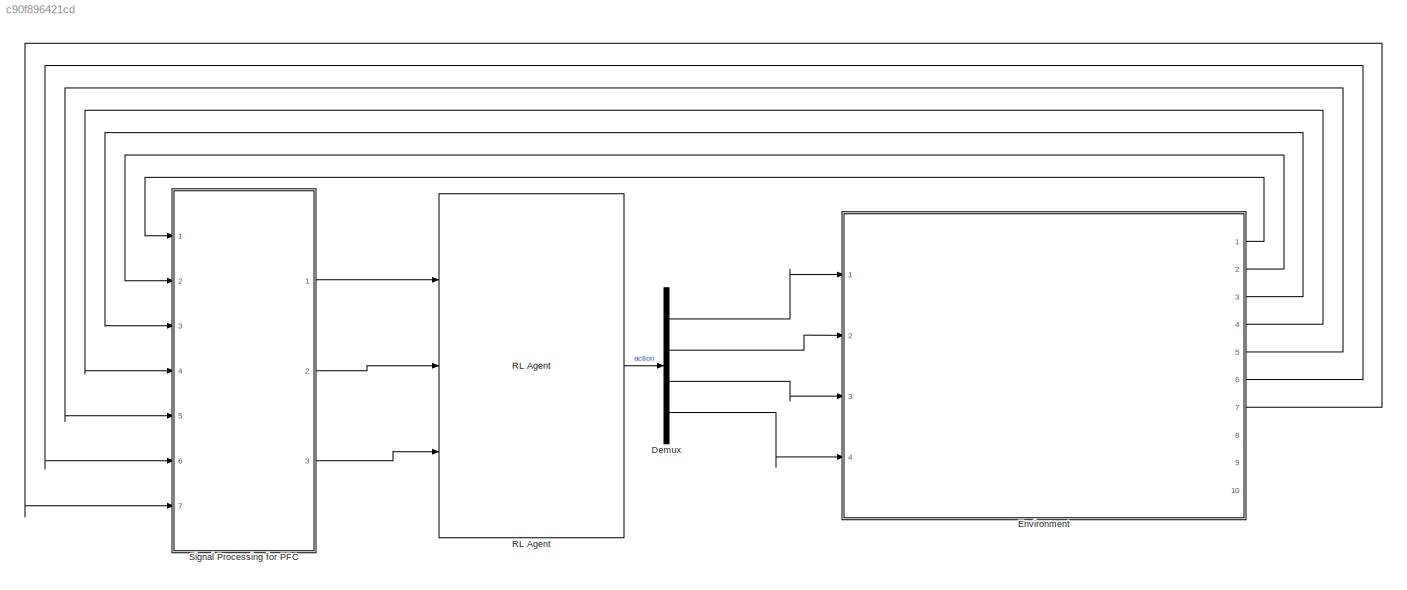
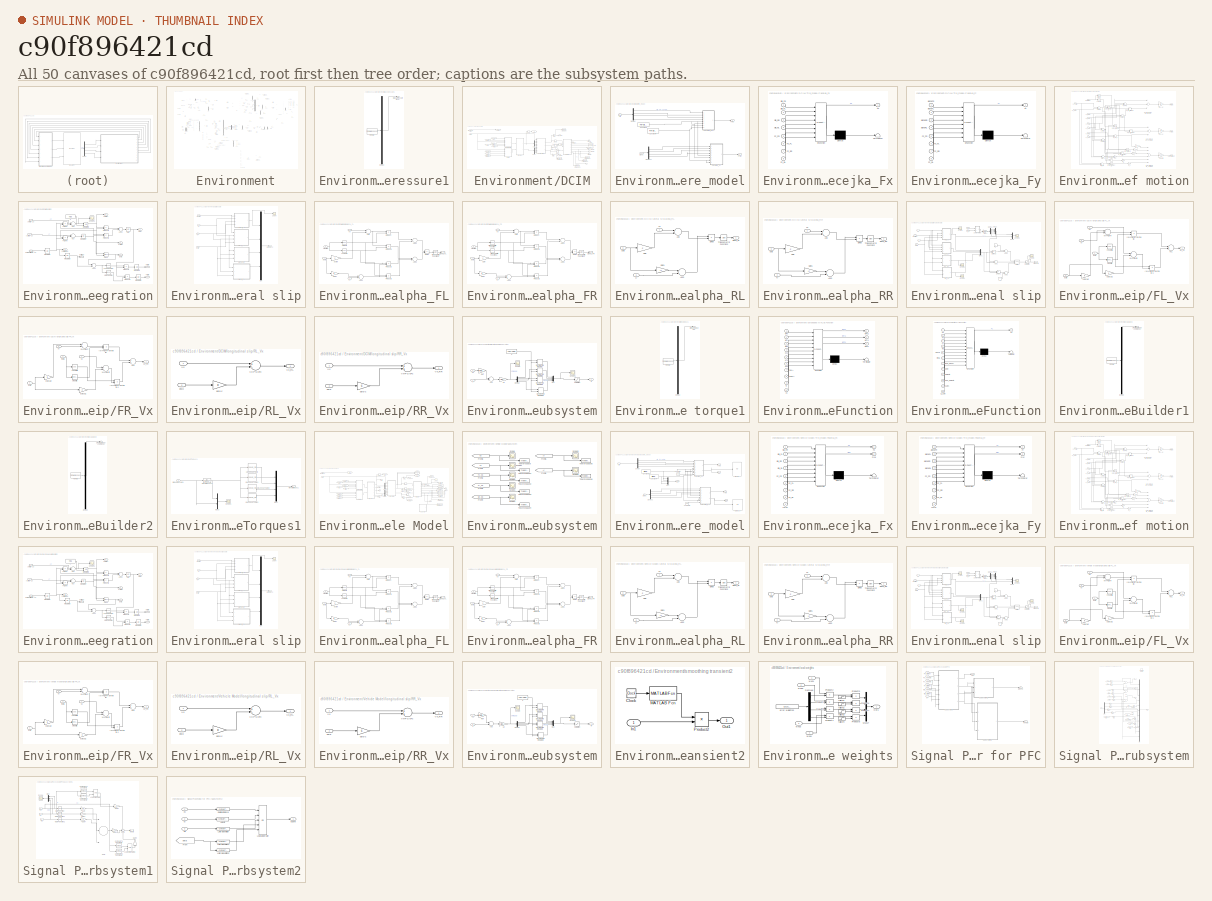
[diagram: thumbnail index - all 50 canvases of the model, root first then tree order]
MODEL slx_c90f896421cd
KIND model
CONFIG AbsTol = auto
CONFIG EnableMultiTasking = off
CONFIG FixedStep = 0.001
CONFIG InitFcn = Vehicle_parameters;\nhcc_init;\n
CONFIG MaxStep = auto
CONFIG MinStep = auto
CONFIG PreLoadFcn = Vehicle_parameters;\nhcc_init;\n
CONFIG RelTol = 1e-3
CONFIG SampleTimeConstraint = Unconstrained
CONFIG Solver = ode23t
CONFIG SolverName = ode23t
CONFIG StartTime = 0.0
CONFIG StopTime = Tf
BLOCK [Demux] Demux
  DisplayOption = bar
  Ports = [1, 4]
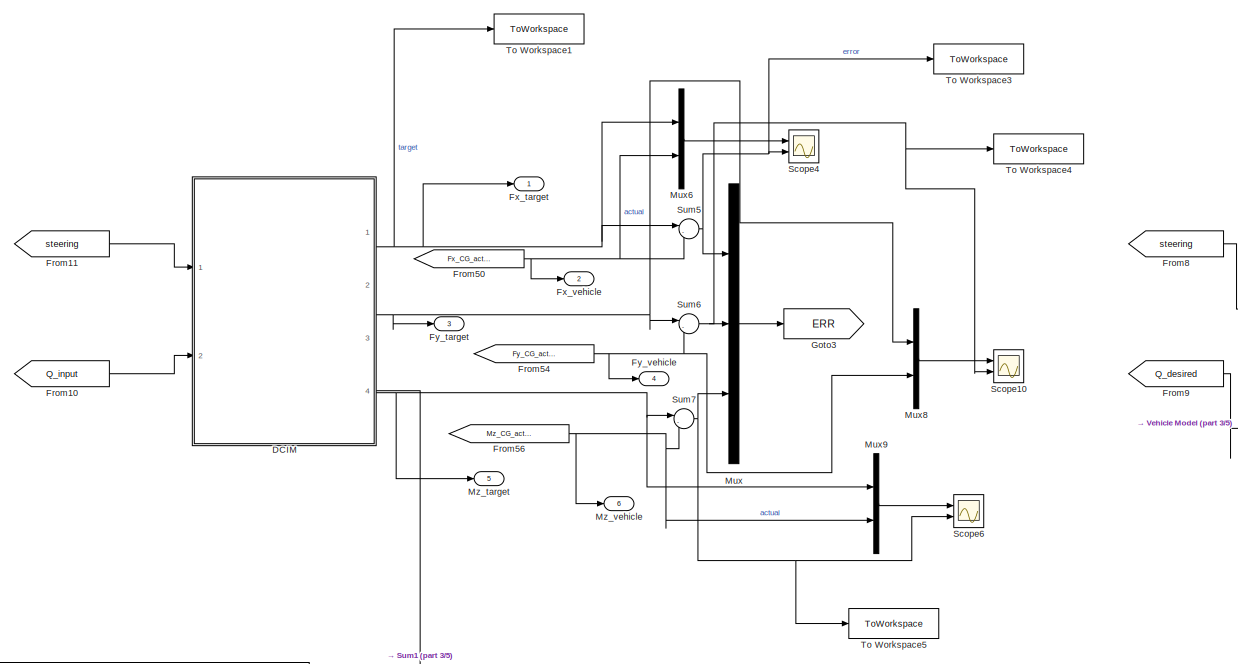
[diagram: Environment - part 1/5, top center region]
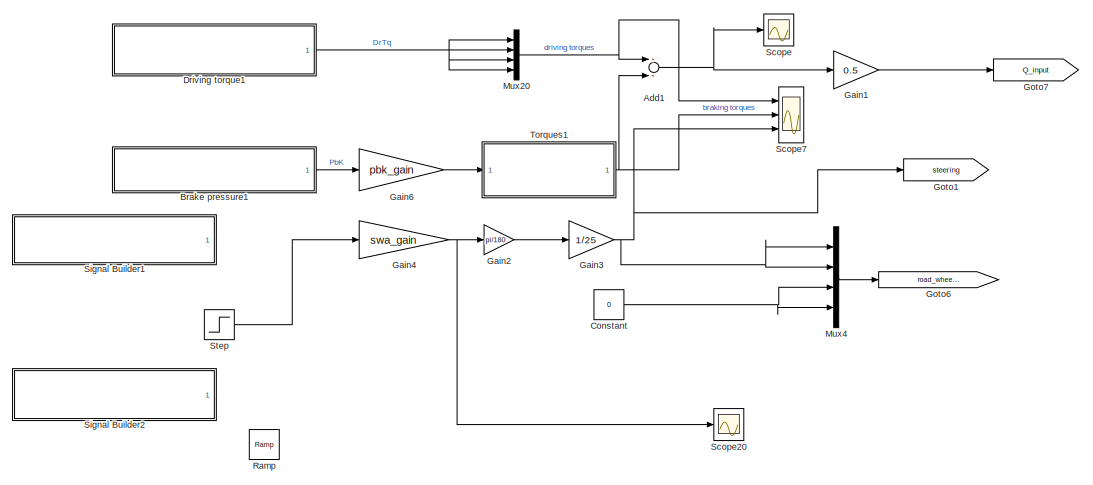
[diagram: Environment - part 2/5, top left region]
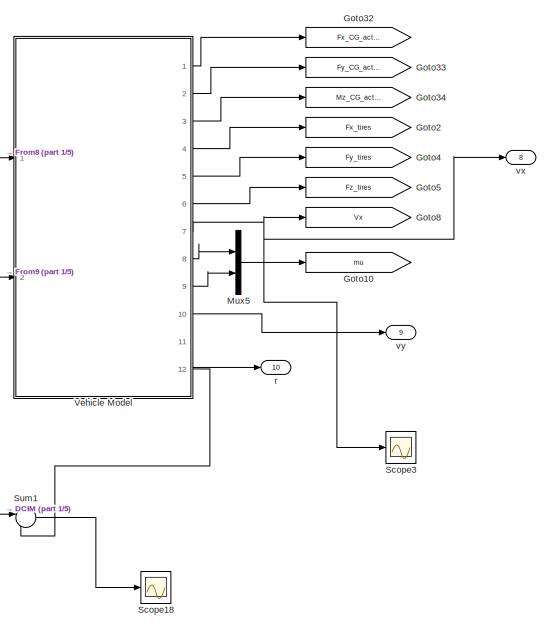
[diagram: Environment - part 3/5, top right region]
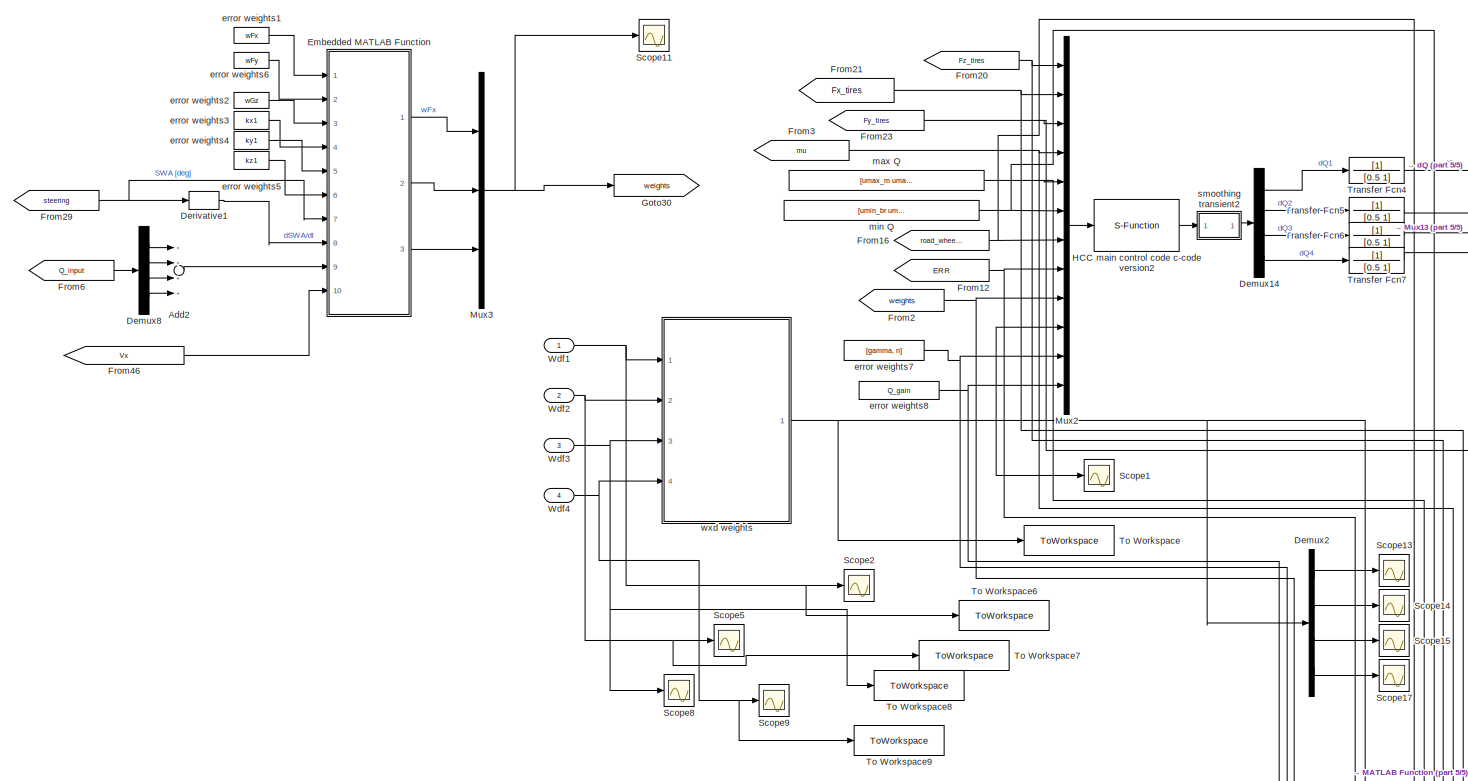
[diagram: Environment - part 4/5, middle left region]
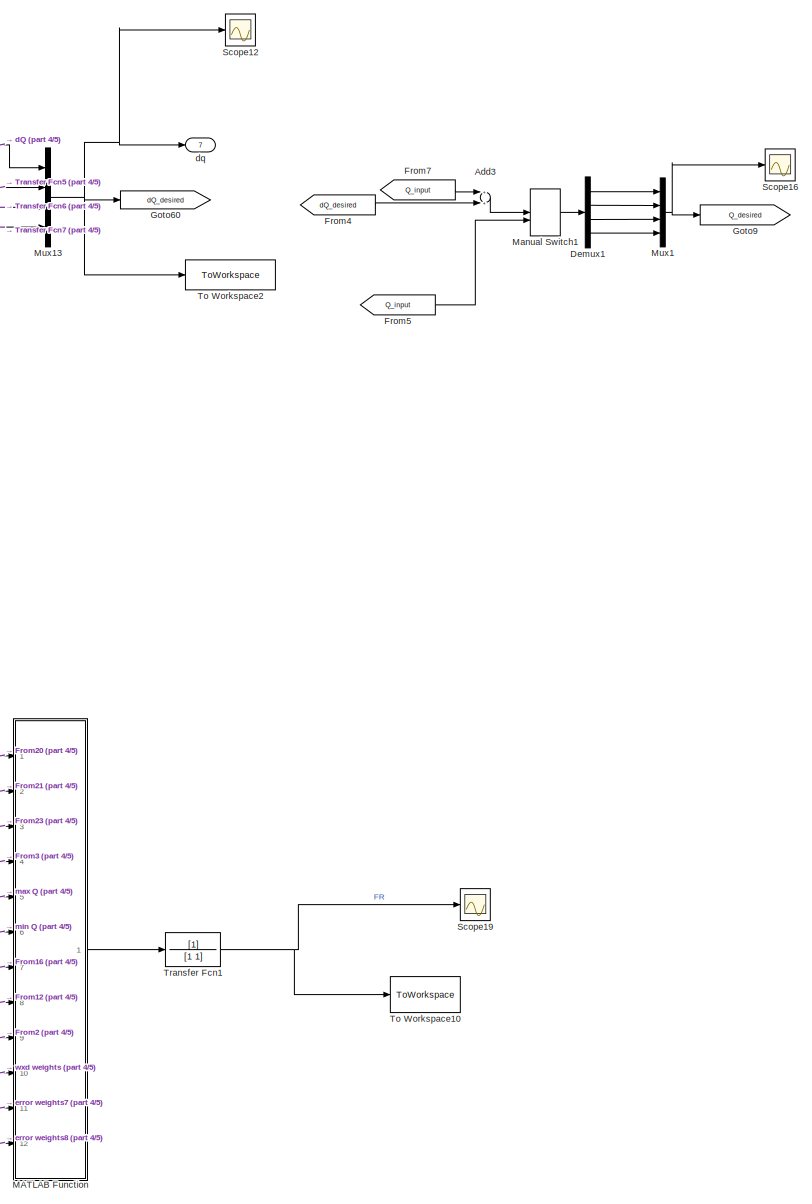
[diagram: Environment - part 5/5, bottom center region]
BLOCK [SubSystem] Environment
  Ports = [4, 10]
  RequestExecContextInheritance = off
BLOCK [Sum] Environment/Add1
  InputSameDT = off
  OutDataTypeStr = Inherit: Inherit via internal rule
  Ports = [2, 1]
  SaturateOnIntegerOverflow = off
BLOCK [Sum] Environment/Add2
  InputSameDT = off
  Inputs = ++++
  OutDataTypeStr = Inherit: Inherit via internal rule
  Ports = [4, 1]
  SaturateOnIntegerOverflow = off
BLOCK [Sum] Environment/Add3
  InputSameDT = off
  OutDataTypeStr = Inherit: Inherit via internal rule
  Ports = [2, 1]
  SaturateOnIntegerOverflow = off
BLOCK [SubSystem] Environment/Brake pressure1
  ClipboardFcn = sigbuilder_block('clipboard');
  CloseFcn = sigbuilder_block('close');
  ContinueFcn = sigbuilder_block('continue')
  CopyFcn = sigbuilder_block('copy');
  DeleteFcn = sigbuilder_block('delete');
  LoadFcn = sigbuilder_block('load');
  MaskHideContents = on
  ModelCloseFcn = sigbuilder_block('modelClose');
  NameChangeFcn = sigbuilder_block('namechange');
  OpenFcn = sigbuilder_block('open',[0 0 1131 540.75 ]);
  PauseFcn = sigbuilder_block('pause')
  Ports = [0, 1]
  PreSaveFcn = sigbuilder_block('preSave');
  RequestExecContextInheritance = off
  StartFcn = sigbuilder_block('start');
  StopFcn = sigbuilder_block('stop');
  Tag = STV Subsys
BLOCK [Outport] Environment/Brake pressure1/Brake Pressure [mPa]
  IconDisplay = Port number
  Tag = STV Outport
  VectorParamsAs1DForOutWhenUnconnected = off
BLOCK [Demux] Environment/Brake pressure1/Demux
  Outputs = 1
  Ports = [1, 1]
  Tag = STV Demux
BLOCK [FromWorkspace] Environment/Brake pressure1/FromWs
  SampleTime = 0
  Tag = STV FromWs
  VariableName = tuvar
  ZeroCross = on
BLOCK [Constant] Environment/Constant
  Value = 0
BLOCK [SubSystem] Environment/DCIM
  Ports = [2, 4]
  RequestExecContextInheritance = off
BLOCK [Demux] Environment/DCIM/Demux
  DisplayOption = bar
  Ports = [1, 4]
BLOCK [Demux] Environment/DCIM/Demux1
  DisplayOption = bar
  Ports = [1, 4]
BLOCK [Inport] Environment/DCIM/Driving//Braking Torque
  IconDisplay = Port number
  Port = 2
BLOCK [From] Environment/DCIM/From1
  GotoTag = torque
BLOCK [From] Environment/DCIM/From10
  GotoTag = yawRate_vehicle
BLOCK [From] Environment/DCIM/From11
  GotoTag = yawRate_vehicle
BLOCK [From] Environment/DCIM/From12
  GotoTag = vx_vehicle
BLOCK [From] Environment/DCIM/From13
  GotoTag = vx_vehicle
BLOCK [From] Environment/DCIM/From2
  GotoTag = Fx
BLOCK [From] Environment/DCIM/From8
  GotoTag = vy_vehicle
BLOCK [From] Environment/DCIM/From9
  GotoTag = vy_vehicle
BLOCK [Outport] Environment/DCIM/Fx_CG_target
  IconDisplay = Port number
  VectorParamsAs1DForOutWhenUnconnected = off
BLOCK [Outport] Environment/DCIM/Fy_CG_target 
  IconDisplay = Port number
  Port = 2
  VectorParamsAs1DForOutWhenUnconnected = off
BLOCK [Gain] Environment/DCIM/Gain1
  Gain = M
  OutDataTypeStr = Inherit: Inherit via internal rule
  ParamDataTypeStr = Inherit: Inherit via internal rule
  SaturateOnIntegerOverflow = off
BLOCK [Gain] Environment/DCIM/Gain2
  Gain = M
  OutDataTypeStr = Inherit: Inherit via internal rule
  ParamDataTypeStr = Inherit: Inherit via internal rule
  SaturateOnIntegerOverflow = off
BLOCK [Gain] Environment/DCIM/Gain4
  Gain = Jzz
  OutDataTypeStr = Inherit: Inherit via internal rule
  ParamDataTypeStr = Inherit: Inherit via internal rule
  SaturateOnIntegerOverflow = off
BLOCK [Goto] Environment/DCIM/Goto1
  GotoTag = torque
BLOCK [Goto] Environment/DCIM/Goto11
  GotoTag = vx_vehicle
BLOCK [Goto] Environment/DCIM/Goto3
  GotoTag = Fx
BLOCK [Goto] Environment/DCIM/Goto6
  GotoTag = yawRate_vehicle
BLOCK [Goto] Environment/DCIM/Goto7
  GotoTag = vy_vehicle
BLOCK [Memory] Environment/DCIM/Memory3
BLOCK [Memory] Environment/DCIM/Memory4
BLOCK [Memory] Environment/DCIM/Memory5
BLOCK [Memory] Environment/DCIM/Memory6
BLOCK [Outport] Environment/DCIM/Mz_CG_target 
  IconDisplay = Port number
  Port = 3
  VectorParamsAs1DForOutWhenUnconnected = off
BLOCK [Inport] Environment/DCIM/Steering
  IconDisplay = Port number
BLOCK [Terminator] Environment/DCIM/Terminator
BLOCK [Terminator] Environment/DCIM/Terminator1
BLOCK [Terminator] Environment/DCIM/Terminator2
BLOCK [Terminator] Environment/DCIM/Terminator3
BLOCK [Terminator] Environment/DCIM/Terminator4
BLOCK [SubSystem] Environment/DCIM/Tire_model
  Ports = [2, 2]
  RequestExecContextInheritance = off
  TreatAsAtomicUnit = on
BLOCK [Constant] Environment/DCIM/Tire_model/Constant1
  Value = lr*(M*g)/(2*(lr+lf))
BLOCK [Constant] Environment/DCIM/Tire_model/Constant4
  Value = lf*(M*g)/(2*(lr+lf))
BLOCK [Demux] Environment/DCIM/Tire_model/Demux
  DisplayOption = bar
  Ports = [1, 4]
BLOCK [Demux] Environment/DCIM/Tire_model/Demux1
  DisplayOption = bar
  Ports = [1, 4]
BLOCK [Outport] Environment/DCIM/Tire_model/Fx [N]
  IconDisplay = Port number
  VectorParamsAs1DForOutWhenUnconnected = off
BLOCK [Outport] Environment/DCIM/Tire_model/Fy [N]
  IconDisplay = Port number
  Port = 2
  VectorParamsAs1DForOutWhenUnconnected = off
BLOCK [SubSystem] Environment/DCIM/Tire_model/Pacejka_Fx
  ErrorFcn = Stateflow.Translate.translate
  PermitHierarchicalResolution = ExplicitOnly
  Ports = [8, 1]
  RequestExecContextInheritance = off
  SFBlockType = MATLAB Function
  TreatAsAtomicUnit = on
BLOCK [Demux] Environment/DCIM/Tire_model/Pacejka_Fx/ Demux 
  Outputs = 1
  Ports = [1, 1]
BLOCK [S-Function] Environment/DCIM/Tire_model/Pacejka_Fx/ SFunction 
  EnableBusSupport = on
  FunctionName = sf_sfun
  PortCounts = [8 2]
  Ports = [8, 2]
  SFcnIsStateOwnerBlock = off
  SFunctionDeploymentMode = off
  Tag = Stateflow S-Function 2
BLOCK [Terminator] Environment/DCIM/Tire_model/Pacejka_Fx/ Terminator 
BLOCK [Outport] Environment/DCIM/Tire_model/Pacejka_Fx/Fx
  IconDisplay = Port number
  VectorParamsAs1DForOutWhenUnconnected = off
BLOCK [Inport] Environment/DCIM/Tire_model/Pacejka_Fx/Fz_FL
  IconDisplay = Port number
  Port = 6
BLOCK [Inport] Environment/DCIM/Tire_model/Pacejka_Fx/Fz_FR
  IconDisplay = Port number
  Port = 5
BLOCK [Inport] Environment/DCIM/Tire_model/Pacejka_Fx/Fz_RL
  IconDisplay = Port number
  Port = 8
BLOCK [Inport] Environment/DCIM/Tire_model/Pacejka_Fx/Fz_RR
  IconDisplay = Port number
  Port = 7
BLOCK [Inport] Environment/DCIM/Tire_model/Pacejka_Fx/slip_FL
  IconDisplay = Port number
  Port = 2
BLOCK [Inport] Environment/DCIM/Tire_model/Pacejka_Fx/slip_FR
  IconDisplay = Port number
BLOCK [Inport] Environment/DCIM/Tire_model/Pacejka_Fx/slip_RL
  IconDisplay = Port number
  Port = 4
BLOCK [Inport] Environment/DCIM/Tire_model/Pacejka_Fx/slip_RR
  IconDisplay = Port number
  Port = 3
BLOCK [SubSystem] Environment/DCIM/Tire_model/Pacejka_Fy
  ErrorFcn = Stateflow.Translate.translate
  PermitHierarchicalResolution = ExplicitOnly
  Ports = [8, 1]
  RequestExecContextInheritance = off
  SFBlockType = MATLAB Function
  TreatAsAtomicUnit = on
BLOCK [Demux] Environment/DCIM/Tire_model/Pacejka_Fy/ Demux 
  Outputs = 1
  Ports = [1, 1]
BLOCK [S-Function] Environment/DCIM/Tire_model/Pacejka_Fy/ SFunction 
  EnableBusSupport = on
  FunctionName = sf_sfun
  PortCounts = [8 2]
  Ports = [8, 2]
  SFcnIsStateOwnerBlock = off
  SFunctionDeploymentMode = off
  Tag = Stateflow S-Function 5
BLOCK [Terminator] Environment/DCIM/Tire_model/Pacejka_Fy/ Terminator 
BLOCK [Outport] Environment/DCIM/Tire_model/Pacejka_Fy/Fy
  IconDisplay = Port number
  VectorParamsAs1DForOutWhenUnconnected = off
BLOCK [Inport] Environment/DCIM/Tire_model/Pacejka_Fy/Fz_FL
  IconDisplay = Port number
  Port = 6
BLOCK [Inport] Environment/DCIM/Tire_model/Pacejka_Fy/Fz_FR
  IconDisplay = Port number
  Port = 5
BLOCK [Inport] Environment/DCIM/Tire_model/Pacejka_Fy/Fz_RL
  IconDisplay = Port number
  Port = 8
BLOCK [Inport] Environment/DCIM/Tire_model/Pacejka_Fy/Fz_RR
  IconDisplay = Port number
  Port = 7
BLOCK [Inport] Environment/DCIM/Tire_model/Pacejka_Fy/alphaFL
  IconDisplay = Port number
  Port = 2
BLOCK [Inport] Environment/DCIM/Tire_model/Pacejka_Fy/alphaFR
  IconDisplay = Port number
BLOCK [Inport] Environment/DCIM/Tire_model/Pacejka_Fy/alphaRL
  IconDisplay = Port number
  Port = 4
BLOCK [Inport] Environment/DCIM/Tire_model/Pacejka_Fy/alphaRR
  IconDisplay = Port number
  Port = 3
BLOCK [Inport] Environment/DCIM/Tire_model/alpha
  IconDisplay = Port number
  Port = 2
BLOCK [Inport] Environment/DCIM/Tire_model/slip 
  IconDisplay = Port number
BLOCK [ToWorkspace] Environment/DCIM/To Workspace
  FixptAsFi = on
  MaxDataPoints = inf
  Ports = [1]
  SampleTime = -1
  SaveFormat = Structure With Time
  VariableName = Fx_CG_target
BLOCK [ToWorkspace] Environment/DCIM/To Workspace1
  FixptAsFi = on
  MaxDataPoints = inf
  Ports = [1]
  SampleTime = -1
  SaveFormat = Structure With Time
  VariableName = Fy_CG_target
BLOCK [ToWorkspace] Environment/DCIM/To Workspace2
  FixptAsFi = on
  MaxDataPoints = inf
  Ports = [1]
  SampleTime = -1
  SaveFormat = Structure With Time
  VariableName = Mz_CG_target
BLOCK [ToWorkspace] Environment/DCIM/To Workspace3
  FixptAsFi = on
  MaxDataPoints = inf
  Ports = [1]
  SampleTime = -1
  SaveFormat = Structure With Time
  VariableName = XG_target
BLOCK [ToWorkspace] Environment/DCIM/To Workspace4
  FixptAsFi = on
  MaxDataPoints = inf
  Ports = [1]
  SampleTime = -1
  SaveFormat = Structure With Time
  VariableName = YG_target
BLOCK [ToWorkspace] Environment/DCIM/To Workspace5
  FixptAsFi = on
  MaxDataPoints = inf
  Ports = [1]
  SampleTime = -1
  SaveFormat = Structure With Time
  VariableName = yaw_ref
BLOCK [SubSystem] Environment/DCIM/equation of motion
  Ports = [9, 3]
  RequestExecContextInheritance = off
  TreatAsAtomicUnit = on
BLOCK [Product] Environment/DCIM/equation of motion/(fx_fr+fx_fl)cos(theta)
  InputSameDT = off
  OutDataTypeStr = Inherit: Inherit via internal rule
  Ports = [2, 1]
  RndMeth = Floor
  SaturateOnIntegerOverflow = off
BLOCK [Sum] Environment/DCIM/equation of motion/(fx_fr+fx_fl)cos(theta)+ (fx_rr+fx_rl)- (fy_fr+fy_fl)sin(theta)
  InputSameDT = off
  Inputs = ++-
  OutDataTypeStr = Inherit: Inherit via internal rule
  Ports = [3, 1]
  SaturateOnIntegerOverflow = off
BLOCK [Product] Environment/DCIM/equation of motion/(fx_fr+fx_fl)cos(theta)2
  InputSameDT = off
  OutDataTypeStr = Inherit: Inherit via internal rule
  Ports = [2, 1]
  RndMeth = Floor
  SaturateOnIntegerOverflow = off
BLOCK [Product] Environment/DCIM/equation of motion/(fx_fr+fx_fl)sin(theta)
  InputSameDT = off
  OutDataTypeStr = Inherit: Inherit via internal rule
  Ports = [2, 1]
  RndMeth = Floor
  SaturateOnIntegerOverflow = off
BLOCK [Sum] Environment/DCIM/equation of motion/(fx_fr+fx_fl)sin(theta)+ (fy_rr+fy_rl)+ (fy_fr+fy_fl)cos(theta)
  InputSameDT = off
  Inputs = +++
  OutDataTypeStr = Inherit: Inherit via internal rule
  Ports = [3, 1]
  SaturateOnIntegerOverflow = off
BLOCK [Sum] Environment/DCIM/equation of motion/(fx_fr+fx_fl)sin(theta)+ (fy_rr+fy_rl)+ (fy_fr+fy_fl)cos(theta)1
  InputSameDT = off
  Inputs = -+++++
  OutDataTypeStr = Inherit: Inherit via internal rule
  Ports = [6, 1]
  SaturateOnIntegerOverflow = off
BLOCK [Product] Environment/DCIM/equation of motion/(fx_fr+fx_fl)sin(theta)1
  InputSameDT = off
  OutDataTypeStr = Inherit: Inherit via internal rule
  Ports = [2, 1]
  RndMeth = Floor
  SaturateOnIntegerOverflow = off
BLOCK [Sum] Environment/DCIM/equation of motion/(fx_fr-fx_fl)1
  InputSameDT = off
  Inputs = +-
  OutDataTypeStr = Inherit: Inherit via internal rule
  Ports = [2, 1]
  SaturateOnIntegerOverflow = off
BLOCK [Sum] Environment/DCIM/equation of motion/(fx_rr+fx_rl)
  InputSameDT = off
  OutDataTypeStr = Inherit: Inherit via internal rule
  Ports = [2, 1]
  SaturateOnIntegerOverflow = off
BLOCK [Sum] Environment/DCIM/equation of motion/(fx_rr-fx_rl)
  InputSameDT = off
  Inputs = +-
  OutDataTypeStr = Inherit: Inherit via internal rule
  Ports = [2, 1]
  SaturateOnIntegerOverflow = off
BLOCK [Product] Environment/DCIM/equation of motion/(fy_fr+fy_fl)cos(theta)
  InputSameDT = off
  OutDataTypeStr = Inherit: Inherit via internal rule
  Ports = [2, 1]
  RndMeth = Floor
  SaturateOnIntegerOverflow = off
BLOCK [Product] Environment/DCIM/equation of motion/(fy_fr+fy_fl)cos(theta)1
  InputSameDT = off
  OutDataTypeStr = Inherit: Inherit via internal rule
  Ports = [2, 1]
  RndMeth = Floor
  SaturateOnIntegerOverflow = off
BLOCK [Product] Environment/DCIM/equation of motion/(fy_fr+fy_fl)sin(theta)
  InputSameDT = off
  OutDataTypeStr = Inherit: Inherit via internal rule
  Ports = [2, 1]
  RndMeth = Floor
  SaturateOnIntegerOverflow = off
BLOCK [Product] Environment/DCIM/equation of motion/(fy_fr-fy_fl)sin(theta)
  InputSameDT = off
  OutDataTypeStr = Inherit: Inherit via internal rule
  Ports = [2, 1]
  RndMeth = Floor
  SaturateOnIntegerOverflow = off
BLOCK [Sum] Environment/DCIM/equation of motion/(fy_rr+fy_rl)
  InputSameDT = off
  OutDataTypeStr = Inherit: Inherit via internal rule
  Ports = [2, 1]
  SaturateOnIntegerOverflow = off
BLOCK [Outport] Environment/DCIM/equation of motion/Ax [m//s^2]
  IconDisplay = Port number
  VectorParamsAs1DForOutWhenUnconnected = off
BLOCK [Outport] Environment/DCIM/equation of motion/Ay [m//s^2]
  IconDisplay = Port number
  Port = 2
  VectorParamsAs1DForOutWhenUnconnected = off
BLOCK [Inport] Environment/DCIM/equation of motion/Fx_FL [N]
  IconDisplay = Port number
  Port = 3
BLOCK [Inport] Environment/DCIM/equation of motion/Fx_FR [N]
  IconDisplay = Port number
  Port = 2
BLOCK [Inport] Environment/DCIM/equation of motion/Fx_RL [N]
  IconDisplay = Port number
  Port = 5
BLOCK [Inport] Environment/DCIM/equation of motion/Fx_RR [N]
  IconDisplay = Port number
  Port = 4
BLOCK [Inport] Environment/DCIM/equation of motion/Fy_FL [N]
  IconDisplay = Port number
  Port = 7
BLOCK [Inport] Environment/DCIM/equation of motion/Fy_FR [N]
  IconDisplay = Port number
  Port = 6
BLOCK [Inport] Environment/DCIM/equation of motion/Fy_RL [N]
  IconDisplay = Port number
  Port = 9
BLOCK [Inport] Environment/DCIM/equation of motion/Fy_RR [N]
  IconDisplay = Port number
  Port = 8
BLOCK [Sum] Environment/DCIM/equation of motion/Subtract1
  InputSameDT = off
  OutDataTypeStr = Inherit: Inherit via internal rule
  Ports = [2, 1]
  SaturateOnIntegerOverflow = off
BLOCK [Sum] Environment/DCIM/equation of motion/Subtract2
  InputSameDT = off
  OutDataTypeStr = Inherit: Inherit via internal rule
  Ports = [2, 1]
  SaturateOnIntegerOverflow = off
BLOCK [Sum] Environment/DCIM/equation of motion/Subtract3
  InputSameDT = off
  Inputs = -+
  OutDataTypeStr = Inherit: Inherit via internal rule
  Ports = [2, 1]
  SaturateOnIntegerOverflow = off
BLOCK [Sum] Environment/DCIM/equation of motion/Subtract4
  InputSameDT = off
  OutDataTypeStr = Inherit: Inherit via internal rule
  Ports = [2, 1]
  SaturateOnIntegerOverflow = off
BLOCK [Gain] Environment/DCIM/equation of motion/c
  Gain = c
  OutDataTypeStr = Inherit: Inherit via internal rule
  ParamDataTypeStr = Inherit: Inherit via internal rule
  SaturateOnIntegerOverflow = off
BLOCK [Gain] Environment/DCIM/equation of motion/c1
  Gain = c
  OutDataTypeStr = Inherit: Inherit via internal rule
  ParamDataTypeStr = Inherit: Inherit via internal rule
  SaturateOnIntegerOverflow = off
BLOCK [Gain] Environment/DCIM/equation of motion/c_2 
  Gain = c
  OutDataTypeStr = Inherit: Inherit via internal rule
  ParamDataTypeStr = Inherit: Inherit via internal rule
  SaturateOnIntegerOverflow = off
BLOCK [Trigonometry] Environment/DCIM/equation of motion/cos(theta) 
  Operator = cos
  Ports = [1, 1]
BLOCK [Gain] Environment/DCIM/equation of motion/lf
  Gain = lf
  OutDataTypeStr = Inherit: Inherit via internal rule
  ParamDataTypeStr = Inherit: Inherit via internal rule
  SaturateOnIntegerOverflow = off
BLOCK [Gain] Environment/DCIM/equation of motion/lf_2
  Gain = lf
  OutDataTypeStr = Inherit: Inherit via internal rule
  ParamDataTypeStr = Inherit: Inherit via internal rule
  SaturateOnIntegerOverflow = off
BLOCK [Gain] Environment/DCIM/equation of motion/lr
  Gain = lr
  OutDataTypeStr = Inherit: Inherit via internal rule
  ParamDataTypeStr = Inherit: Inherit via internal rule
  SaturateOnIntegerOverflow = off
BLOCK [Gain] Environment/DCIM/equation of motion/mass_ax
  Gain = 1/M
  OutDataTypeStr = Inherit: Inherit via internal rule
  ParamDataTypeStr = Inherit: Inherit via internal rule
  SaturateOnIntegerOverflow = off
BLOCK [Gain] Environment/DCIM/equation of motion/mass_ay
  Gain = 1/M
  OutDataTypeStr = Inherit: Inherit via internal rule
  ParamDataTypeStr = Inherit: Inherit via internal rule
  SaturateOnIntegerOverflow = off
BLOCK [Gain] Environment/DCIM/equation of motion/mom.inertia
  Gain = 1/Jzz
  OutDataTypeStr = Inherit: Inherit via internal rule
  ParamDataTypeStr = Inherit: Inherit via internal rule
  SaturateOnIntegerOverflow = off
BLOCK [Outport] Environment/DCIM/equation of motion/psiddot [rad//s^2]
  IconDisplay = Port number
  Port = 3
  VectorParamsAs1DForOutWhenUnconnected = off
BLOCK [Trigonometry] Environment/DCIM/equation of motion/sin(theta) 
  Ports = [1, 1]
BLOCK [Inport] Environment/DCIM/equation of motion/steering [rad]
  IconDisplay = Port number
BLOCK [SubSystem] Environment/DCIM/integration
  Ports = [3, 8]
  RequestExecContextInheritance = off
  TreatAsAtomicUnit = on
BLOCK [Constant] Environment/DCIM/integration/2
  Value = v/3.6
BLOCK [Sum] Environment/DCIM/integration/Add2
  InputSameDT = off
  OutDataTypeStr = Inherit: Inherit via internal rule
  Ports = [2, 1]
  SaturateOnIntegerOverflow = off
BLOCK [Sum] Environment/DCIM/integration/Add4
  InputSameDT = off
  OutDataTypeStr = Inherit: Inherit via internal rule
  Ports = [2, 1]
  SaturateOnIntegerOverflow = off
BLOCK [Inport] Environment/DCIM/integration/Ax [m//s^2]
  IconDisplay = Port number
BLOCK [Inport] Environment/DCIM/integration/Ay [m//s^2]
  IconDisplay = Port number
  Port = 2
BLOCK [Integrator] Environment/DCIM/integration/Integrator1
  Ports = [1, 1]
BLOCK [Integrator] Environment/DCIM/integration/Integrator2
  InitialCondition = v/3.6
  InitialConditionSource = external
  Ports = [2, 1]
BLOCK [Integrator] Environment/DCIM/integration/Integrator3
  Ports = [1, 1]
BLOCK [Integrator] Environment/DCIM/integration/Integrator4
  Ports = [1, 1]
BLOCK [Integrator] Environment/DCIM/integration/Integrator5
  Ports = [1, 1]
BLOCK [Integrator] Environment/DCIM/integration/Integrator7
  Ports = [1, 1]
BLOCK [Outport] Environment/DCIM/integration/PSId [rad//s]
  IconDisplay = Port number
  Port = 5
  VectorParamsAs1DForOutWhenUnconnected = off
BLOCK [Inport] Environment/DCIM/integration/PSIddot [rad//s^2]
  IconDisplay = Port number
  Port = 3
BLOCK [Product] Environment/DCIM/integration/PSIp*Vx
  InputSameDT = off
  OutDataTypeStr = Inherit: Inherit via internal rule
  Ports = [2, 1]
  SaturateOnIntegerOverflow = off
BLOCK [Product] Environment/DCIM/integration/PSIp*Vy
  InputSameDT = off
  OutDataTypeStr = Inherit: Inherit via internal rule
  Ports = [2, 1]
  SaturateOnIntegerOverflow = off
BLOCK [Product] Environment/DCIM/integration/Product1
  InputSameDT = off
  OutDataTypeStr = Inherit: Inherit via internal rule
  Ports = [2, 1]
  SaturateOnIntegerOverflow = off
BLOCK [Product] Environment/DCIM/integration/Product2
  InputSameDT = off
  OutDataTypeStr = Inherit: Inherit via internal rule
  Ports = [2, 1]
  SaturateOnIntegerOverflow = off
BLOCK [Product] Environment/DCIM/integration/Product3
  InputSameDT = off
  OutDataTypeStr = Inherit: Inherit via internal rule
  Ports = [2, 1]
  SaturateOnIntegerOverflow = off
BLOCK [Product] Environment/DCIM/integration/Product6
  InputSameDT = off
  OutDataTypeStr = Inherit: Inherit via internal rule
  Ports = [2, 1]
  SaturateOnIntegerOverflow = off
BLOCK [Scope] Environment/DCIM/integration/Scope1
  Floating = off
  NumInputPorts = 1
  Ports = [1]
  ScopeSpecificationString = Simulink.scopes.TimeScopeBlockCfg('CurrentConfiguration', extmgr.ConfigurationSet(extmgr.Configuration('Core','General UI',true),extmgr.Configuration('Core','Source UI',true),extmgr.Configuration('Sources','WiredSimulink',true,'DataLoggingVariableName','ScopeData12'),extmgr.Configuration('Visuals','Time Domain',true,'SerializedDisplays',{struct('MinYLimReal','-5.19451','MaxYLimReal','10.95168','YL...<+1437ch>
BLOCK [Sqrt] Environment/DCIM/integration/Sqrt
BLOCK [Outport] Environment/DCIM/integration/V [m//s]
  IconDisplay = Port number
  Port = 2
  VectorParamsAs1DForOutWhenUnconnected = off
BLOCK [Sum] Environment/DCIM/integration/Vpx
  InputSameDT = off
  OutDataTypeStr = Inherit: Inherit via internal rule
  Ports = [2, 1]
  SaturateOnIntegerOverflow = off
BLOCK [Sum] Environment/DCIM/integration/Vpy
  InputSameDT = off
  Inputs = +-
  OutDataTypeStr = Inherit: Inherit via internal rule
  Ports = [2, 1]
  SaturateOnIntegerOverflow = off
BLOCK [Outport] Environment/DCIM/integration/Vx [m//s]
  IconDisplay = Port number
  Port = 3
  VectorParamsAs1DForOutWhenUnconnected = off
BLOCK [Outport] Environment/DCIM/integration/Vy [m//s]
  IconDisplay = Port number
  Port = 4
  VectorParamsAs1DForOutWhenUnconnected = off
BLOCK [Outport] Environment/DCIM/integration/XG [m]
  IconDisplay = Port number
  Port = 6
  VectorParamsAs1DForOutWhenUnconnected = off
BLOCK [Outport] Environment/DCIM/integration/YG [m]
  IconDisplay = Port number
  Port = 7
  VectorParamsAs1DForOutWhenUnconnected = off
BLOCK [Outport] Environment/DCIM/integration/beta
  IconDisplay = Port number
  VectorParamsAs1DForOutWhenUnconnected = off
BLOCK [Trigonometry] Environment/DCIM/integration/cos(PSI+beta)
  Operator = cos
  Ports = [1, 1]
BLOCK [Trigonometry] Environment/DCIM/integration/cos1
  Operator = atan2
  Ports = [2, 1]
BLOCK [Outport] Environment/DCIM/integration/psi [rad]
  IconDisplay = Port number
  Port = 8
  VectorParamsAs1DForOutWhenUnconnected = off
BLOCK [Trigonometry] Environment/DCIM/integration/sin(PSI+beta)
  Ports = [1, 1]
BLOCK [SubSystem] Environment/DCIM/lateral slip
  Ports = [4, 1]
  RequestExecContextInheritance = off
  TreatAsAtomicUnit = on
BLOCK [Mux] Environment/DCIM/lateral slip/Mux
  DisplayOption = bar
  Ports = [4, 1]
BLOCK [Scope] Environment/DCIM/lateral slip/Scope
  Floating = off
  NumInputPorts = 1
  Ports = [1]
  ScopeSpecificationString = Simulink.scopes.TimeScopeBlockCfg('CurrentConfiguration', extmgr.ConfigurationSet(extmgr.Configuration('Core','General UI',true),extmgr.Configuration('Core','Source UI',true),extmgr.Configuration('Sources','WiredSimulink',true,'DataLoggingVariableName','ScopeData3','DataLoggingLimitDataPoints',true,'DataLoggingSaveFormat','Array','DataLoggingDecimation','1','DataLoggingDecimateData',true),extmgr.C...<+1543ch>
BLOCK [Outport] Environment/DCIM/lateral slip/alpha[4x1]
  IconDisplay = Port number
  VectorParamsAs1DForOutWhenUnconnected = off
BLOCK [SubSystem] Environment/DCIM/lateral slip/alpha_FL
  Ports = [4, 1]
  RequestExecContextInheritance = off
  TreatAsAtomicUnit = on
BLOCK [Sum] Environment/DCIM/lateral slip/alpha_FL/Add
  InputSameDT = off
  Inputs = +-
  OutDataTypeStr = Inherit: Inherit via internal rule
  Ports = [2, 1]
  SaturateOnIntegerOverflow = off
BLOCK [Sum] Environment/DCIM/lateral slip/alpha_FL/Add1
  InputSameDT = off
  Inputs = -+
  OutDataTypeStr = Inherit: Inherit via internal rule
  Ports = [2, 1]
  SaturateOnIntegerOverflow = off
BLOCK [Sum] Environment/DCIM/lateral slip/alpha_FL/Add2
  InputSameDT = off
  OutDataTypeStr = Inherit: Inherit via internal rule
  Ports = [2, 1]
  SaturateOnIntegerOverflow = off
BLOCK [Sum] Environment/DCIM/lateral slip/alpha_FL/Add3
  InputSameDT = off
  OutDataTypeStr = Inherit: Inherit via internal rule
  Ports = [2, 1]
  SaturateOnIntegerOverflow = off
BLOCK [Product] Environment/DCIM/lateral slip/alpha_FL/Divide
  InputSameDT = off
  Inputs = */
  OutDataTypeStr = Inherit: Inherit via internal rule
  Ports = [2, 1]
  RndMeth = Floor
  SaturateOnIntegerOverflow = off
BLOCK [Gain] Environment/DCIM/lateral slip/alpha_FL/Gain1
  Gain = lf
  OutDataTypeStr = Inherit: Inherit via internal rule
  ParamDataTypeStr = Inherit: Inherit via internal rule
  SaturateOnIntegerOverflow = off
BLOCK [Product] Environment/DCIM/lateral slip/alpha_FL/Product
  InputSameDT = off
  OutDataTypeStr = Inherit: Inherit via internal rule
  Ports = [2, 1]
  SaturateOnIntegerOverflow = off
BLOCK [Product] Environment/DCIM/lateral slip/alpha_FL/Product1
  InputSameDT = off
  OutDataTypeStr = Inherit: Inherit via internal rule
  Ports = [2, 1]
  SaturateOnIntegerOverflow = off
BLOCK [Product] Environment/DCIM/lateral slip/alpha_FL/Product2
  InputSameDT = off
  OutDataTypeStr = Inherit: Inherit via internal rule
  Ports = [2, 1]
  SaturateOnIntegerOverflow = off
BLOCK [Product] Environment/DCIM/lateral slip/alpha_FL/Product3
  InputSameDT = off
  OutDataTypeStr = Inherit: Inherit via internal rule
  Ports = [2, 1]
  SaturateOnIntegerOverflow = off
BLOCK [Trigonometry] Environment/DCIM/lateral slip/alpha_FL/Trigonometric Function2
  Operator = atan
  Ports = [1, 1]
BLOCK [Outport] Environment/DCIM/lateral slip/alpha_FL/alpha_FL
  IconDisplay = Port number
  VectorParamsAs1DForOutWhenUnconnected = off
BLOCK [Trigonometry] Environment/DCIM/lateral slip/alpha_FL/cos theta
  Operator = cos
  Ports = [1, 1]
BLOCK [Inport] Environment/DCIM/lateral slip/alpha_FL/psid
  IconDisplay = Port number
  Port = 4
BLOCK [Gain] Environment/DCIM/lateral slip/alpha_FL/psid*c
  Gain = c
  OutDataTypeStr = Inherit: Inherit via internal rule
  ParamDataTypeStr = Inherit: Inherit via internal rule
  SaturateOnIntegerOverflow = off
BLOCK [Trigonometry] Environment/DCIM/lateral slip/alpha_FL/sin theta
  Ports = [1, 1]
BLOCK [Inport] Environment/DCIM/lateral slip/alpha_FL/steering
  IconDisplay = Port number
BLOCK [Inport] Environment/DCIM/lateral slip/alpha_FL/vx
  IconDisplay = Port number
  Port = 2
BLOCK [Inport] Environment/DCIM/lateral slip/alpha_FL/vy
  IconDisplay = Port number
  Port = 3
BLOCK [SubSystem] Environment/DCIM/lateral slip/alpha_FR
  Ports = [4, 1]
  RequestExecContextInheritance = off
  TreatAsAtomicUnit = on
BLOCK [Sum] Environment/DCIM/lateral slip/alpha_FR/Add
  InputSameDT = off
  OutDataTypeStr = Inherit: Inherit via internal rule
  Ports = [2, 1]
  SaturateOnIntegerOverflow = off
BLOCK [Sum] Environment/DCIM/lateral slip/alpha_FR/Add1
  InputSameDT = off
  Inputs = -+
  OutDataTypeStr = Inherit: Inherit via internal rule
  Ports = [2, 1]
  SaturateOnIntegerOverflow = off
BLOCK [Sum] Environment/DCIM/lateral slip/alpha_FR/Add2
  InputSameDT = off
  OutDataTypeStr = Inherit: Inherit via internal rule
  Ports = [2, 1]
  SaturateOnIntegerOverflow = off
BLOCK [Sum] Environment/DCIM/lateral slip/alpha_FR/Add3
  InputSameDT = off
  OutDataTypeStr = Inherit: Inherit via internal rule
  Ports = [2, 1]
  SaturateOnIntegerOverflow = off
BLOCK [Product] Environment/DCIM/lateral slip/alpha_FR/Divide
  InputSameDT = off
  Inputs = */
  OutDataTypeStr = Inherit: Inherit via internal rule
  Ports = [2, 1]
  RndMeth = Floor
  SaturateOnIntegerOverflow = off
BLOCK [Gain] Environment/DCIM/lateral slip/alpha_FR/Gain
  Gain = c
  OutDataTypeStr = Inherit: Inherit via internal rule
  ParamDataTypeStr = Inherit: Inherit via internal rule
  SaturateOnIntegerOverflow = off
BLOCK [Gain] Environment/DCIM/lateral slip/alpha_FR/Gain1
  Gain = lf
  OutDataTypeStr = Inherit: Inherit via internal rule
  ParamDataTypeStr = Inherit: Inherit via internal rule
  SaturateOnIntegerOverflow = off
BLOCK [Product] Environment/DCIM/lateral slip/alpha_FR/Product
  InputSameDT = off
  OutDataTypeStr = Inherit: Inherit via internal rule
  Ports = [2, 1]
  SaturateOnIntegerOverflow = off
BLOCK [Product] Environment/DCIM/lateral slip/alpha_FR/Product1
  InputSameDT = off
  OutDataTypeStr = Inherit: Inherit via internal rule
  Ports = [2, 1]
  SaturateOnIntegerOverflow = off
BLOCK [Product] Environment/DCIM/lateral slip/alpha_FR/Product2
  InputSameDT = off
  OutDataTypeStr = Inherit: Inherit via internal rule
  Ports = [2, 1]
  SaturateOnIntegerOverflow = off
BLOCK [Product] Environment/DCIM/lateral slip/alpha_FR/Product3
  InputSameDT = off
  OutDataTypeStr = Inherit: Inherit via internal rule
  Ports = [2, 1]
  SaturateOnIntegerOverflow = off
BLOCK [Trigonometry] Environment/DCIM/lateral slip/alpha_FR/Trigonometric Function
  Ports = [1, 1]
BLOCK [Trigonometry] Environment/DCIM/lateral slip/alpha_FR/Trigonometric Function1
  Operator = cos
  Ports = [1, 1]
BLOCK [Trigonometry] Environment/DCIM/lateral slip/alpha_FR/Trigonometric Function2
  Operator = atan
  Ports = [1, 1]
BLOCK [Outport] Environment/DCIM/lateral slip/alpha_FR/alpha_FR
  IconDisplay = Port number
  VectorParamsAs1DForOutWhenUnconnected = off
BLOCK [Inport] Environment/DCIM/lateral slip/alpha_FR/psid
  IconDisplay = Port number
  Port = 4
BLOCK [Inport] Environment/DCIM/lateral slip/alpha_FR/steering
  IconDisplay = Port number
BLOCK [Inport] Environment/DCIM/lateral slip/alpha_FR/vx
  IconDisplay = Port number
  Port = 2
BLOCK [Inport] Environment/DCIM/lateral slip/alpha_FR/vy
  IconDisplay = Port number
  Port = 3
BLOCK [SubSystem] Environment/DCIM/lateral slip/alpha_RL
  Ports = [3, 1]
  RequestExecContextInheritance = off
  TreatAsAtomicUnit = on
BLOCK [Sum] Environment/DCIM/lateral slip/alpha_RL/Add
  InputSameDT = off
  Inputs = +-
  OutDataTypeStr = Inherit: Inherit via internal rule
  Ports = [2, 1]
  SaturateOnIntegerOverflow = off
BLOCK [Sum] Environment/DCIM/lateral slip/alpha_RL/Add3
  InputSameDT = off
  Inputs = -+
  OutDataTypeStr = Inherit: Inherit via internal rule
  Ports = [2, 1]
  SaturateOnIntegerOverflow = off
BLOCK [Product] Environment/DCIM/lateral slip/alpha_RL/Divide
  InputSameDT = off
  Inputs = */
  OutDataTypeStr = Inherit: Inherit via internal rule
  Ports = [2, 1]
  RndMeth = Floor
  SaturateOnIntegerOverflow = off
BLOCK [Gain] Environment/DCIM/lateral slip/alpha_RL/Gain
  Gain = c
  OutDataTypeStr = Inherit: Inherit via internal rule
  ParamDataTypeStr = Inherit: Inherit via internal rule
  SaturateOnIntegerOverflow = off
BLOCK [Gain] Environment/DCIM/lateral slip/alpha_RL/Gain1
  Gain = lr
  OutDataTypeStr = Inherit: Inherit via internal rule
  ParamDataTypeStr = Inherit: Inherit via internal rule
  SaturateOnIntegerOverflow = off
BLOCK [Trigonometry] Environment/DCIM/lateral slip/alpha_RL/Trigonometric Function2
  Operator = atan
  Ports = [1, 1]
BLOCK [Outport] Environment/DCIM/lateral slip/alpha_RL/alpha_RL
  IconDisplay = Port number
  VectorParamsAs1DForOutWhenUnconnected = off
BLOCK [Inport] Environment/DCIM/lateral slip/alpha_RL/psid
  IconDisplay = Port number
  Port = 3
BLOCK [Inport] Environment/DCIM/lateral slip/alpha_RL/vx
  IconDisplay = Port number
BLOCK [Inport] Environment/DCIM/lateral slip/alpha_RL/vy
  IconDisplay = Port number
  Port = 2
BLOCK [SubSystem] Environment/DCIM/lateral slip/alpha_RR
  Ports = [3, 1]
  RequestExecContextInheritance = off
  TreatAsAtomicUnit = on
BLOCK [Sum] Environment/DCIM/lateral slip/alpha_RR/Add
  InputSameDT = off
  OutDataTypeStr = Inherit: Inherit via internal rule
  Ports = [2, 1]
  SaturateOnIntegerOverflow = off
BLOCK [Sum] Environment/DCIM/lateral slip/alpha_RR/Add3
  InputSameDT = off
  Inputs = -+
  OutDataTypeStr = Inherit: Inherit via internal rule
  Ports = [2, 1]
  SaturateOnIntegerOverflow = off
BLOCK [Product] Environment/DCIM/lateral slip/alpha_RR/Divide
  InputSameDT = off
  Inputs = */
  OutDataTypeStr = Inherit: Inherit via internal rule
  Ports = [2, 1]
  RndMeth = Floor
  SaturateOnIntegerOverflow = off
BLOCK [Gain] Environment/DCIM/lateral slip/alpha_RR/Gain
  Gain = c
  OutDataTypeStr = Inherit: Inherit via internal rule
  ParamDataTypeStr = Inherit: Inherit via internal rule
  SaturateOnIntegerOverflow = off
BLOCK [Gain] Environment/DCIM/lateral slip/alpha_RR/Gain1
  Gain = lr
  OutDataTypeStr = Inherit: Inherit via internal rule
  ParamDataTypeStr = Inherit: Inherit via internal rule
  SaturateOnIntegerOverflow = off
BLOCK [Trigonometry] Environment/DCIM/lateral slip/alpha_RR/Trigonometric Function2
  Operator = atan
  Ports = [1, 1]
BLOCK [Outport] Environment/DCIM/lateral slip/alpha_RR/alpha_RR
  IconDisplay = Port number
  VectorParamsAs1DForOutWhenUnconnected = off
BLOCK [Inport] Environment/DCIM/lateral slip/alpha_RR/psid
  IconDisplay = Port number
  Port = 3
BLOCK [Inport] Environment/DCIM/lateral slip/alpha_RR/vx
  IconDisplay = Port number
BLOCK [Inport] Environment/DCIM/lateral slip/alpha_RR/vy
  IconDisplay = Port number
  Port = 2
BLOCK [Inport] Environment/DCIM/lateral slip/psid
  IconDisplay = Port number
  Port = 4
BLOCK [Inport] Environment/DCIM/lateral slip/steering
  IconDisplay = Port number
BLOCK [Inport] Environment/DCIM/lateral slip/vx
  IconDisplay = Port number
  Port = 2
BLOCK [Inport] Environment/DCIM/lateral slip/vy
  IconDisplay = Port number
  Port = 3
BLOCK [SubSystem] Environment/DCIM/longitudinal slip
  Ports = [6, 1]
  RequestExecContextInheritance = off
  TreatAsAtomicUnit = on
BLOCK [Constant] Environment/DCIM/longitudinal slip/1
BLOCK [Constant] Environment/DCIM/longitudinal slip/2
BLOCK [Sum] Environment/DCIM/longitudinal slip/Add1
  InputSameDT = off
  Inputs = +-
  OutDataTypeStr = Inherit: Inherit via internal rule
  Ports = [2, 1]
  SaturateOnIntegerOverflow = off
BLOCK [Sum] Environment/DCIM/longitudinal slip/Add2
  InputSameDT = off
  Inputs = -+
  OutDataTypeStr = Inherit: Inherit via internal rule
  Ports = [2, 1]
  SaturateOnIntegerOverflow = off
BLOCK [Sum] Environment/DCIM/longitudinal slip/Add3
  InputSameDT = off
  Inputs = -+
  OutDataTypeStr = Inherit: Inherit via internal rule
  Ports = [2, 1]
  SaturateOnIntegerOverflow = off
BLOCK [Demux] Environment/DCIM/longitudinal slip/Demux
  DisplayOption = bar
  Ports = [1, 4]
BLOCK [Product] Environment/DCIM/longitudinal slip/Divide1
  InputSameDT = off
  Inputs = */
  OutDataTypeStr = Inherit: Inherit via internal rule
  Ports = [2, 1]
  RndMeth = Floor
  SaturateOnIntegerOverflow = off
BLOCK [Product] Environment/DCIM/longitudinal slip/Divide2
  InputSameDT = off
  Inputs = */
  OutDataTypeStr = Inherit: Inherit via internal rule
  Ports = [2, 1]
  RndMeth = Floor
  SaturateOnIntegerOverflow = off
BLOCK [SubSystem] Environment/DCIM/longitudinal slip/FL_Vx
  Ports = [4, 1]
  RequestExecContextInheritance = off
  TreatAsAtomicUnit = on
BLOCK [Product] Environment/DCIM/longitudinal slip/FL_Vx/(Vx+PSIp*lf)*sin(theta)
  InputSameDT = off
  OutDataTypeStr = Inherit: Inherit via internal rule
  Ports = [2, 1]
  SaturateOnIntegerOverflow = off
BLOCK [Product] Environment/DCIM/longitudinal slip/FL_Vx/(Vx+PSIp*lf)*sin(theta)1
  InputSameDT = off
  OutDataTypeStr = Inherit: Inherit via internal rule
  Ports = [2, 1]
  SaturateOnIntegerOverflow = off
BLOCK [Inport] Environment/DCIM/longitudinal slip/FL_Vx/Vx
  IconDisplay = Port number
BLOCK [Sum] Environment/DCIM/longitudinal slip/FL_Vx/Vx+PSId*lf
  InputSameDT = off
  OutDataTypeStr = Inherit: Inherit via internal rule
  Ports = [2, 1]
  SaturateOnIntegerOverflow = off
BLOCK [Sum] Environment/DCIM/longitudinal slip/FL_Vx/Vx+PSId*lf1
  InputSameDT = off
  Inputs = +-
  OutDataTypeStr = Inherit: Inherit via internal rule
  Ports = [2, 1]
  SaturateOnIntegerOverflow = off
BLOCK [Sum] Environment/DCIM/longitudinal slip/FL_Vx/Vx1
  InputSameDT = off
  OutDataTypeStr = Inherit: Inherit via internal rule
  Ports = [2, 1]
  SaturateOnIntegerOverflow = off
BLOCK [Outport] Environment/DCIM/longitudinal slip/FL_Vx/Vx_FL
  IconDisplay = Port number
  VectorParamsAs1DForOutWhenUnconnected = off
BLOCK [Inport] Environment/DCIM/longitudinal slip/FL_Vx/Vy
  IconDisplay = Port number
  Port = 2
BLOCK [Trigonometry] Environment/DCIM/longitudinal slip/FL_Vx/cos delta
  Operator = cos
  Ports = [1, 1]
BLOCK [Inport] Environment/DCIM/longitudinal slip/FL_Vx/psid
  IconDisplay = Port number
  Port = 4
BLOCK [Gain] Environment/DCIM/longitudinal slip/FL_Vx/psip ca//1
  Gain = c
  OutDataTypeStr = Inherit: Inherit via internal rule
  ParamDataTypeStr = Inherit: Inherit via internal rule
  SaturateOnIntegerOverflow = off
BLOCK [Gain] Environment/DCIM/longitudinal slip/FL_Vx/psip ca//2
  Gain = lf
  OutDataTypeStr = Inherit: Inherit via internal rule
  ParamDataTypeStr = Inherit: Inherit via internal rule
  SaturateOnIntegerOverflow = off
BLOCK [Trigonometry] Environment/DCIM/longitudinal slip/FL_Vx/sin delta
  Ports = [1, 1]
BLOCK [Inport] Environment/DCIM/longitudinal slip/FL_Vx/theta
  IconDisplay = Port number
  Port = 3
BLOCK [SubSystem] Environment/DCIM/longitudinal slip/FR_Vx
  Ports = [4, 1]
  RequestExecContextInheritance = off
  TreatAsAtomicUnit = on
BLOCK [Product] Environment/DCIM/longitudinal slip/FR_Vx/(Vx+PSIp*lf)*sin(theta)1
  InputSameDT = off
  OutDataTypeStr = Inherit: Inherit via internal rule
  Ports = [2, 1]
  SaturateOnIntegerOverflow = off
BLOCK [Product] Environment/DCIM/longitudinal slip/FR_Vx/(Vy+PSIp*lf)*sin(theta)
  InputSameDT = off
  OutDataTypeStr = Inherit: Inherit via internal rule
  Ports = [2, 1]
  SaturateOnIntegerOverflow = off
BLOCK [Inport] Environment/DCIM/longitudinal slip/FR_Vx/Vx
  IconDisplay = Port number
BLOCK [Sum] Environment/DCIM/longitudinal slip/FR_Vx/Vx+PSId*lf
  InputSameDT = off
  OutDataTypeStr = Inherit: Inherit via internal rule
  Ports = [2, 1]
  SaturateOnIntegerOverflow = off
BLOCK [Sum] Environment/DCIM/longitudinal slip/FR_Vx/Vx+PSId*lf1
  InputSameDT = off
  OutDataTypeStr = Inherit: Inherit via internal rule
  Ports = [2, 1]
  SaturateOnIntegerOverflow = off
BLOCK [Sum] Environment/DCIM/longitudinal slip/FR_Vx/Vx2
  InputSameDT = off
  OutDataTypeStr = Inherit: Inherit via internal rule
  Ports = [2, 1]
  SaturateOnIntegerOverflow = off
BLOCK [Outport] Environment/DCIM/longitudinal slip/FR_Vx/Vx_FR
  IconDisplay = Port number
  VectorParamsAs1DForOutWhenUnconnected = off
BLOCK [Inport] Environment/DCIM/longitudinal slip/FR_Vx/Vy
  IconDisplay = Port number
  Port = 2
BLOCK [Trigonometry] Environment/DCIM/longitudinal slip/FR_Vx/cos delta
  Operator = cos
  Ports = [1, 1]
BLOCK [Inport] Environment/DCIM/longitudinal slip/FR_Vx/psid
  IconDisplay = Port number
  Port = 4
BLOCK [Gain] Environment/DCIM/longitudinal slip/FR_Vx/psip ca//1
  Gain = c
  OutDataTypeStr = Inherit: Inherit via internal rule
  ParamDataTypeStr = Inherit: Inherit via internal rule
  SaturateOnIntegerOverflow = off
BLOCK [Gain] Environment/DCIM/longitudinal slip/FR_Vx/psip ca//3
  Gain = lf
  OutDataTypeStr = Inherit: Inherit via internal rule
  ParamDataTypeStr = Inherit: Inherit via internal rule
  SaturateOnIntegerOverflow = off
BLOCK [Trigonometry] Environment/DCIM/longitudinal slip/FR_Vx/sin delta
  Ports = [1, 1]
BLOCK [Inport] Environment/DCIM/longitudinal slip/FR_Vx/theta
  IconDisplay = Port number
  Port = 3
BLOCK [Inport] Environment/DCIM/longitudinal slip/Fx
  IconDisplay = Port number
  Port = 5
BLOCK [Gain] Environment/DCIM/longitudinal slip/Gain1
  Gain = [Reff, Reff, Reff, Reff]'
  OutDataTypeStr = Inherit: Inherit via internal rule
  ParamDataTypeStr = Inherit: Inherit via internal rule
  SaturateOnIntegerOverflow = off
BLOCK [Mux] Environment/DCIM/longitudinal slip/Mux1
  DisplayOption = bar
  Ports = [4, 1]
BLOCK [Mux] Environment/DCIM/longitudinal slip/Mux2
  DisplayOption = bar
  Ports = [4, 1]
BLOCK [Mux] Environment/DCIM/longitudinal slip/Mux3
  DisplayOption = bar
  Inputs = 2
  Ports = [2, 1]
BLOCK [SubSystem] Environment/DCIM/longitudinal slip/RL_Vx
  Ports = [2, 1]
  RequestExecContextInheritance = off
  TreatAsAtomicUnit = on
BLOCK [Inport] Environment/DCIM/longitudinal slip/RL_Vx/Vx
  IconDisplay = Port number
BLOCK [Sum] Environment/DCIM/longitudinal slip/RL_Vx/Vx-PSId*c
  InputSameDT = off
  Inputs = +-
  OutDataTypeStr = Inherit: Inherit via internal rule
  Ports = [2, 1]
  SaturateOnIntegerOverflow = off
BLOCK [Outport] Environment/DCIM/longitudinal slip/RL_Vx/Vx_RL
  IconDisplay = Port number
  VectorParamsAs1DForOutWhenUnconnected = off
BLOCK [Inport] Environment/DCIM/longitudinal slip/RL_Vx/psid
  IconDisplay = Port number
  Port = 2
BLOCK [Gain] Environment/DCIM/longitudinal slip/RL_Vx/psip c
  Gain = c
  OutDataTypeStr = Inherit: Inherit via internal rule
  ParamDataTypeStr = Inherit: Inherit via internal rule
  SaturateOnIntegerOverflow = off
BLOCK [SubSystem] Environment/DCIM/longitudinal slip/RR_Vx
  Ports = [2, 1]
  RequestExecContextInheritance = off
  TreatAsAtomicUnit = on
BLOCK [Inport] Environment/DCIM/longitudinal slip/RR_Vx/Vx
  IconDisplay = Port number
BLOCK [Sum] Environment/DCIM/longitudinal slip/RR_Vx/Vx+PSId*c
  InputSameDT = off
  OutDataTypeStr = Inherit: Inherit via internal rule
  Ports = [2, 1]
  SaturateOnIntegerOverflow = off
BLOCK [Outport] Environment/DCIM/longitudinal slip/RR_Vx/Vx_RR
  IconDisplay = Port number
  VectorParamsAs1DForOutWhenUnconnected = off
BLOCK [Inport] Environment/DCIM/longitudinal slip/RR_Vx/psid
  IconDisplay = Port number
  Port = 2
BLOCK [Gain] Environment/DCIM/longitudinal slip/RR_Vx/psip c
  Gain = c
  OutDataTypeStr = Inherit: Inherit via internal rule
  ParamDataTypeStr = Inherit: Inherit via internal rule
  SaturateOnIntegerOverflow = off
BLOCK [Saturate] Environment/DCIM/longitudinal slip/Saturation
  InputPortMap = u0
  LowerLimit = -1
  Ports = [1, 1]
  UpperLimit = 1
BLOCK [Scope] Environment/DCIM/longitudinal slip/Scope
  Floating = off
  NumInputPorts = 1
  Ports = [1]
  ScopeSpecificationString = Simulink.scopes.TimeScopeBlockCfg('CurrentConfiguration', extmgr.ConfigurationSet(extmgr.Configuration('Core','General UI',true),extmgr.Configuration('Core','Source UI',true),extmgr.Configuration('Sources','WiredSimulink',true,'DataLoggingVariableName','ScopeData1'),extmgr.Configuration('Visuals','Time Domain',true,'SerializedDisplays',{struct('MinYLimReal','5.10378','MaxYLimReal','11.36599','YLab...<+1422ch>
BLOCK [Scope] Environment/DCIM/longitudinal slip/Scope1
  Floating = off
  NumInputPorts = 1
  Ports = [1]
  ScopeSpecificationString = Simulink.scopes.TimeScopeBlockCfg('CurrentConfiguration', extmgr.ConfigurationSet(extmgr.Configuration('Core','General UI',true),extmgr.Configuration('Core','Source UI',true),extmgr.Configuration('Sources','WiredSimulink',true,'DataLoggingVariableName','ScopeData2'),extmgr.Configuration('Visuals','Time Domain',true,'SerializedDisplays',{struct('MinYLimReal','7.60313','MaxYLimReal','11.16429','YLab...<+1391ch>
BLOCK [Scope] Environment/DCIM/longitudinal slip/Scope2
  Floating = off
  NumInputPorts = 1
  Ports = [1]
  ScopeSpecificationString = Simulink.scopes.TimeScopeBlockCfg('CurrentConfiguration', extmgr.ConfigurationSet(extmgr.Configuration('Core','General UI',true),extmgr.Configuration('Core','Source UI',true),extmgr.Configuration('Sources','WiredSimulink',true,'DataLoggingVariableName','ScopeData4'),extmgr.Configuration('Visuals','Time Domain',true,'SerializedDisplays',{struct('MinYLimReal','8.01219','MaxYLimReal','11.19044','YLab...<+1362ch>
BLOCK [Scope] Environment/DCIM/longitudinal slip/Scope3
  Floating = off
  NumInputPorts = 1
  Ports = [1]
  ScopeSpecificationString = Simulink.scopes.TimeScopeBlockCfg('CurrentConfiguration', extmgr.ConfigurationSet(extmgr.Configuration('Core','General UI',true),extmgr.Configuration('Core','Source UI',true),extmgr.Configuration('Sources','WiredSimulink',true,'DataLoggingVariableName','ScopeData4'),extmgr.Configuration('Visuals','Time Domain',true,'SerializedDisplays',{struct('MinYLimReal','-0.04563','MaxYLimReal','0.03626','YLab...<+1491ch>
BLOCK [Scope] Environment/DCIM/longitudinal slip/Scope4
  Floating = off
  NumInputPorts = 1
  Ports = [1]
  ScopeSpecificationString = Simulink.scopes.TimeScopeBlockCfg('CurrentConfiguration', extmgr.ConfigurationSet(extmgr.Configuration('Core','General UI',true),extmgr.Configuration('Core','Source UI',true),extmgr.Configuration('Sources','WiredSimulink',true,'DataLoggingVariableName','ScopeData6'),extmgr.Configuration('Visuals','Time Domain',true,'SerializedDisplays',{struct('MinYLimReal','7.67043','MaxYLimReal','32.67561','YLab...<+1449ch>
BLOCK [Outport] Environment/DCIM/longitudinal slip/Slip [4X1]1
  IconDisplay = Port number
  VectorParamsAs1DForOutWhenUnconnected = off
BLOCK [SubSystem] Environment/DCIM/longitudinal slip/Subsystem
  Ports = [2, 1]
  RequestExecContextInheritance = off
BLOCK [Gain] Environment/DCIM/longitudinal slip/Subsystem/1//J
  Gain = 1./[1.04, 1.04, 1.04 ,1.04]'
  OutDataTypeStr = Inherit: Inherit via internal rule
  ParamDataTypeStr = Inherit: Inherit via internal rule
  SaturateOnIntegerOverflow = off
BLOCK [Constant] Environment/DCIM/longitudinal slip/Subsystem/2
  Value = v/3.6*1/Reff
BLOCK [Sum] Environment/DCIM/longitudinal slip/Subsystem/Add
  InputSameDT = off
  Inputs = -+
  OutDataTypeStr = Inherit: Inherit via internal rule
  Ports = [2, 1]
  SaturateOnIntegerOverflow = off
BLOCK [Demux] Environment/DCIM/longitudinal slip/Subsystem/Demux
  DisplayOption = bar
  Ports = [1, 4]
BLOCK [DiscreteIntegrator] Environment/DCIM/longitudinal slip/Subsystem/Discrete-Time Integrator
  ICPrevOutput = DiscIntNeverNeededParam
  ICPrevScaledInput = DiscIntNeverNeededParam
  InitialCondition = v/3.6*1/Reff
  InitialConditionSetting = Auto
  InitialConditionSource = external
  Ports = [2, 1]
  SampleTime = 0.001
BLOCK [DiscreteIntegrator] Environment/DCIM/longitudinal slip/Subsystem/Discrete-Time Integrator1
  ICPrevOutput = DiscIntNeverNeededParam
  ICPrevScaledInput = DiscIntNeverNeededParam
  InitialCondition = v/3.6*1/Reff
  InitialConditionSetting = Auto
  InitialConditionSource = external
  Ports = [2, 1]
  SampleTime = 0.001
BLOCK [DiscreteIntegrator] Environment/DCIM/longitudinal slip/Subsystem/Discrete-Time Integrator2
  ICPrevOutput = DiscIntNeverNeededParam
  ICPrevScaledInput = DiscIntNeverNeededParam
  InitialCondition = v/3.6*1/Reff
  InitialConditionSetting = Auto
  InitialConditionSource = external
  Ports = [2, 1]
  SampleTime = 0.001
BLOCK [DiscreteIntegrator] Environment/DCIM/longitudinal slip/Subsystem/Discrete-Time Integrator3
  ICPrevOutput = DiscIntNeverNeededParam
  ICPrevScaledInput = DiscIntNeverNeededParam
  InitialCondition = v/3.6*1/Reff
  InitialConditionSetting = Auto
  InitialConditionSource = external
  Ports = [2, 1]
  SampleTime = 0.001
BLOCK [Inport] Environment/DCIM/longitudinal slip/Subsystem/Fx
  IconDisplay = Port number
BLOCK [Mux] Environment/DCIM/longitudinal slip/Subsystem/Mux
  DisplayOption = bar
  Ports = [4, 1]
BLOCK [Gain] Environment/DCIM/longitudinal slip/Subsystem/Reff
  Gain = [Reff, Reff, Reff, Reff]'
  OutDataTypeStr = Inherit: Inherit via internal rule
  ParamDataTypeStr = Inherit: Inherit via internal rule
  SaturateOnIntegerOverflow = off
BLOCK [Saturate] Environment/DCIM/longitudinal slip/Subsystem/Saturation
  InputPortMap = u0
  LowerLimit = 0
  Ports = [1, 1]
  UpperLimit = inf
BLOCK [Scope] Environment/DCIM/longitudinal slip/Subsystem/Scope
  Floating = off
  NumInputPorts = 1
  Ports = [1]
  ScopeSpecificationString = Simulink.scopes.TimeScopeBlockCfg('CurrentConfiguration', extmgr.ConfigurationSet(extmgr.Configuration('Core','General UI',true),extmgr.Configuration('Core','Source UI',true),extmgr.Configuration('Sources','WiredSimulink',true,'DataLoggingVariableName','ScopeData13'),extmgr.Configuration('Visuals','Time Domain',true,'SerializedDisplays',{struct('MinYLimReal','-1343.40224','MaxYLimReal','1784.42809...<+1497ch>
BLOCK [Scope] Environment/DCIM/longitudinal slip/Subsystem/Scope1
  Floating = off
  NumInputPorts = 1
  Ports = [1]
  ScopeSpecificationString = Simulink.scopes.TimeScopeBlockCfg('CurrentConfiguration', extmgr.ConfigurationSet(extmgr.Configuration('Core','General UI',true),extmgr.Configuration('Core','Source UI',true),extmgr.Configuration('Sources','WiredSimulink',true,'DataLoggingVariableName','ScopeData14'),extmgr.Configuration('Visuals','Time Domain',true,'SerializedDisplays',{struct('MinYLimReal','-939.62472','MaxYLimReal','1182.23476'...<+1541ch>
BLOCK [Inport] Environment/DCIM/longitudinal slip/Subsystem/T
  IconDisplay = Port number
  Port = 2
BLOCK [Outport] Environment/DCIM/longitudinal slip/Subsystem/w
  IconDisplay = Port number
  VectorParamsAs1DForOutWhenUnconnected = off
BLOCK [Switch] Environment/DCIM/longitudinal slip/Switch
  Criteria = u2 > Threshold
  InputSameDT = off
  SaturateOnIntegerOverflow = off
BLOCK [Inport] Environment/DCIM/longitudinal slip/T
  IconDisplay = Port number
  Port = 6
BLOCK [Inport] Environment/DCIM/longitudinal slip/Vx
  IconDisplay = Port number
BLOCK [Inport] Environment/DCIM/longitudinal slip/Vy
  IconDisplay = Port number
  Port = 2
BLOCK [Inport] Environment/DCIM/longitudinal slip/psid
  IconDisplay = Port number
  Port = 4
BLOCK [Inport] Environment/DCIM/longitudinal slip/steering
  IconDisplay = Port number
  Port = 3
BLOCK [Outport] Environment/DCIM/y
  IconDisplay = Port number
  Port = 4
  VectorParamsAs1DForOutWhenUnconnected = off
BLOCK [Demux] Environment/Demux1
  DisplayOption = bar
  Ports = [1, 4]
BLOCK [Demux] Environment/Demux14
  DisplayOption = bar
  Ports = [1, 4]
BLOCK [Demux] Environment/Demux2
  DisplayOption = bar
  Ports = [1, 4]
BLOCK [Demux] Environment/Demux8
  DisplayOption = bar
  Ports = [1, 4]
BLOCK [Derivative] Environment/Derivative1
BLOCK [SubSystem] Environment/Driving torque1
  ClipboardFcn = sigbuilder_block('clipboard');
  CloseFcn = sigbuilder_block('close');
  ContinueFcn = sigbuilder_block('continue')
  CopyFcn = sigbuilder_block('copy');
  DeleteFcn = sigbuilder_block('delete');
  LoadFcn = sigbuilder_block('load');
  MaskHideContents = on
  ModelCloseFcn = sigbuilder_block('modelClose');
  NameChangeFcn = sigbuilder_block('namechange');
  OpenFcn = sigbuilder_block('open',[0 0 1131 540.75 ]);
  PauseFcn = sigbuilder_block('pause')
  Ports = [0, 1]
  PreSaveFcn = sigbuilder_block('preSave');
  RequestExecContextInheritance = off
  StartFcn = sigbuilder_block('start');
  StopFcn = sigbuilder_block('stop');
  Tag = STV Subsys
BLOCK [Demux] Environment/Driving torque1/Demux
  Outputs = 1
  Ports = [1, 1]
  Tag = STV Demux
BLOCK [Outport] Environment/Driving torque1/Driving Torque [N-m]
  IconDisplay = Port number
  Tag = STV Outport
  VectorParamsAs1DForOutWhenUnconnected = off
BLOCK [FromWorkspace] Environment/Driving torque1/FromWs
  SampleTime = 0
  Tag = STV FromWs
  VariableName = tuvar
  ZeroCross = on
BLOCK [SubSystem] Environment/Embedded MATLAB Function
  ErrorFcn = Stateflow.Translate.translate
  PermitHierarchicalResolution = ExplicitOnly
  Ports = [10, 3]
  RequestExecContextInheritance = off
  SFBlockType = MATLAB Function
  TreatAsAtomicUnit = on
BLOCK [Demux] Environment/Embedded MATLAB Function/ Demux 
  Outputs = 1
  Ports = [1, 1]
BLOCK [S-Function] Environment/Embedded MATLAB Function/ SFunction 
  EnableBusSupport = on
  FunctionName = sf_sfun
  PortCounts = [10 4]
  Ports = [10, 4]
  SFcnIsStateOwnerBlock = off
  SFunctionDeploymentMode = off
  Tag = Stateflow S-Function 1
BLOCK [Terminator] Environment/Embedded MATLAB Function/ Terminator 
BLOCK [Inport] Environment/Embedded MATLAB Function/Q
  IconDisplay = Port number
  Port = 9
BLOCK [Inport] Environment/Embedded MATLAB Function/SWA
  IconDisplay = Port number
  Port = 7
BLOCK [Inport] Environment/Embedded MATLAB Function/Vx
  IconDisplay = Port number
  Port = 10
BLOCK [Inport] Environment/Embedded MATLAB Function/dSWA
  IconDisplay = Port number
  Port = 8
BLOCK [Inport] Environment/Embedded MATLAB Function/kx1
  IconDisplay = Port number
  Port = 4
BLOCK [Inport] Environment/Embedded MATLAB Function/ky1
  IconDisplay = Port number
  Port = 5
BLOCK [Inport] Environment/Embedded MATLAB Function/kz1
  IconDisplay = Port number
  Port = 6
BLOCK [Inport] Environment/Embedded MATLAB Function/wFx
  IconDisplay = Port number
BLOCK [Outport] Environment/Embedded MATLAB Function/wFx1
  IconDisplay = Port number
  VectorParamsAs1DForOutWhenUnconnected = off
BLOCK [Inport] Environment/Embedded MATLAB Function/wFy
  IconDisplay = Port number
  Port = 2
BLOCK [Outport] Environment/Embedded MATLAB Function/wFy1
  IconDisplay = Port number
  Port = 2
  VectorParamsAs1DForOutWhenUnconnected = off
BLOCK [Inport] Environment/Embedded MATLAB Function/wFz
  IconDisplay = Port number
  Port = 3
BLOCK [Outport] Environment/Embedded MATLAB Function/wFz1
  IconDisplay = Port number
  Port = 3
  VectorParamsAs1DForOutWhenUnconnected = off
BLOCK [From] Environment/From10
  CloseFcn = tagdialog Close
  GotoTag = Q_input
BLOCK [From] Environment/From11
  CloseFcn = tagdialog Close
  GotoTag = steering
BLOCK [From] Environment/From12
  CloseFcn = tagdialog Close
  GotoTag = ERR
BLOCK [From] Environment/From16
  CloseFcn = tagdialog Close
  GotoTag = road_wheel_angle
BLOCK [From] Environment/From2
  CloseFcn = tagdialog Close
  GotoTag = weights
BLOCK [From] Environment/From20
  CloseFcn = tagdialog Close
  GotoTag = Fz_tires
BLOCK [From] Environment/From21
  CloseFcn = tagdialog Close
  GotoTag = Fx_tires
BLOCK [From] Environment/From23
  CloseFcn = tagdialog Close
  GotoTag = Fy_tires
BLOCK [From] Environment/From29
  CloseFcn = tagdialog Close
  GotoTag = steering
BLOCK [From] Environment/From3
  CloseFcn = tagdialog Close
  GotoTag = mu
BLOCK [From] Environment/From4
  CloseFcn = tagdialog Close
  GotoTag = dQ_desired
BLOCK [From] Environment/From46
  CloseFcn = tagdialog Close
  GotoTag = Vx
BLOCK [From] Environment/From5
  CloseFcn = tagdialog Close
  GotoTag = Q_input
BLOCK [From] Environment/From50
  CloseFcn = tagdialog Close
  GotoTag = Fx_CG_actual
BLOCK [From] Environment/From54
  CloseFcn = tagdialog Close
  GotoTag = Fy_CG_actual
BLOCK [From] Environment/From56
  CloseFcn = tagdialog Close
  GotoTag = Mz_CG_actual
BLOCK [From] Environment/From6
  CloseFcn = tagdialog Close
  GotoTag = Q_input
BLOCK [From] Environment/From7
  CloseFcn = tagdialog Close
  GotoTag = Q_input
BLOCK [From] Environment/From8
  CloseFcn = tagdialog Close
  GotoTag = steering
BLOCK [From] Environment/From9
  CloseFcn = tagdialog Close
  GotoTag = Q_desired
BLOCK [Outport] Environment/Fx_target
  IconDisplay = Port number
BLOCK [Outport] Environment/Fx_vehicle
  IconDisplay = Port number
  Port = 2
BLOCK [Outport] Environment/Fy_target
  IconDisplay = Port number
  Port = 3
BLOCK [Outport] Environment/Fy_vehicle
  IconDisplay = Port number
  Port = 4
BLOCK [Gain] Environment/Gain1
  Gain = 0.5
  OutDataTypeStr = Inherit: Inherit via internal rule
  ParamDataTypeStr = Inherit: Inherit via internal rule
  SampleTime = 0.001
  SaturateOnIntegerOverflow = off
BLOCK [Gain] Environment/Gain2
  Gain = pi/180
  OutDataTypeStr = Inherit: Inherit via internal rule
  ParamDataTypeStr = Inherit: Inherit via internal rule
  SaturateOnIntegerOverflow = off
BLOCK [Gain] Environment/Gain3
  Gain = 1/25
  OutDataTypeStr = Inherit: Inherit via internal rule
  ParamDataTypeStr = Inherit: Inherit via internal rule
  SampleTime = 0.001
  SaturateOnIntegerOverflow = off
BLOCK [Gain] Environment/Gain4
  Gain = swa_gain
  OutDataTypeStr = Inherit: Inherit via internal rule
  ParamDataTypeStr = Inherit: Inherit via internal rule
  SampleTime = 0.001
  SaturateOnIntegerOverflow = off
BLOCK [Gain] Environment/Gain6
  Gain = pbk_gain
  OutDataTypeStr = Inherit: Inherit via internal rule
  ParamDataTypeStr = Inherit: Inherit via internal rule
  SampleTime = 0.001
  SaturateOnIntegerOverflow = off
BLOCK [Goto] Environment/Goto1
  GotoTag = steering
BLOCK [Goto] Environment/Goto10
  GotoTag = mu
BLOCK [Goto] Environment/Goto2
  GotoTag = Fx_tires
BLOCK [Goto] Environment/Goto3
  GotoTag = ERR
BLOCK [Goto] Environment/Goto30
  GotoTag = weights
BLOCK [Goto] Environment/Goto32
  GotoTag = Fx_CG_actual
BLOCK [Goto] Environment/Goto33
  GotoTag = Fy_CG_actual
BLOCK [Goto] Environment/Goto34
  GotoTag = Mz_CG_actual
BLOCK [Goto] Environment/Goto4
  GotoTag = Fy_tires
BLOCK [Goto] Environment/Goto5
  GotoTag = Fz_tires
BLOCK [Goto] Environment/Goto6
  GotoTag = road_wheel_angle
BLOCK [Goto] Environment/Goto60
  GotoTag = dQ_desired
BLOCK [Goto] Environment/Goto7
  GotoTag = Q_input
BLOCK [Goto] Environment/Goto8
  GotoTag = Vx
BLOCK [Goto] Environment/Goto9
  GotoTag = Q_desired
BLOCK [S-Function] Environment/HCC main control code c-code version2
  EnableBusSupport = off
  FunctionName = hcc4_4
  Ports = [1, 1]
  SFcnIsStateOwnerBlock = off
  SFunctionDeploymentMode = off
BLOCK [SubSystem] Environment/MATLAB Function
  ErrorFcn = Stateflow.Translate.translate
  PermitHierarchicalResolution = ExplicitOnly
  Ports = [12, 1]
  RequestExecContextInheritance = off
  SFBlockType = MATLAB Function
  TreatAsAtomicUnit = on
BLOCK [Demux] Environment/MATLAB Function/ Demux 
  Outputs = 1
  Ports = [1, 1]
BLOCK [S-Function] Environment/MATLAB Function/ SFunction 
  EnableBusSupport = on
  FunctionName = sf_sfun
  PortCounts = [12 2]
  Ports = [12, 2]
  SFcnIsStateOwnerBlock = off
  SFunctionDeploymentMode = off
  Tag = Stateflow S-Function 6
BLOCK [Terminator] Environment/MATLAB Function/ Terminator 
BLOCK [Inport] Environment/MATLAB Function/ERR
  IconDisplay = Port number
  Port = 8
BLOCK [Inport] Environment/MATLAB Function/Fx
  IconDisplay = Port number
  Port = 2
BLOCK [Inport] Environment/MATLAB Function/Fy
  IconDisplay = Port number
  Port = 3
BLOCK [Inport] Environment/MATLAB Function/Fz
  IconDisplay = Port number
BLOCK [Outport] Environment/MATLAB Function/P1
  IconDisplay = Port number
BLOCK [Inport] Environment/MATLAB Function/Q_gain
  IconDisplay = Port number
  Port = 12
BLOCK [Inport] Environment/MATLAB Function/gains
  IconDisplay = Port number
  Port = 11
BLOCK [Inport] Environment/MATLAB Function/maxQ
  IconDisplay = Port number
  Port = 5
BLOCK [Inport] Environment/MATLAB Function/minQ
  IconDisplay = Port number
  Port = 6
BLOCK [Inport] Environment/MATLAB Function/mu
  IconDisplay = Port number
  Port = 4
BLOCK [Inport] Environment/MATLAB Function/road_wheel
  IconDisplay = Port number
  Port = 7
BLOCK [Inport] Environment/MATLAB Function/weights
  IconDisplay = Port number
  Port = 9
BLOCK [Inport] Environment/MATLAB Function/wxd_weights
  IconDisplay = Port number
  Port = 10
BLOCK [ManualSwitch] Environment/Manual Switch1
BLOCK [Mux] Environment/Mux
  DisplayOption = bar
  Inputs = 3
  Ports = [3, 1]
BLOCK [Mux] Environment/Mux1
  DisplayOption = bar
  Ports = [4, 1]
BLOCK [Mux] Environment/Mux13
  DisplayOption = bar
  Ports = [4, 1]
BLOCK [Mux] Environment/Mux2
  DisplayOption = bar
  Inputs = 12
  Ports = [12, 1]
BLOCK [Mux] Environment/Mux20
  DisplayOption = bar
  Ports = [4, 1]
BLOCK [Mux] Environment/Mux3
  DisplayOption = bar
  Inputs = 3
  Ports = [3, 1]
BLOCK [Mux] Environment/Mux4
  DisplayOption = bar
  Ports = [4, 1]
BLOCK [Mux] Environment/Mux5
  DisplayOption = bar
  Inputs = 2
  Ports = [2, 1]
BLOCK [Mux] Environment/Mux6
  DisplayOption = bar
  Inputs = 2
  Ports = [2, 1]
BLOCK [Mux] Environment/Mux8
  DisplayOption = bar
  Inputs = 2
  Ports = [2, 1]
BLOCK [Mux] Environment/Mux9
  DisplayOption = bar
  Inputs = 2
  Ports = [2, 1]
BLOCK [Outport] Environment/Mz_target
  IconDisplay = Port number
  Port = 5
BLOCK [Outport] Environment/Mz_vehicle
  IconDisplay = Port number
  Port = 6
BLOCK [Reference] Environment/Ramp  REF=simulink/Sources/Ramp
  Ports = [0, 1]
  SourceBlock = simulink/Sources/Ramp
  SourceProductBaseCode = SL
  SourceProductName = Simulink
  SourceType = Ramp
BLOCK [Scope] Environment/Scope
  Floating = off
  NumInputPorts = 1
  Ports = [1]
  ScopeSpecificationString = Simulink.scopes.TimeScopeBlockCfg('CurrentConfiguration', extmgr.ConfigurationSet(extmgr.Configuration('Core','General UI',true),extmgr.Configuration('Core','Source UI',true),extmgr.Configuration('Sources','WiredSimulink',true,'DataLoggingVariableName','ScopeData5'),extmgr.Configuration('Visuals','Time Domain',true,'SerializedDisplays',{struct('MinYLimReal','-1.00000','MaxYLimReal','1.00000','YLab...<+1447ch>
BLOCK [Scope] Environment/Scope1
  Floating = off
  NumInputPorts = 1
  Ports = [1]
  ScopeSpecificationString = Simulink.scopes.TimeScopeBlockCfg('CurrentConfiguration', extmgr.ConfigurationSet(extmgr.Configuration('Core','General UI',true),extmgr.Configuration('Core','Source UI',true),extmgr.Configuration('Sources','WiredSimulink',true,'DataLoggingVariableName','ScopeData1'),extmgr.Configuration('Visuals','Time Domain',true,'SerializedDisplays',{struct('MinYLimReal','411.89873','MaxYLimReal','1065.34459','...<+1987ch>
BLOCK [Scope] Environment/Scope10
  Floating = off
  NumInputPorts = 2
  Ports = [2]
  ScopeSpecificationString = Simulink.scopes.TimeScopeBlockCfg('CurrentConfiguration', extmgr.ConfigurationSet(extmgr.Configuration('Core','General UI',true),extmgr.Configuration('Core','Source UI',true),extmgr.Configuration('Sources','WiredSimulink',true,'DataLoggingVariableName','ScopeData1'),extmgr.Configuration('Visuals','Time Domain',true,'SerializedDisplays',{struct('MinYLimReal','-17387.46904','MaxYLimReal','18409.0319...<+2099ch>
BLOCK [Scope] Environment/Scope11
  Floating = off
  NumInputPorts = 1
  Ports = [1]
  ScopeSpecificationString = Simulink.scopes.TimeScopeBlockCfg('CurrentConfiguration', extmgr.ConfigurationSet(extmgr.Configuration('Core','General UI',true),extmgr.Configuration('Core','Source UI',true),extmgr.Configuration('Sources','WiredSimulink',true,'DataLoggingVariableName','ScopeData1'),extmgr.Configuration('Visuals','Time Domain',true,'SerializedDisplays',{struct('MinYLimReal','1181.43143','MaxYLimReal','1645.9609','...<+2082ch>
BLOCK [Scope] Environment/Scope12
  Floating = off
  NumInputPorts = 1
  Ports = [1]
  ScopeSpecificationString = Simulink.scopes.TimeScopeBlockCfg('CurrentConfiguration', extmgr.ConfigurationSet(extmgr.Configuration('Core','General UI',true),extmgr.Configuration('Core','Source UI',true),extmgr.Configuration('Sources','WiredSimulink',true,'DataLoggingVariableName','ScopeData1'),extmgr.Configuration('Visuals','Time Domain',true,'SerializedDisplays',{struct('MinYLimReal','-235.90421','MaxYLimReal','175.84635','...<+1447ch>
BLOCK [Scope] Environment/Scope13
  Floating = off
  NumInputPorts = 1
  Ports = [1]
  ScopeSpecificationString = Simulink.scopes.TimeScopeBlockCfg('CurrentConfiguration', extmgr.ConfigurationSet(extmgr.Configuration('Core','General UI',true),extmgr.Configuration('Core','Source UI',true),extmgr.Configuration('Sources','WiredSimulink',true,'DataLoggingVariableName','ScopeData1'),extmgr.Configuration('Visuals','Time Domain',true,'SerializedDisplays',{struct('MinYLimReal','411.89873','MaxYLimReal','1065.34459','...<+1995ch>
BLOCK [Scope] Environment/Scope14
  Floating = off
  NumInputPorts = 1
  Ports = [1]
  ScopeSpecificationString = Simulink.scopes.TimeScopeBlockCfg('CurrentConfiguration', extmgr.ConfigurationSet(extmgr.Configuration('Core','General UI',true),extmgr.Configuration('Core','Source UI',true),extmgr.Configuration('Sources','WiredSimulink',true,'DataLoggingVariableName','ScopeData2'),extmgr.Configuration('Visuals','Time Domain',true,'SerializedDisplays',{struct('MinYLimReal','999.76208','MaxYLimReal','1000.02644','...<+1995ch>
BLOCK [Scope] Environment/Scope15
  Floating = off
  NumInputPorts = 1
  Ports = [1]
  ScopeSpecificationString = Simulink.scopes.TimeScopeBlockCfg('CurrentConfiguration', extmgr.ConfigurationSet(extmgr.Configuration('Core','General UI',true),extmgr.Configuration('Core','Source UI',true),extmgr.Configuration('Sources','WiredSimulink',true,'DataLoggingVariableName','ScopeData3'),extmgr.Configuration('Visuals','Time Domain',true,'SerializedDisplays',{struct('MinYLimReal','411.89873','MaxYLimReal','1065.34459','...<+1995ch>
BLOCK [Scope] Environment/Scope16
  Floating = off
  NumInputPorts = 1
  Ports = [1]
  ScopeSpecificationString = Simulink.scopes.TimeScopeBlockCfg('CurrentConfiguration', extmgr.ConfigurationSet(extmgr.Configuration('Core','General UI',true),extmgr.Configuration('Core','Source UI',true),extmgr.Configuration('Sources','WiredSimulink',true,'DataLoggingVariableName','ScopeData11'),extmgr.Configuration('Visuals','Time Domain',true,'SerializedDisplays',{struct('MinYLimReal','-687.13735','MaxYLimReal','574.0014','...<+1446ch>
BLOCK [Scope] Environment/Scope17
  Floating = off
  NumInputPorts = 1
  Ports = [1]
  ScopeSpecificationString = Simulink.scopes.TimeScopeBlockCfg('CurrentConfiguration', extmgr.ConfigurationSet(extmgr.Configuration('Core','General UI',true),extmgr.Configuration('Core','Source UI',true),extmgr.Configuration('Sources','WiredSimulink',true,'DataLoggingVariableName','ScopeData4'),extmgr.Configuration('Visuals','Time Domain',true,'SerializedDisplays',{struct('MinYLimReal','411.89873','MaxYLimReal','1065.34459','...<+1995ch>
BLOCK [Scope] Environment/Scope18
  Floating = off
  NumInputPorts = 1
  Ports = [1]
  ScopeSpecificationString = Simulink.scopes.TimeScopeBlockCfg('CurrentConfiguration', extmgr.ConfigurationSet(extmgr.Configuration('Core','General UI',true),extmgr.Configuration('Core','Source UI',true),extmgr.Configuration('Sources','WiredSimulink',true,'DataLoggingVariableName','ScopeData5'),extmgr.Configuration('Visuals','Time Domain',true,'SerializedDisplays',{struct('MinYLimReal','-1.83135','MaxYLimReal','4.54179','YLab...<+1435ch>
BLOCK [Scope] Environment/Scope19
  Floating = off
  NumInputPorts = 1
  Ports = [1]
  ScopeSpecificationString = Simulink.scopes.TimeScopeBlockCfg('CurrentConfiguration', extmgr.ConfigurationSet(extmgr.Configuration('Core','General UI',true),extmgr.Configuration('Core','Source UI',true),extmgr.Configuration('Sources','WiredSimulink',true,'DataLoggingVariableName','ScopeData1'),extmgr.Configuration('Visuals','Time Domain',true,'SerializedDisplays',{struct('MinYLimReal','-756669.10267','MaxYLimReal','6810021.9...<+1502ch>
BLOCK [Scope] Environment/Scope2
  Floating = off
  NumInputPorts = 1
  Ports = [1]
  ScopeSpecificationString = Simulink.scopes.TimeScopeBlockCfg('CurrentConfiguration', extmgr.ConfigurationSet(extmgr.Configuration('Core','General UI',true),extmgr.Configuration('Core','Source UI',true),extmgr.Configuration('Sources','WiredSimulink',true,'DataLoggingVariableName','ScopeData1'),extmgr.Configuration('Visuals','Time Domain',true,'SerializedDisplays',{struct('MinYLimReal','653.24795','MaxYLimReal','1038.52787','...<+1597ch>
BLOCK [Scope] Environment/Scope20
  Floating = off
  NumInputPorts = 1
  Ports = [1]
  ScopeSpecificationString = Simulink.scopes.TimeScopeBlockCfg('CurrentConfiguration', extmgr.ConfigurationSet(extmgr.Configuration('Core','General UI',true),extmgr.Configuration('Core','Source UI',true),extmgr.Configuration('Sources','WiredSimulink',true,'DataLoggingVariableName','ScopeData1'),extmgr.Configuration('Visuals','Time Domain',true,'SerializedDisplays',{struct('MinYLimReal','-6.525','MaxYLimReal','58.725','YLabelR...<+1456ch>
BLOCK [Scope] Environment/Scope3
  Floating = off
  NumInputPorts = 1
  Ports = [1]
  ScopeSpecificationString = Simulink.scopes.TimeScopeBlockCfg('CurrentConfiguration', extmgr.ConfigurationSet(extmgr.Configuration('Core','General UI',true),extmgr.Configuration('Core','Source UI',true),extmgr.Configuration('Sources','WiredSimulink',true,'DataLoggingVariableName','ScopeData1'),extmgr.Configuration('Visuals','Time Domain',true,'SerializedDisplays',{struct('MinYLimReal','15.89108','MaxYLimReal','30.1908','YLab...<+1474ch>
BLOCK [Scope] Environment/Scope4
  Floating = off
  NumInputPorts = 2
  Ports = [2]
  ScopeSpecificationString = Simulink.scopes.TimeScopeBlockCfg('CurrentConfiguration', extmgr.ConfigurationSet(extmgr.Configuration('Core','General UI',true),extmgr.Configuration('Core','Source UI',true),extmgr.Configuration('Sources','WiredSimulink',true,'DataLoggingVariableName','ScopeData2'),extmgr.Configuration('Visuals','Time Domain',true,'SerializedDisplays',{struct('MinYLimReal','-6543.65073','MaxYLimReal','6638.8535',...<+2056ch>
BLOCK [Scope] Environment/Scope5
  Floating = off
  NumInputPorts = 1
  Ports = [1]
  ScopeSpecificationString = Simulink.scopes.TimeScopeBlockCfg('CurrentConfiguration', extmgr.ConfigurationSet(extmgr.Configuration('Core','General UI',true),extmgr.Configuration('Core','Source UI',true),extmgr.Configuration('Sources','WiredSimulink',true,'DataLoggingVariableName','ScopeData1'),extmgr.Configuration('Visuals','Time Domain',true,'SerializedDisplays',{struct('MinYLimReal','999.83864','MaxYLimReal','1000.01793','...<+1597ch>
BLOCK [Scope] Environment/Scope6
  Floating = off
  NumInputPorts = 2
  Ports = [2]
  ScopeSpecificationString = Simulink.scopes.TimeScopeBlockCfg('CurrentConfiguration', extmgr.ConfigurationSet(extmgr.Configuration('Core','General UI',true),extmgr.Configuration('Core','Source UI',true),extmgr.Configuration('Sources','WiredSimulink',true,'DataLoggingVariableName','ScopeData3'),extmgr.Configuration('Visuals','Time Domain',true,'SerializedDisplays',{struct('MinYLimReal','-4523.44241','MaxYLimReal','4664.51306'...<+2150ch>
BLOCK [Scope] Environment/Scope7
  Floating = off
  NumInputPorts = 3
  Ports = [3]
  ScopeSpecificationString = Simulink.scopes.TimeScopeBlockCfg('CurrentConfiguration', extmgr.ConfigurationSet(extmgr.Configuration('Core','General UI',true),extmgr.Configuration('Core','Source UI',true),extmgr.Configuration('Sources','WiredSimulink',true,'DataLoggingVariableName','ScopeData12'),extmgr.Configuration('Visuals','Time Domain',true,'SerializedDisplays',{struct('MinYLimReal','-1374.80747','MaxYLimReal','1152.75639...<+1618ch>
BLOCK [Scope] Environment/Scope8
  Floating = off
  NumInputPorts = 1
  Ports = [1]
  ScopeSpecificationString = Simulink.scopes.TimeScopeBlockCfg('CurrentConfiguration', extmgr.ConfigurationSet(extmgr.Configuration('Core','General UI',true),extmgr.Configuration('Core','Source UI',true),extmgr.Configuration('Sources','WiredSimulink',true,'DataLoggingVariableName','ScopeData2'),extmgr.Configuration('Visuals','Time Domain',true,'SerializedDisplays',{struct('MinYLimReal','410.02376','MaxYLimReal','1065.45967','...<+1597ch>
BLOCK [Scope] Environment/Scope9
  Floating = off
  NumInputPorts = 1
  Ports = [1]
  ScopeSpecificationString = Simulink.scopes.TimeScopeBlockCfg('CurrentConfiguration', extmgr.ConfigurationSet(extmgr.Configuration('Core','General UI',true),extmgr.Configuration('Core','Source UI',true),extmgr.Configuration('Sources','WiredSimulink',true,'DataLoggingVariableName','ScopeData3'),extmgr.Configuration('Visuals','Time Domain',true,'SerializedDisplays',{struct('MinYLimReal','694.72281','MaxYLimReal','1033.91928','...<+1597ch>
BLOCK [SubSystem] Environment/Signal Builder1
  ClipboardFcn = sigbuilder_block('clipboard');
  CloseFcn = sigbuilder_block('close');
  ContinueFcn = sigbuilder_block('continue')
  CopyFcn = sigbuilder_block('copy');
  DeleteFcn = sigbuilder_block('delete');
  LoadFcn = sigbuilder_block('load');
  MaskHideContents = on
  ModelCloseFcn = sigbuilder_block('modelClose');
  NameChangeFcn = sigbuilder_block('namechange');
  OpenFcn = sigbuilder_block('open',[96.75 77.25 1131 540.75 ]);
  PauseFcn = sigbuilder_block('pause')
  Ports = [0, 1]
  PreSaveFcn = sigbuilder_block('preSave');
  RequestExecContextInheritance = off
  StartFcn = sigbuilder_block('start');
  StopFcn = sigbuilder_block('stop');
  Tag = STV Subsys
BLOCK [Demux] Environment/Signal Builder1/Demux
  Outputs = 1
  Ports = [1, 1]
  Tag = STV Demux
BLOCK [FromWorkspace] Environment/Signal Builder1/FromWs
  SampleTime = 0
  Tag = STV FromWs
  VariableName = tuvar
  ZeroCross = on
BLOCK [Outport] Environment/Signal Builder1/Steering Wheel Angle [deg]
  IconDisplay = Port number
  Tag = STV Outport
  VectorParamsAs1DForOutWhenUnconnected = off
BLOCK [SubSystem] Environment/Signal Builder2
  ClipboardFcn = sigbuilder_block('clipboard');
  CloseFcn = sigbuilder_block('close');
  ContinueFcn = sigbuilder_block('continue')
  CopyFcn = sigbuilder_block('copy');
  DeleteFcn = sigbuilder_block('delete');
  LoadFcn = sigbuilder_block('load');
  MaskHideContents = on
  ModelCloseFcn = sigbuilder_block('modelClose');
  NameChangeFcn = sigbuilder_block('namechange');
  OpenFcn = sigbuilder_block('open',[111 159.75 1131 540.75 ]);
  PauseFcn = sigbuilder_block('pause')
  Ports = [0, 1]
  PreSaveFcn = sigbuilder_block('preSave');
  RequestExecContextInheritance = off
  StartFcn = sigbuilder_block('start');
  StopFcn = sigbuilder_block('stop');
  Tag = STV Subsys
BLOCK [Demux] Environment/Signal Builder2/Demux
  Outputs = 1
  Ports = [1, 1]
  Tag = STV Demux
BLOCK [FromWorkspace] Environment/Signal Builder2/FromWs
  SampleTime = 0
  Tag = STV FromWs
  VariableName = tuvar
  ZeroCross = on
BLOCK [Outport] Environment/Signal Builder2/Steering Wheel Angle [deg]
  IconDisplay = Port number
  Tag = STV Outport
  VectorParamsAs1DForOutWhenUnconnected = off
BLOCK [Step] Environment/Step
  SampleTime = 0.001
  Time = 3.5
BLOCK [Sum] Environment/Sum1
  IconShape = round
  InputSameDT = off
  Inputs = |-+
  OutDataTypeStr = Inherit: Inherit via internal rule
  Ports = [2, 1]
  SaturateOnIntegerOverflow = off
BLOCK [Sum] Environment/Sum5
  IconShape = round
  InputSameDT = off
  Inputs = |-+
  OutDataTypeStr = Inherit: Inherit via internal rule
  Ports = [2, 1]
  SaturateOnIntegerOverflow = off
BLOCK [Sum] Environment/Sum6
  IconShape = round
  InputSameDT = off
  Inputs = |-+
  OutDataTypeStr = Inherit: Inherit via internal rule
  Ports = [2, 1]
  SaturateOnIntegerOverflow = off
BLOCK [Sum] Environment/Sum7
  IconShape = round
  InputSameDT = off
  Inputs = |-+
  OutDataTypeStr = Inherit: Inherit via internal rule
  Ports = [2, 1]
  SaturateOnIntegerOverflow = off
BLOCK [ToWorkspace] Environment/To Workspace
  FixptAsFi = on
  MaxDataPoints = inf
  Ports = [1]
  SampleTime = -1
  SaveFormat = Structure With Time
  VariableName = Wdf
BLOCK [ToWorkspace] Environment/To Workspace1
  FixptAsFi = on
  MaxDataPoints = inf
  Ports = [1]
  SampleTime = -1
  SaveFormat = Structure With Time
  VariableName = resFex
BLOCK [ToWorkspace] Environment/To Workspace10
  FixptAsFi = on
  MaxDataPoints = inf
  Ports = [1]
  SampleTime = -1
  SaveFormat = Structure With Time
  VariableName = P_RL
BLOCK [ToWorkspace] Environment/To Workspace2
  FixptAsFi = on
  MaxDataPoints = inf
  Ports = [1]
  SampleTime = -1
  SaveFormat = Structure With Time
  VariableName = resdfx
BLOCK [ToWorkspace] Environment/To Workspace3
  FixptAsFi = on
  MaxDataPoints = inf
  Ports = [1]
  SampleTime = -1
  SaveFormat = Structure With Time
  VariableName = ex
BLOCK [ToWorkspace] Environment/To Workspace4
  FixptAsFi = on
  MaxDataPoints = inf
  Ports = [1]
  SampleTime = -1
  SaveFormat = Structure With Time
  VariableName = ey
BLOCK [ToWorkspace] Environment/To Workspace5
  FixptAsFi = on
  MaxDataPoints = inf
  Ports = [1]
  SampleTime = -1
  SaveFormat = Structure With Time
  VariableName = eMz
BLOCK [ToWorkspace] Environment/To Workspace6
  FixptAsFi = on
  MaxDataPoints = inf
  Ports = [1]
  SampleTime = -1
  SaveFormat = Structure With Time
  VariableName = Wdf_FR
BLOCK [ToWorkspace] Environment/To Workspace7
  FixptAsFi = on
  MaxDataPoints = inf
  Ports = [1]
  SampleTime = -1
  SaveFormat = Structure With Time
  VariableName = Wdf_FL
BLOCK [ToWorkspace] Environment/To Workspace8
  FixptAsFi = on
  MaxDataPoints = inf
  Ports = [1]
  SampleTime = -1
  SaveFormat = Structure With Time
  VariableName = Wdf_RR
BLOCK [ToWorkspace] Environment/To Workspace9
  FixptAsFi = on
  MaxDataPoints = inf
  Ports = [1]
  SampleTime = -1
  SaveFormat = Structure With Time
  VariableName = Wdf_RL
BLOCK [SubSystem] Environment/Torques1
  Ports = [1, 1]
  RequestExecContextInheritance = off
BLOCK [Lookup_n-D] Environment/Torques1/1-D Lookup Table
  BreakpointsForDimension1 = Qf(:,1)
  InternalRulePriority = Speed
  NumberOfTableDimensions = 1
  Ports = [1, 1]
  RndMeth = Simplest
  Table = -Qf(:,2)
BLOCK [Lookup_n-D] Environment/Torques1/1-D Lookup Table1
  BreakpointsForDimension1 = Qf(:,1)
  InternalRulePriority = Speed
  NumberOfTableDimensions = 1
  Ports = [1, 1]
  RndMeth = Simplest
  Table = -Qf(:,2)
BLOCK [Lookup_n-D] Environment/Torques1/1-D Lookup Table2
  BreakpointsForDimension1 = Qr(:,1)
  InternalRulePriority = Speed
  NumberOfTableDimensions = 1
  Ports = [1, 1]
  RndMeth = Simplest
  Table = -Qr(:,2)
BLOCK [Lookup_n-D] Environment/Torques1/1-D Lookup Table3
  BreakpointsForDimension1 = Qr(:,1)
  InternalRulePriority = Speed
  NumberOfTableDimensions = 1
  Ports = [1, 1]
  RndMeth = Simplest
  Table = -Qr(:,2)
BLOCK [Inport] Environment/Torques1/Brake pressure1
  IconDisplay = Port number
BLOCK [Mux] Environment/Torques1/Mux1
  DisplayOption = bar
  Ports = [4, 1]
BLOCK [Mux] Environment/Torques1/Mux2
  DisplayOption = bar
  Inputs = 2
  Ports = [2, 1]
BLOCK [Scope] Environment/Torques1/Scope1
  Floating = off
  NumInputPorts = 1
  Ports = [1]
  ScopeSpecificationString = Simulink.scopes.TimeScopeBlockCfg('CurrentConfiguration', extmgr.ConfigurationSet(extmgr.Configuration('Core','General UI',true),extmgr.Configuration('Core','Source UI',true),extmgr.Configuration('Sources','WiredSimulink',true,'DataLoggingVariableName','ScopeData22','DataLoggingSaveFormat','StructureWithTime','DataLoggingMaxPoints','15000','DataLoggingLimitDataPoints',true,'DataLoggingDecimation',...<+1832ch>
BLOCK [TransferFcn] Environment/Torques1/Transfer Fcn LF1
  Denominator = [0.06 1]
BLOCK [Outport] Environment/Torques1/Wheel torques1
  IconDisplay = Port number
  VectorParamsAs1DForOutWhenUnconnected = off
BLOCK [TransferFcn] Environment/Transfer Fcn1
  Denominator = [1 1]
BLOCK [TransferFcn] Environment/Transfer Fcn4
  Denominator = [0.5 1]
BLOCK [TransferFcn] Environment/Transfer Fcn5
  Denominator = [0.5 1]
BLOCK [TransferFcn] Environment/Transfer Fcn6
  Denominator = [0.5 1]
BLOCK [TransferFcn] Environment/Transfer Fcn7
  Denominator = [0.5 1]
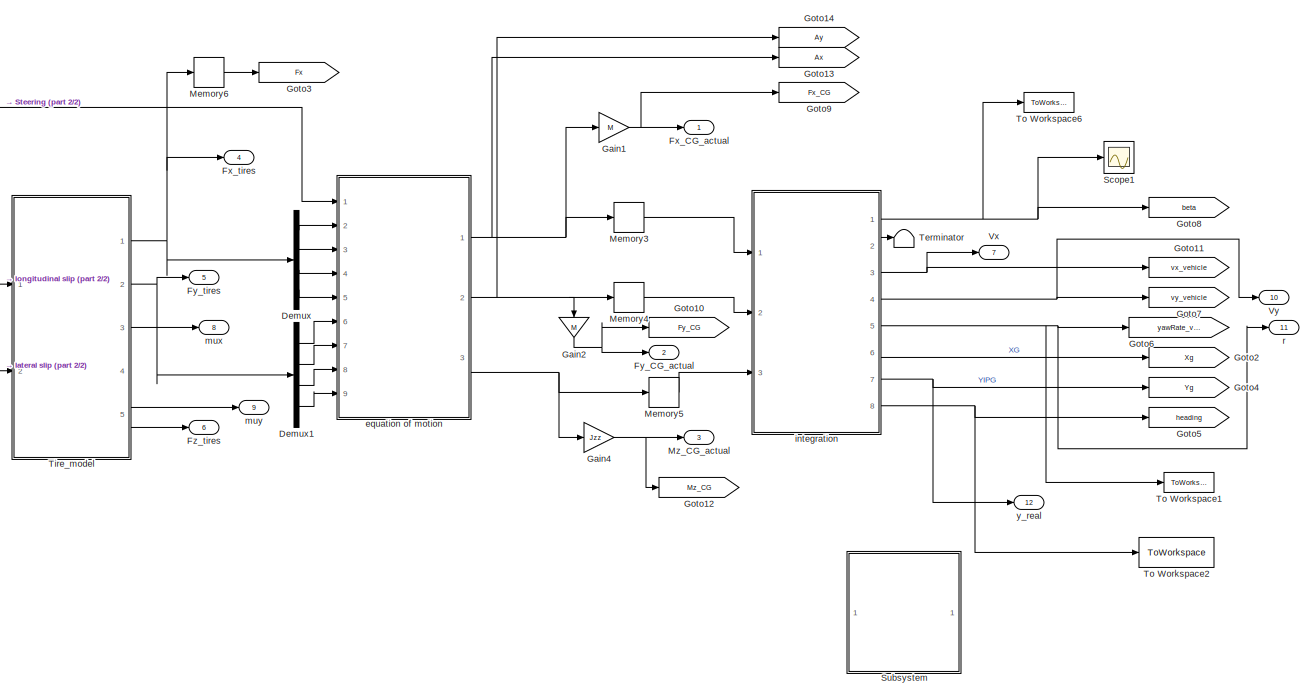
[diagram: Environment/Vehicle Model - part 1/2, right side, full height]
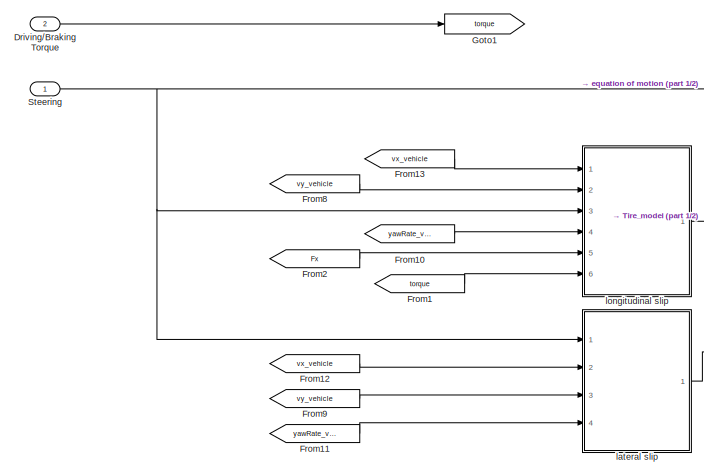
[diagram: Environment/Vehicle Model - part 2/2, middle left region]
BLOCK [SubSystem] Environment/Vehicle Model
  Ports = [2, 12]
  RequestExecContextInheritance = off
BLOCK [Demux] Environment/Vehicle Model/Demux
  DisplayOption = bar
  Ports = [1, 4]
BLOCK [Demux] Environment/Vehicle Model/Demux1
  DisplayOption = bar
  Ports = [1, 4]
BLOCK [Inport] Environment/Vehicle Model/Driving//Braking Torque
  IconDisplay = Port number
  Port = 2
BLOCK [From] Environment/Vehicle Model/From1
  GotoTag = torque
  TagVisibility = global
BLOCK [From] Environment/Vehicle Model/From10
  GotoTag = yawRate_vehicle
  TagVisibility = global
BLOCK [From] Environment/Vehicle Model/From11
  GotoTag = yawRate_vehicle
  TagVisibility = global
BLOCK [From] Environment/Vehicle Model/From12
  GotoTag = vx_vehicle
  TagVisibility = global
BLOCK [From] Environment/Vehicle Model/From13
  GotoTag = vx_vehicle
  TagVisibility = global
BLOCK [From] Environment/Vehicle Model/From2
  GotoTag = Fx
  TagVisibility = global
BLOCK [From] Environment/Vehicle Model/From8
  GotoTag = vy_vehicle
  TagVisibility = global
BLOCK [From] Environment/Vehicle Model/From9
  GotoTag = vy_vehicle
  TagVisibility = global
BLOCK [Outport] Environment/Vehicle Model/Fx_CG_actual
  IconDisplay = Port number
  VectorParamsAs1DForOutWhenUnconnected = off
BLOCK [Outport] Environment/Vehicle Model/Fx_tires
  IconDisplay = Port number
  Port = 4
  VectorParamsAs1DForOutWhenUnconnected = off
BLOCK [Outport] Environment/Vehicle Model/Fy_CG_actual 
  IconDisplay = Port number
  Port = 2
  VectorParamsAs1DForOutWhenUnconnected = off
BLOCK [Outport] Environment/Vehicle Model/Fy_tires
  IconDisplay = Port number
  Port = 5
  VectorParamsAs1DForOutWhenUnconnected = off
BLOCK [Outport] Environment/Vehicle Model/Fz_tires
  IconDisplay = Port number
  Port = 6
  VectorParamsAs1DForOutWhenUnconnected = off
BLOCK [Gain] Environment/Vehicle Model/Gain1
  Gain = M
  OutDataTypeStr = Inherit: Inherit via internal rule
  ParamDataTypeStr = Inherit: Inherit via internal rule
  SaturateOnIntegerOverflow = off
BLOCK [Gain] Environment/Vehicle Model/Gain2
  Gain = M
  OutDataTypeStr = Inherit: Inherit via internal rule
  ParamDataTypeStr = Inherit: Inherit via internal rule
  SaturateOnIntegerOverflow = off
BLOCK [Gain] Environment/Vehicle Model/Gain4
  Gain = Jzz
  OutDataTypeStr = Inherit: Inherit via internal rule
  ParamDataTypeStr = Inherit: Inherit via internal rule
  SaturateOnIntegerOverflow = off
BLOCK [Goto] Environment/Vehicle Model/Goto1
  GotoTag = torque
  TagVisibility = global
BLOCK [Goto] Environment/Vehicle Model/Goto10
  GotoTag = Fy_CG
  TagVisibility = global
BLOCK [Goto] Environment/Vehicle Model/Goto11
  GotoTag = vx_vehicle
  TagVisibility = global
BLOCK [Goto] Environment/Vehicle Model/Goto12
  GotoTag = Mz_CG
  TagVisibility = global
BLOCK [Goto] Environment/Vehicle Model/Goto13
  GotoTag = Ax
  TagVisibility = global
BLOCK [Goto] Environment/Vehicle Model/Goto14
  GotoTag = Ay
  TagVisibility = global
BLOCK [Goto] Environment/Vehicle Model/Goto2
  GotoTag = Xg
  TagVisibility = global
BLOCK [Goto] Environment/Vehicle Model/Goto3
  GotoTag = Fx
  TagVisibility = global
BLOCK [Goto] Environment/Vehicle Model/Goto4
  GotoTag = Yg
  TagVisibility = global
BLOCK [Goto] Environment/Vehicle Model/Goto5
  GotoTag = heading
  TagVisibility = global
BLOCK [Goto] Environment/Vehicle Model/Goto6
  GotoTag = yawRate_vehicle
  TagVisibility = global
BLOCK [Goto] Environment/Vehicle Model/Goto7
  GotoTag = vy_vehicle
  TagVisibility = global
BLOCK [Goto] Environment/Vehicle Model/Goto8
  GotoTag = beta
  TagVisibility = global
BLOCK [Goto] Environment/Vehicle Model/Goto9
  GotoTag = Fx_CG
  TagVisibility = global
BLOCK [Memory] Environment/Vehicle Model/Memory3
BLOCK [Memory] Environment/Vehicle Model/Memory4
BLOCK [Memory] Environment/Vehicle Model/Memory5
BLOCK [Memory] Environment/Vehicle Model/Memory6
BLOCK [Outport] Environment/Vehicle Model/Mz_CG_actual 
  IconDisplay = Port number
  Port = 3
  VectorParamsAs1DForOutWhenUnconnected = off
BLOCK [Scope] Environment/Vehicle Model/Scope1
  Floating = off
  NumInputPorts = 1
  Ports = [1]
  ScopeSpecificationString = Simulink.scopes.TimeScopeBlockCfg('CurrentConfiguration', extmgr.ConfigurationSet(extmgr.Configuration('Core','General UI',true),extmgr.Configuration('Core','Source UI',true),extmgr.Configuration('Sources','WiredSimulink',true,'DataLoggingVariableName','ScopeData1'),extmgr.Configuration('Visuals','Time Domain',true,'SerializedDisplays',{struct('MinYLimReal','-0.10278','MaxYLimReal','0.07587','YLab...<+1453ch>
BLOCK [Inport] Environment/Vehicle Model/Steering
  IconDisplay = Port number
BLOCK [SubSystem] Environment/Vehicle Model/Subsystem
  Ports = []
  RequestExecContextInheritance = off
BLOCK [From] Environment/Vehicle Model/Subsystem/From1
  GotoTag = Yg
  TagVisibility = global
BLOCK [From] Environment/Vehicle Model/Subsystem/From2
  GotoTag = Fx_CG
  TagVisibility = global
BLOCK [From] Environment/Vehicle Model/Subsystem/From3
  GotoTag = Fy_CG
  TagVisibility = global
BLOCK [From] Environment/Vehicle Model/Subsystem/From4
  GotoTag = Mz_CG
  TagVisibility = global
BLOCK [From] Environment/Vehicle Model/Subsystem/From5
  GotoTag = Ax
  TagVisibility = global
BLOCK [From] Environment/Vehicle Model/Subsystem/From6
  GotoTag = Ay
  TagVisibility = global
BLOCK [From] Environment/Vehicle Model/Subsystem/From8
  GotoTag = Xg
  TagVisibility = global
BLOCK [Scope] Environment/Vehicle Model/Subsystem/Scope
  Floating = off
  NumInputPorts = 1
  Ports = [1]
  ScopeSpecificationString = Simulink.scopes.TimeScopeBlockCfg('CurrentConfiguration', extmgr.ConfigurationSet(extmgr.Configuration('Core','General UI',true),extmgr.Configuration('Core','Source UI',true),extmgr.Configuration('Sources','WiredSimulink',true,'DataLoggingVariableName','ScopeData1'),extmgr.Configuration('Visuals','Time Domain',true),extmgr.Configuration('Tools','Plot Navigation',true),extmgr.Configuration('Tools',...<+40ch>
BLOCK [Scope] Environment/Vehicle Model/Subsystem/Scope1
  Floating = off
  NumInputPorts = 1
  Ports = [1]
  ScopeSpecificationString = Simulink.scopes.TimeScopeBlockCfg('CurrentConfiguration', extmgr.ConfigurationSet(extmgr.Configuration('Core','General UI',true),extmgr.Configuration('Core','Source UI',true),extmgr.Configuration('Sources','WiredSimulink',true,'DataLoggingVariableName','ScopeData2'),extmgr.Configuration('Visuals','Time Domain',true,'SerializedDisplays',{struct('MinYLimReal','-3.99808','MaxYLimReal','35.98269','YLa...<+1423ch>
BLOCK [Scope] Environment/Vehicle Model/Subsystem/Scope2
  Floating = off
  NumInputPorts = 1
  Ports = [1]
  ScopeSpecificationString = Simulink.scopes.TimeScopeBlockCfg('CurrentConfiguration', extmgr.ConfigurationSet(extmgr.Configuration('Core','General UI',true),extmgr.Configuration('Core','Source UI',true),extmgr.Configuration('Sources','WiredSimulink',true,'DataLoggingVariableName','ScopeData3'),extmgr.Configuration('Visuals','Time Domain',true,'SerializedDisplays',{struct('MinYLimReal','-114.2806','MaxYLimReal','179.21993','Y...<+1430ch>
BLOCK [Scope] Environment/Vehicle Model/Subsystem/Scope3
  Floating = off
  NumInputPorts = 1
  Ports = [1]
  ScopeSpecificationString = Simulink.scopes.TimeScopeBlockCfg('CurrentConfiguration', extmgr.ConfigurationSet(extmgr.Configuration('Core','General UI',true),extmgr.Configuration('Core','Source UI',true),extmgr.Configuration('Sources','WiredSimulink',true,'DataLoggingVariableName','ScopeData4'),extmgr.Configuration('Visuals','Time Domain',true,'SerializedDisplays',{struct('MinYLimReal','-7289.35014','MaxYLimReal','7420.79923'...<+1411ch>
BLOCK [Scope] Environment/Vehicle Model/Subsystem/Scope4
  Floating = off
  NumInputPorts = 1
  Ports = [1]
  ScopeSpecificationString = Simulink.scopes.TimeScopeBlockCfg('CurrentConfiguration', extmgr.ConfigurationSet(extmgr.Configuration('Core','General UI',true),extmgr.Configuration('Core','Source UI',true),extmgr.Configuration('Sources','WiredSimulink',true,'DataLoggingVariableName','ScopeData5'),extmgr.Configuration('Visuals','Time Domain',true,'SerializedDisplays',{struct('MinYLimReal','-4812.07073','MaxYLimReal','4558.62354'...<+1441ch>
BLOCK [Scope] Environment/Vehicle Model/Subsystem/Scope5
  Floating = off
  NumInputPorts = 1
  Ports = [1]
  ScopeSpecificationString = Simulink.scopes.TimeScopeBlockCfg('CurrentConfiguration', extmgr.ConfigurationSet(extmgr.Configuration('Core','General UI',true),extmgr.Configuration('Core','Source UI',true),extmgr.Configuration('Sources','WiredSimulink',true,'DataLoggingVariableName','ScopeData6'),extmgr.Configuration('Visuals','Time Domain',true,'SerializedDisplays',{struct('MinYLimReal','-3.6379','MaxYLimReal','4.25628','YLabe...<+1433ch>
BLOCK [Scope] Environment/Vehicle Model/Subsystem/Scope6
  Floating = off
  NumInputPorts = 1
  Ports = [1]
  ScopeSpecificationString = Simulink.scopes.TimeScopeBlockCfg('CurrentConfiguration', extmgr.ConfigurationSet(extmgr.Configuration('Core','General UI',true),extmgr.Configuration('Core','Source UI',true),extmgr.Configuration('Sources','WiredSimulink',true,'DataLoggingVariableName','ScopeData7'),extmgr.Configuration('Visuals','Time Domain',true,'SerializedDisplays',{struct('MinYLimReal','-5.96043','MaxYLimReal','6.09959','YLab...<+1430ch>
BLOCK [ToWorkspace] Environment/Vehicle Model/Subsystem/To Workspace
  FixptAsFi = on
  MaxDataPoints = inf
  Ports = [1]
  SampleTime = -1
  SaveFormat = Structure With Time
  VariableName = Xg
BLOCK [ToWorkspace] Environment/Vehicle Model/Subsystem/To Workspace1
  FixptAsFi = on
  MaxDataPoints = inf
  Ports = [1]
  SampleTime = -1
  SaveFormat = Structure With Time
  VariableName = Yg
BLOCK [ToWorkspace] Environment/Vehicle Model/Subsystem/To Workspace2
  FixptAsFi = on
  MaxDataPoints = inf
  Ports = [1]
  SampleTime = -1
  SaveFormat = Structure With Time
  VariableName = Fx_CG
BLOCK [ToWorkspace] Environment/Vehicle Model/Subsystem/To Workspace3
  FixptAsFi = on
  MaxDataPoints = inf
  Ports = [1]
  SampleTime = -1
  SaveFormat = Structure With Time
  VariableName = Fy_CG
BLOCK [ToWorkspace] Environment/Vehicle Model/Subsystem/To Workspace4
  FixptAsFi = on
  MaxDataPoints = inf
  Ports = [1]
  SampleTime = -1
  SaveFormat = Structure With Time
  VariableName = Mz_CG
BLOCK [ToWorkspace] Environment/Vehicle Model/Subsystem/To Workspace5
  FixptAsFi = on
  MaxDataPoints = inf
  Ports = [1]
  SampleTime = -1
  SaveFormat = Structure With Time
  VariableName = Ax
BLOCK [ToWorkspace] Environment/Vehicle Model/Subsystem/To Workspace6
  FixptAsFi = on
  MaxDataPoints = inf
  Ports = [1]
  SampleTime = -1
  SaveFormat = Structure With Time
  VariableName = Ay
BLOCK [Terminator] Environment/Vehicle Model/Terminator
BLOCK [SubSystem] Environment/Vehicle Model/Tire_model
  Ports = [2, 5]
  RequestExecContextInheritance = off
  TreatAsAtomicUnit = on
BLOCK [Constant] Environment/Vehicle Model/Tire_model/Constant
  Value = LMUX
BLOCK [Constant] Environment/Vehicle Model/Tire_model/Constant1
  Value = lr*(M*g)/(2*(lr+lf))
BLOCK [Constant] Environment/Vehicle Model/Tire_model/Constant2
  Value = LMUY
BLOCK [Constant] Environment/Vehicle Model/Tire_model/Constant4
  Value = lf*(M*g)/(2*(lr+lf))
BLOCK [Demux] Environment/Vehicle Model/Tire_model/Demux
  DisplayOption = bar
  Ports = [1, 4]
BLOCK [Demux] Environment/Vehicle Model/Tire_model/Demux1
  DisplayOption = bar
  Ports = [1, 4]
BLOCK [Display] Environment/Vehicle Model/Tire_model/Display
  Decimation = 1
  Ports = [1]
BLOCK [Display] Environment/Vehicle Model/Tire_model/Display1
  Decimation = 1
  Ports = [1]
BLOCK [Outport] Environment/Vehicle Model/Tire_model/Fx [N]
  IconDisplay = Port number
  VectorParamsAs1DForOutWhenUnconnected = off
BLOCK [Outport] Environment/Vehicle Model/Tire_model/Fy [N]
  IconDisplay = Port number
  Port = 2
  VectorParamsAs1DForOutWhenUnconnected = off
BLOCK [Outport] Environment/Vehicle Model/Tire_model/Fz
  IconDisplay = Port number
  Port = 5
  VectorParamsAs1DForOutWhenUnconnected = off
BLOCK [Mux] Environment/Vehicle Model/Tire_model/Mux
  DisplayOption = bar
  Ports = [4, 1]
BLOCK [SubSystem] Environment/Vehicle Model/Tire_model/Pacejka_Fx
  ErrorFcn = Stateflow.Translate.translate
  PermitHierarchicalResolution = ExplicitOnly
  Ports = [9, 2]
  RequestExecContextInheritance = off
  SFBlockType = MATLAB Function
  TreatAsAtomicUnit = on
BLOCK [Demux] Environment/Vehicle Model/Tire_model/Pacejka_Fx/ Demux 
  Outputs = 1
  Ports = [1, 1]
BLOCK [S-Function] Environment/Vehicle Model/Tire_model/Pacejka_Fx/ SFunction 
  EnableBusSupport = on
  FunctionName = sf_sfun
  PortCounts = [9 3]
  Ports = [9, 3]
  SFcnIsStateOwnerBlock = off
  SFunctionDeploymentMode = off
  Tag = Stateflow S-Function 4
BLOCK [Terminator] Environment/Vehicle Model/Tire_model/Pacejka_Fx/ Terminator 
BLOCK [Outport] Environment/Vehicle Model/Tire_model/Pacejka_Fx/Fx
  IconDisplay = Port number
  VectorParamsAs1DForOutWhenUnconnected = off
BLOCK [Inport] Environment/Vehicle Model/Tire_model/Pacejka_Fx/Fz_FL
  IconDisplay = Port number
  Port = 6
BLOCK [Inport] Environment/Vehicle Model/Tire_model/Pacejka_Fx/Fz_FR
  IconDisplay = Port number
  Port = 5
BLOCK [Inport] Environment/Vehicle Model/Tire_model/Pacejka_Fx/Fz_RL
  IconDisplay = Port number
  Port = 8
BLOCK [Inport] Environment/Vehicle Model/Tire_model/Pacejka_Fx/Fz_RR
  IconDisplay = Port number
  Port = 7
BLOCK [Inport] Environment/Vehicle Model/Tire_model/Pacejka_Fx/LMUX
  IconDisplay = Port number
  Port = 9
BLOCK [Outport] Environment/Vehicle Model/Tire_model/Pacejka_Fx/mux
  IconDisplay = Port number
  Port = 2
  VectorParamsAs1DForOutWhenUnconnected = off
BLOCK [Inport] Environment/Vehicle Model/Tire_model/Pacejka_Fx/slip_FL
  IconDisplay = Port number
  Port = 2
BLOCK [Inport] Environment/Vehicle Model/Tire_model/Pacejka_Fx/slip_FR
  IconDisplay = Port number
BLOCK [Inport] Environment/Vehicle Model/Tire_model/Pacejka_Fx/slip_RL
  IconDisplay = Port number
  Port = 4
BLOCK [Inport] Environment/Vehicle Model/Tire_model/Pacejka_Fx/slip_RR
  IconDisplay = Port number
  Port = 3
BLOCK [SubSystem] Environment/Vehicle Model/Tire_model/Pacejka_Fy
  ErrorFcn = Stateflow.Translate.translate
  PermitHierarchicalResolution = ExplicitOnly
  Ports = [9, 2]
  RequestExecContextInheritance = off
  SFBlockType = MATLAB Function
  TreatAsAtomicUnit = on
BLOCK [Demux] Environment/Vehicle Model/Tire_model/Pacejka_Fy/ Demux 
  Outputs = 1
  Ports = [1, 1]
BLOCK [S-Function] Environment/Vehicle Model/Tire_model/Pacejka_Fy/ SFunction 
  EnableBusSupport = on
  FunctionName = sf_sfun
  PortCounts = [9 3]
  Ports = [9, 3]
  SFcnIsStateOwnerBlock = off
  SFunctionDeploymentMode = off
  Tag = Stateflow S-Function 3
BLOCK [Terminator] Environment/Vehicle Model/Tire_model/Pacejka_Fy/ Terminator 
BLOCK [Outport] Environment/Vehicle Model/Tire_model/Pacejka_Fy/Fy
  IconDisplay = Port number
  VectorParamsAs1DForOutWhenUnconnected = off
BLOCK [Inport] Environment/Vehicle Model/Tire_model/Pacejka_Fy/Fz_FL
  IconDisplay = Port number
  Port = 6
BLOCK [Inport] Environment/Vehicle Model/Tire_model/Pacejka_Fy/Fz_FR
  IconDisplay = Port number
  Port = 5
BLOCK [Inport] Environment/Vehicle Model/Tire_model/Pacejka_Fy/Fz_RL
  IconDisplay = Port number
  Port = 8
BLOCK [Inport] Environment/Vehicle Model/Tire_model/Pacejka_Fy/Fz_RR
  IconDisplay = Port number
  Port = 7
BLOCK [Inport] Environment/Vehicle Model/Tire_model/Pacejka_Fy/LMUY
  IconDisplay = Port number
  Port = 9
BLOCK [Inport] Environment/Vehicle Model/Tire_model/Pacejka_Fy/alphaFL
  IconDisplay = Port number
  Port = 2
BLOCK [Inport] Environment/Vehicle Model/Tire_model/Pacejka_Fy/alphaFR
  IconDisplay = Port number
BLOCK [Inport] Environment/Vehicle Model/Tire_model/Pacejka_Fy/alphaRL
  IconDisplay = Port number
  Port = 4
BLOCK [Inport] Environment/Vehicle Model/Tire_model/Pacejka_Fy/alphaRR
  IconDisplay = Port number
  Port = 3
BLOCK [Outport] Environment/Vehicle Model/Tire_model/Pacejka_Fy/muy
  IconDisplay = Port number
  Port = 2
  VectorParamsAs1DForOutWhenUnconnected = off
BLOCK [Inport] Environment/Vehicle Model/Tire_model/alpha
  IconDisplay = Port number
  Port = 2
BLOCK [Outport] Environment/Vehicle Model/Tire_model/mux
  IconDisplay = Port number
  Port = 3
  VectorParamsAs1DForOutWhenUnconnected = off
BLOCK [Outport] Environment/Vehicle Model/Tire_model/muy
  IconDisplay = Port number
  Port = 4
  VectorParamsAs1DForOutWhenUnconnected = off
BLOCK [Inport] Environment/Vehicle Model/Tire_model/slip 
  IconDisplay = Port number
BLOCK [ToWorkspace] Environment/Vehicle Model/To Workspace1
  FixptAsFi = on
  MaxDataPoints = inf
  Ports = [1]
  SampleTime = -1
  SaveFormat = Structure With Time
  VariableName = yawrate
BLOCK [ToWorkspace] Environment/Vehicle Model/To Workspace2
  FixptAsFi = on
  MaxDataPoints = inf
  Ports = [1]
  SampleTime = -1
  SaveFormat = Structure With Time
  VariableName = yaw_vehicle
BLOCK [ToWorkspace] Environment/Vehicle Model/To Workspace6
  FixptAsFi = on
  MaxDataPoints = inf
  Ports = [1]
  SampleTime = -1
  SaveFormat = Structure With Time
  VariableName = beta
BLOCK [Outport] Environment/Vehicle Model/Vx
  IconDisplay = Port number
  Port = 7
  VectorParamsAs1DForOutWhenUnconnected = off
BLOCK [Outport] Environment/Vehicle Model/Vy
  IconDisplay = Port number
  Port = 10
  VectorParamsAs1DForOutWhenUnconnected = off
BLOCK [SubSystem] Environment/Vehicle Model/equation of motion
  Ports = [9, 3]
  RequestExecContextInheritance = off
  TreatAsAtomicUnit = on
BLOCK [Product] Environment/Vehicle Model/equation of motion/(fx_fr+fx_fl)cos(theta)
  InputSameDT = off
  OutDataTypeStr = Inherit: Inherit via internal rule
  Ports = [2, 1]
  RndMeth = Floor
  SaturateOnIntegerOverflow = off
BLOCK [Sum] Environment/Vehicle Model/equation of motion/(fx_fr+fx_fl)cos(theta)+ (fx_rr+fx_rl)- (fy_fr+fy_fl)sin(theta)
  InputSameDT = off
  Inputs = ++-
  OutDataTypeStr = Inherit: Inherit via internal rule
  Ports = [3, 1]
  SaturateOnIntegerOverflow = off
BLOCK [Product] Environment/Vehicle Model/equation of motion/(fx_fr+fx_fl)cos(theta)2
  InputSameDT = off
  OutDataTypeStr = Inherit: Inherit via internal rule
  Ports = [2, 1]
  RndMeth = Floor
  SaturateOnIntegerOverflow = off
BLOCK [Product] Environment/Vehicle Model/equation of motion/(fx_fr+fx_fl)sin(theta)
  InputSameDT = off
  OutDataTypeStr = Inherit: Inherit via internal rule
  Ports = [2, 1]
  RndMeth = Floor
  SaturateOnIntegerOverflow = off
BLOCK [Sum] Environment/Vehicle Model/equation of motion/(fx_fr+fx_fl)sin(theta)+ (fy_rr+fy_rl)+ (fy_fr+fy_fl)cos(theta)
  InputSameDT = off
  Inputs = +++
  OutDataTypeStr = Inherit: Inherit via internal rule
  Ports = [3, 1]
  SaturateOnIntegerOverflow = off
BLOCK [Sum] Environment/Vehicle Model/equation of motion/(fx_fr+fx_fl)sin(theta)+ (fy_rr+fy_rl)+ (fy_fr+fy_fl)cos(theta)1
  InputSameDT = off
  Inputs = -+++++
  OutDataTypeStr = Inherit: Inherit via internal rule
  Ports = [6, 1]
  SaturateOnIntegerOverflow = off
BLOCK [Product] Environment/Vehicle Model/equation of motion/(fx_fr+fx_fl)sin(theta)1
  InputSameDT = off
  OutDataTypeStr = Inherit: Inherit via internal rule
  Ports = [2, 1]
  RndMeth = Floor
  SaturateOnIntegerOverflow = off
BLOCK [Sum] Environment/Vehicle Model/equation of motion/(fx_fr-fx_fl)1
  InputSameDT = off
  Inputs = +-
  OutDataTypeStr = Inherit: Inherit via internal rule
  Ports = [2, 1]
  SaturateOnIntegerOverflow = off
BLOCK [Sum] Environment/Vehicle Model/equation of motion/(fx_rr+fx_rl)
  InputSameDT = off
  OutDataTypeStr = Inherit: Inherit via internal rule
  Ports = [2, 1]
  SaturateOnIntegerOverflow = off
BLOCK [Sum] Environment/Vehicle Model/equation of motion/(fx_rr-fx_rl)
  InputSameDT = off
  Inputs = +-
  OutDataTypeStr = Inherit: Inherit via internal rule
  Ports = [2, 1]
  SaturateOnIntegerOverflow = off
BLOCK [Product] Environment/Vehicle Model/equation of motion/(fy_fr+fy_fl)cos(theta)
  InputSameDT = off
  OutDataTypeStr = Inherit: Inherit via internal rule
  Ports = [2, 1]
  RndMeth = Floor
  SaturateOnIntegerOverflow = off
BLOCK [Product] Environment/Vehicle Model/equation of motion/(fy_fr+fy_fl)cos(theta)1
  InputSameDT = off
  OutDataTypeStr = Inherit: Inherit via internal rule
  Ports = [2, 1]
  RndMeth = Floor
  SaturateOnIntegerOverflow = off
BLOCK [Product] Environment/Vehicle Model/equation of motion/(fy_fr+fy_fl)sin(theta)
  InputSameDT = off
  OutDataTypeStr = Inherit: Inherit via internal rule
  Ports = [2, 1]
  RndMeth = Floor
  SaturateOnIntegerOverflow = off
BLOCK [Product] Environment/Vehicle Model/equation of motion/(fy_fr-fy_fl)sin(theta)
  InputSameDT = off
  OutDataTypeStr = Inherit: Inherit via internal rule
  Ports = [2, 1]
  RndMeth = Floor
  SaturateOnIntegerOverflow = off
BLOCK [Sum] Environment/Vehicle Model/equation of motion/(fy_rr+fy_rl)
  InputSameDT = off
  OutDataTypeStr = Inherit: Inherit via internal rule
  Ports = [2, 1]
  SaturateOnIntegerOverflow = off
BLOCK [Outport] Environment/Vehicle Model/equation of motion/Ax [m//s^2]
  IconDisplay = Port number
  VectorParamsAs1DForOutWhenUnconnected = off
BLOCK [Outport] Environment/Vehicle Model/equation of motion/Ay [m//s^2]
  IconDisplay = Port number
  Port = 2
  VectorParamsAs1DForOutWhenUnconnected = off
BLOCK [Inport] Environment/Vehicle Model/equation of motion/Fx_FL [N]
  IconDisplay = Port number
  Port = 3
BLOCK [Inport] Environment/Vehicle Model/equation of motion/Fx_FR [N]
  IconDisplay = Port number
  Port = 2
BLOCK [Inport] Environment/Vehicle Model/equation of motion/Fx_RL [N]
  IconDisplay = Port number
  Port = 5
BLOCK [Inport] Environment/Vehicle Model/equation of motion/Fx_RR [N]
  IconDisplay = Port number
  Port = 4
BLOCK [Inport] Environment/Vehicle Model/equation of motion/Fy_FL [N]
  IconDisplay = Port number
  Port = 7
BLOCK [Inport] Environment/Vehicle Model/equation of motion/Fy_FR [N]
  IconDisplay = Port number
  Port = 6
BLOCK [Inport] Environment/Vehicle Model/equation of motion/Fy_RL [N]
  IconDisplay = Port number
  Port = 9
BLOCK [Inport] Environment/Vehicle Model/equation of motion/Fy_RR [N]
  IconDisplay = Port number
  Port = 8
BLOCK [Sum] Environment/Vehicle Model/equation of motion/Subtract1
  InputSameDT = off
  OutDataTypeStr = Inherit: Inherit via internal rule
  Ports = [2, 1]
  SaturateOnIntegerOverflow = off
BLOCK [Sum] Environment/Vehicle Model/equation of motion/Subtract2
  InputSameDT = off
  OutDataTypeStr = Inherit: Inherit via internal rule
  Ports = [2, 1]
  SaturateOnIntegerOverflow = off
BLOCK [Sum] Environment/Vehicle Model/equation of motion/Subtract3
  InputSameDT = off
  Inputs = -+
  OutDataTypeStr = Inherit: Inherit via internal rule
  Ports = [2, 1]
  SaturateOnIntegerOverflow = off
BLOCK [Sum] Environment/Vehicle Model/equation of motion/Subtract4
  InputSameDT = off
  OutDataTypeStr = Inherit: Inherit via internal rule
  Ports = [2, 1]
  SaturateOnIntegerOverflow = off
BLOCK [Gain] Environment/Vehicle Model/equation of motion/c
  Gain = c
  OutDataTypeStr = Inherit: Inherit via internal rule
  ParamDataTypeStr = Inherit: Inherit via internal rule
  SaturateOnIntegerOverflow = off
BLOCK [Gain] Environment/Vehicle Model/equation of motion/c1
  Gain = c
  OutDataTypeStr = Inherit: Inherit via internal rule
  ParamDataTypeStr = Inherit: Inherit via internal rule
  SaturateOnIntegerOverflow = off
BLOCK [Gain] Environment/Vehicle Model/equation of motion/c_2 
  Gain = c
  OutDataTypeStr = Inherit: Inherit via internal rule
  ParamDataTypeStr = Inherit: Inherit via internal rule
  SaturateOnIntegerOverflow = off
BLOCK [Trigonometry] Environment/Vehicle Model/equation of motion/cos(theta) 
  Operator = cos
  Ports = [1, 1]
BLOCK [Gain] Environment/Vehicle Model/equation of motion/lf
  Gain = lf
  OutDataTypeStr = Inherit: Inherit via internal rule
  ParamDataTypeStr = Inherit: Inherit via internal rule
  SaturateOnIntegerOverflow = off
BLOCK [Gain] Environment/Vehicle Model/equation of motion/lf_2
  Gain = lf
  OutDataTypeStr = Inherit: Inherit via internal rule
  ParamDataTypeStr = Inherit: Inherit via internal rule
  SaturateOnIntegerOverflow = off
BLOCK [Gain] Environment/Vehicle Model/equation of motion/lr
  Gain = lr
  OutDataTypeStr = Inherit: Inherit via internal rule
  ParamDataTypeStr = Inherit: Inherit via internal rule
  SaturateOnIntegerOverflow = off
BLOCK [Gain] Environment/Vehicle Model/equation of motion/mass_ax
  Gain = 1/M
  OutDataTypeStr = Inherit: Inherit via internal rule
  ParamDataTypeStr = Inherit: Inherit via internal rule
  SaturateOnIntegerOverflow = off
BLOCK [Gain] Environment/Vehicle Model/equation of motion/mass_ay
  Gain = 1/M
  OutDataTypeStr = Inherit: Inherit via internal rule
  ParamDataTypeStr = Inherit: Inherit via internal rule
  SaturateOnIntegerOverflow = off
BLOCK [Gain] Environment/Vehicle Model/equation of motion/mom.inertia
  Gain = 1/Jzz
  OutDataTypeStr = Inherit: Inherit via internal rule
  ParamDataTypeStr = Inherit: Inherit via internal rule
  SaturateOnIntegerOverflow = off
BLOCK [Outport] Environment/Vehicle Model/equation of motion/psiddot [rad//s^2]
  IconDisplay = Port number
  Port = 3
  VectorParamsAs1DForOutWhenUnconnected = off
BLOCK [Trigonometry] Environment/Vehicle Model/equation of motion/sin(theta) 
  Ports = [1, 1]
BLOCK [Inport] Environment/Vehicle Model/equation of motion/steering [rad]
  IconDisplay = Port number
BLOCK [SubSystem] Environment/Vehicle Model/integration
  Ports = [3, 8]
  RequestExecContextInheritance = off
  TreatAsAtomicUnit = on
BLOCK [Constant] Environment/Vehicle Model/integration/2
  Value = v/3.6
BLOCK [Sum] Environment/Vehicle Model/integration/Add2
  InputSameDT = off
  OutDataTypeStr = Inherit: Inherit via internal rule
  Ports = [2, 1]
  SaturateOnIntegerOverflow = off
BLOCK [Sum] Environment/Vehicle Model/integration/Add4
  InputSameDT = off
  OutDataTypeStr = Inherit: Inherit via internal rule
  Ports = [2, 1]
  SaturateOnIntegerOverflow = off
BLOCK [Inport] Environment/Vehicle Model/integration/Ax [m//s^2]
  IconDisplay = Port number
BLOCK [Inport] Environment/Vehicle Model/integration/Ay [m//s^2]
  IconDisplay = Port number
  Port = 2
BLOCK [Integrator] Environment/Vehicle Model/integration/Integrator1
  Ports = [1, 1]
BLOCK [Integrator] Environment/Vehicle Model/integration/Integrator2
  InitialCondition = v/3.6
  InitialConditionSource = external
  Ports = [2, 1]
BLOCK [Integrator] Environment/Vehicle Model/integration/Integrator3
  Ports = [1, 1]
BLOCK [Integrator] Environment/Vehicle Model/integration/Integrator4
  Ports = [1, 1]
BLOCK [Integrator] Environment/Vehicle Model/integration/Integrator5
  Ports = [1, 1]
BLOCK [Integrator] Environment/Vehicle Model/integration/Integrator7
  Ports = [1, 1]
BLOCK [Outport] Environment/Vehicle Model/integration/PSId [rad//s]
  IconDisplay = Port number
  Port = 5
  VectorParamsAs1DForOutWhenUnconnected = off
BLOCK [Inport] Environment/Vehicle Model/integration/PSIddot [rad//s^2]
  IconDisplay = Port number
  Port = 3
BLOCK [Product] Environment/Vehicle Model/integration/PSIp*Vx
  InputSameDT = off
  OutDataTypeStr = Inherit: Inherit via internal rule
  Ports = [2, 1]
  SaturateOnIntegerOverflow = off
BLOCK [Product] Environment/Vehicle Model/integration/PSIp*Vy
  InputSameDT = off
  OutDataTypeStr = Inherit: Inherit via internal rule
  Ports = [2, 1]
  SaturateOnIntegerOverflow = off
BLOCK [Product] Environment/Vehicle Model/integration/Product1
  InputSameDT = off
  OutDataTypeStr = Inherit: Inherit via internal rule
  Ports = [2, 1]
  SaturateOnIntegerOverflow = off
BLOCK [Product] Environment/Vehicle Model/integration/Product2
  InputSameDT = off
  OutDataTypeStr = Inherit: Inherit via internal rule
  Ports = [2, 1]
  SaturateOnIntegerOverflow = off
BLOCK [Product] Environment/Vehicle Model/integration/Product3
  InputSameDT = off
  OutDataTypeStr = Inherit: Inherit via internal rule
  Ports = [2, 1]
  SaturateOnIntegerOverflow = off
BLOCK [Product] Environment/Vehicle Model/integration/Product6
  InputSameDT = off
  OutDataTypeStr = Inherit: Inherit via internal rule
  Ports = [2, 1]
  SaturateOnIntegerOverflow = off
BLOCK [Scope] Environment/Vehicle Model/integration/Scope1
  Floating = off
  NumInputPorts = 1
  Ports = [1]
  ScopeSpecificationString = Simulink.scopes.TimeScopeBlockCfg('CurrentConfiguration', extmgr.ConfigurationSet(extmgr.Configuration('Core','General UI',true),extmgr.Configuration('Core','Source UI',true),extmgr.Configuration('Sources','WiredSimulink',true,'DataLoggingVariableName','ScopeData12'),extmgr.Configuration('Visuals','Time Domain',true,'SerializedDisplays',{struct('MinYLimReal','-5.19451','MaxYLimReal','10.95168','YL...<+1437ch>
BLOCK [Sqrt] Environment/Vehicle Model/integration/Sqrt
BLOCK [Outport] Environment/Vehicle Model/integration/V [m//s]
  IconDisplay = Port number
  Port = 2
  VectorParamsAs1DForOutWhenUnconnected = off
BLOCK [Sum] Environment/Vehicle Model/integration/Vpx
  InputSameDT = off
  OutDataTypeStr = Inherit: Inherit via internal rule
  Ports = [2, 1]
  SaturateOnIntegerOverflow = off
BLOCK [Sum] Environment/Vehicle Model/integration/Vpy
  InputSameDT = off
  Inputs = +-
  OutDataTypeStr = Inherit: Inherit via internal rule
  Ports = [2, 1]
  SaturateOnIntegerOverflow = off
BLOCK [Outport] Environment/Vehicle Model/integration/Vx [m//s]
  IconDisplay = Port number
  Port = 3
  VectorParamsAs1DForOutWhenUnconnected = off
BLOCK [Outport] Environment/Vehicle Model/integration/Vy [m//s]
  IconDisplay = Port number
  Port = 4
  VectorParamsAs1DForOutWhenUnconnected = off
BLOCK [Outport] Environment/Vehicle Model/integration/XG [m]
  IconDisplay = Port number
  Port = 6
  VectorParamsAs1DForOutWhenUnconnected = off
BLOCK [Outport] Environment/Vehicle Model/integration/YG [m]
  IconDisplay = Port number
  Port = 7
  VectorParamsAs1DForOutWhenUnconnected = off
BLOCK [Outport] Environment/Vehicle Model/integration/beta
  IconDisplay = Port number
  VectorParamsAs1DForOutWhenUnconnected = off
BLOCK [Trigonometry] Environment/Vehicle Model/integration/cos(PSI+beta)
  Operator = cos
  Ports = [1, 1]
BLOCK [Trigonometry] Environment/Vehicle Model/integration/cos1
  Operator = atan2
  Ports = [2, 1]
BLOCK [Outport] Environment/Vehicle Model/integration/psi [rad]
  IconDisplay = Port number
  Port = 8
  VectorParamsAs1DForOutWhenUnconnected = off
BLOCK [Trigonometry] Environment/Vehicle Model/integration/sin(PSI+beta)
  Ports = [1, 1]
BLOCK [SubSystem] Environment/Vehicle Model/lateral slip
  Ports = [4, 1]
  RequestExecContextInheritance = off
  TreatAsAtomicUnit = on
BLOCK [Mux] Environment/Vehicle Model/lateral slip/Mux
  DisplayOption = bar
  Ports = [4, 1]
BLOCK [Scope] Environment/Vehicle Model/lateral slip/Scope
  Floating = off
  NumInputPorts = 1
  Ports = [1]
  ScopeSpecificationString = Simulink.scopes.TimeScopeBlockCfg('CurrentConfiguration', extmgr.ConfigurationSet(extmgr.Configuration('Core','General UI',true),extmgr.Configuration('Core','Source UI',true),extmgr.Configuration('Sources','WiredSimulink',true,'DataLoggingVariableName','ScopeData3','DataLoggingLimitDataPoints',true,'DataLoggingSaveFormat','Array','DataLoggingDecimation','1','DataLoggingDecimateData',true),extmgr.C...<+1543ch>
BLOCK [Outport] Environment/Vehicle Model/lateral slip/alpha[4x1]
  IconDisplay = Port number
  VectorParamsAs1DForOutWhenUnconnected = off
BLOCK [SubSystem] Environment/Vehicle Model/lateral slip/alpha_FL
  Ports = [4, 1]
  RequestExecContextInheritance = off
  TreatAsAtomicUnit = on
BLOCK [Sum] Environment/Vehicle Model/lateral slip/alpha_FL/Add
  InputSameDT = off
  Inputs = +-
  OutDataTypeStr = Inherit: Inherit via internal rule
  Ports = [2, 1]
  SaturateOnIntegerOverflow = off
BLOCK [Sum] Environment/Vehicle Model/lateral slip/alpha_FL/Add1
  InputSameDT = off
  Inputs = -+
  OutDataTypeStr = Inherit: Inherit via internal rule
  Ports = [2, 1]
  SaturateOnIntegerOverflow = off
BLOCK [Sum] Environment/Vehicle Model/lateral slip/alpha_FL/Add2
  InputSameDT = off
  OutDataTypeStr = Inherit: Inherit via internal rule
  Ports = [2, 1]
  SaturateOnIntegerOverflow = off
BLOCK [Sum] Environment/Vehicle Model/lateral slip/alpha_FL/Add3
  InputSameDT = off
  OutDataTypeStr = Inherit: Inherit via internal rule
  Ports = [2, 1]
  SaturateOnIntegerOverflow = off
BLOCK [Product] Environment/Vehicle Model/lateral slip/alpha_FL/Divide
  InputSameDT = off
  Inputs = */
  OutDataTypeStr = Inherit: Inherit via internal rule
  Ports = [2, 1]
  RndMeth = Floor
  SaturateOnIntegerOverflow = off
BLOCK [Gain] Environment/Vehicle Model/lateral slip/alpha_FL/Gain1
  Gain = lf
  OutDataTypeStr = Inherit: Inherit via internal rule
  ParamDataTypeStr = Inherit: Inherit via internal rule
  SaturateOnIntegerOverflow = off
BLOCK [Product] Environment/Vehicle Model/lateral slip/alpha_FL/Product
  InputSameDT = off
  OutDataTypeStr = Inherit: Inherit via internal rule
  Ports = [2, 1]
  SaturateOnIntegerOverflow = off
BLOCK [Product] Environment/Vehicle Model/lateral slip/alpha_FL/Product1
  InputSameDT = off
  OutDataTypeStr = Inherit: Inherit via internal rule
  Ports = [2, 1]
  SaturateOnIntegerOverflow = off
BLOCK [Product] Environment/Vehicle Model/lateral slip/alpha_FL/Product2
  InputSameDT = off
  OutDataTypeStr = Inherit: Inherit via internal rule
  Ports = [2, 1]
  SaturateOnIntegerOverflow = off
BLOCK [Product] Environment/Vehicle Model/lateral slip/alpha_FL/Product3
  InputSameDT = off
  OutDataTypeStr = Inherit: Inherit via internal rule
  Ports = [2, 1]
  SaturateOnIntegerOverflow = off
BLOCK [Trigonometry] Environment/Vehicle Model/lateral slip/alpha_FL/Trigonometric Function2
  Operator = atan
  Ports = [1, 1]
BLOCK [Outport] Environment/Vehicle Model/lateral slip/alpha_FL/alpha_FL
  IconDisplay = Port number
  VectorParamsAs1DForOutWhenUnconnected = off
BLOCK [Trigonometry] Environment/Vehicle Model/lateral slip/alpha_FL/cos theta
  Operator = cos
  Ports = [1, 1]
BLOCK [Inport] Environment/Vehicle Model/lateral slip/alpha_FL/psid
  IconDisplay = Port number
  Port = 4
BLOCK [Gain] Environment/Vehicle Model/lateral slip/alpha_FL/psid*c
  Gain = c
  OutDataTypeStr = Inherit: Inherit via internal rule
  ParamDataTypeStr = Inherit: Inherit via internal rule
  SaturateOnIntegerOverflow = off
BLOCK [Trigonometry] Environment/Vehicle Model/lateral slip/alpha_FL/sin theta
  Ports = [1, 1]
BLOCK [Inport] Environment/Vehicle Model/lateral slip/alpha_FL/steering
  IconDisplay = Port number
BLOCK [Inport] Environment/Vehicle Model/lateral slip/alpha_FL/vx
  IconDisplay = Port number
  Port = 2
BLOCK [Inport] Environment/Vehicle Model/lateral slip/alpha_FL/vy
  IconDisplay = Port number
  Port = 3
BLOCK [SubSystem] Environment/Vehicle Model/lateral slip/alpha_FR
  Ports = [4, 1]
  RequestExecContextInheritance = off
  TreatAsAtomicUnit = on
BLOCK [Sum] Environment/Vehicle Model/lateral slip/alpha_FR/Add
  InputSameDT = off
  OutDataTypeStr = Inherit: Inherit via internal rule
  Ports = [2, 1]
  SaturateOnIntegerOverflow = off
BLOCK [Sum] Environment/Vehicle Model/lateral slip/alpha_FR/Add1
  InputSameDT = off
  Inputs = -+
  OutDataTypeStr = Inherit: Inherit via internal rule
  Ports = [2, 1]
  SaturateOnIntegerOverflow = off
BLOCK [Sum] Environment/Vehicle Model/lateral slip/alpha_FR/Add2
  InputSameDT = off
  OutDataTypeStr = Inherit: Inherit via internal rule
  Ports = [2, 1]
  SaturateOnIntegerOverflow = off
BLOCK [Sum] Environment/Vehicle Model/lateral slip/alpha_FR/Add3
  InputSameDT = off
  OutDataTypeStr = Inherit: Inherit via internal rule
  Ports = [2, 1]
  SaturateOnIntegerOverflow = off
BLOCK [Product] Environment/Vehicle Model/lateral slip/alpha_FR/Divide
  InputSameDT = off
  Inputs = */
  OutDataTypeStr = Inherit: Inherit via internal rule
  Ports = [2, 1]
  RndMeth = Floor
  SaturateOnIntegerOverflow = off
BLOCK [Gain] Environment/Vehicle Model/lateral slip/alpha_FR/Gain
  Gain = c
  OutDataTypeStr = Inherit: Inherit via internal rule
  ParamDataTypeStr = Inherit: Inherit via internal rule
  SaturateOnIntegerOverflow = off
BLOCK [Gain] Environment/Vehicle Model/lateral slip/alpha_FR/Gain1
  Gain = lf
  OutDataTypeStr = Inherit: Inherit via internal rule
  ParamDataTypeStr = Inherit: Inherit via internal rule
  SaturateOnIntegerOverflow = off
BLOCK [Product] Environment/Vehicle Model/lateral slip/alpha_FR/Product
  InputSameDT = off
  OutDataTypeStr = Inherit: Inherit via internal rule
  Ports = [2, 1]
  SaturateOnIntegerOverflow = off
BLOCK [Product] Environment/Vehicle Model/lateral slip/alpha_FR/Product1
  InputSameDT = off
  OutDataTypeStr = Inherit: Inherit via internal rule
  Ports = [2, 1]
  SaturateOnIntegerOverflow = off
BLOCK [Product] Environment/Vehicle Model/lateral slip/alpha_FR/Product2
  InputSameDT = off
  OutDataTypeStr = Inherit: Inherit via internal rule
  Ports = [2, 1]
  SaturateOnIntegerOverflow = off
BLOCK [Product] Environment/Vehicle Model/lateral slip/alpha_FR/Product3
  InputSameDT = off
  OutDataTypeStr = Inherit: Inherit via internal rule
  Ports = [2, 1]
  SaturateOnIntegerOverflow = off
BLOCK [Trigonometry] Environment/Vehicle Model/lateral slip/alpha_FR/Trigonometric Function
  Ports = [1, 1]
BLOCK [Trigonometry] Environment/Vehicle Model/lateral slip/alpha_FR/Trigonometric Function1
  Operator = cos
  Ports = [1, 1]
BLOCK [Trigonometry] Environment/Vehicle Model/lateral slip/alpha_FR/Trigonometric Function2
  Operator = atan
  Ports = [1, 1]
BLOCK [Outport] Environment/Vehicle Model/lateral slip/alpha_FR/alpha_FR
  IconDisplay = Port number
  VectorParamsAs1DForOutWhenUnconnected = off
BLOCK [Inport] Environment/Vehicle Model/lateral slip/alpha_FR/psid
  IconDisplay = Port number
  Port = 4
BLOCK [Inport] Environment/Vehicle Model/lateral slip/alpha_FR/steering
  IconDisplay = Port number
BLOCK [Inport] Environment/Vehicle Model/lateral slip/alpha_FR/vx
  IconDisplay = Port number
  Port = 2
BLOCK [Inport] Environment/Vehicle Model/lateral slip/alpha_FR/vy
  IconDisplay = Port number
  Port = 3
BLOCK [SubSystem] Environment/Vehicle Model/lateral slip/alpha_RL
  Ports = [3, 1]
  RequestExecContextInheritance = off
  TreatAsAtomicUnit = on
BLOCK [Sum] Environment/Vehicle Model/lateral slip/alpha_RL/Add
  InputSameDT = off
  Inputs = +-
  OutDataTypeStr = Inherit: Inherit via internal rule
  Ports = [2, 1]
  SaturateOnIntegerOverflow = off
BLOCK [Sum] Environment/Vehicle Model/lateral slip/alpha_RL/Add3
  InputSameDT = off
  Inputs = -+
  OutDataTypeStr = Inherit: Inherit via internal rule
  Ports = [2, 1]
  SaturateOnIntegerOverflow = off
BLOCK [Product] Environment/Vehicle Model/lateral slip/alpha_RL/Divide
  InputSameDT = off
  Inputs = */
  OutDataTypeStr = Inherit: Inherit via internal rule
  Ports = [2, 1]
  RndMeth = Floor
  SaturateOnIntegerOverflow = off
BLOCK [Gain] Environment/Vehicle Model/lateral slip/alpha_RL/Gain
  Gain = c
  OutDataTypeStr = Inherit: Inherit via internal rule
  ParamDataTypeStr = Inherit: Inherit via internal rule
  SaturateOnIntegerOverflow = off
BLOCK [Gain] Environment/Vehicle Model/lateral slip/alpha_RL/Gain1
  Gain = lr
  OutDataTypeStr = Inherit: Inherit via internal rule
  ParamDataTypeStr = Inherit: Inherit via internal rule
  SaturateOnIntegerOverflow = off
BLOCK [Trigonometry] Environment/Vehicle Model/lateral slip/alpha_RL/Trigonometric Function2
  Operator = atan
  Ports = [1, 1]
BLOCK [Outport] Environment/Vehicle Model/lateral slip/alpha_RL/alpha_RL
  IconDisplay = Port number
  VectorParamsAs1DForOutWhenUnconnected = off
BLOCK [Inport] Environment/Vehicle Model/lateral slip/alpha_RL/psid
  IconDisplay = Port number
  Port = 3
BLOCK [Inport] Environment/Vehicle Model/lateral slip/alpha_RL/vx
  IconDisplay = Port number
BLOCK [Inport] Environment/Vehicle Model/lateral slip/alpha_RL/vy
  IconDisplay = Port number
  Port = 2
BLOCK [SubSystem] Environment/Vehicle Model/lateral slip/alpha_RR
  Ports = [3, 1]
  RequestExecContextInheritance = off
  TreatAsAtomicUnit = on
BLOCK [Sum] Environment/Vehicle Model/lateral slip/alpha_RR/Add
  InputSameDT = off
  OutDataTypeStr = Inherit: Inherit via internal rule
  Ports = [2, 1]
  SaturateOnIntegerOverflow = off
BLOCK [Sum] Environment/Vehicle Model/lateral slip/alpha_RR/Add3
  InputSameDT = off
  Inputs = -+
  OutDataTypeStr = Inherit: Inherit via internal rule
  Ports = [2, 1]
  SaturateOnIntegerOverflow = off
BLOCK [Product] Environment/Vehicle Model/lateral slip/alpha_RR/Divide
  InputSameDT = off
  Inputs = */
  OutDataTypeStr = Inherit: Inherit via internal rule
  Ports = [2, 1]
  RndMeth = Floor
  SaturateOnIntegerOverflow = off
BLOCK [Gain] Environment/Vehicle Model/lateral slip/alpha_RR/Gain
  Gain = c
  OutDataTypeStr = Inherit: Inherit via internal rule
  ParamDataTypeStr = Inherit: Inherit via internal rule
  SaturateOnIntegerOverflow = off
BLOCK [Gain] Environment/Vehicle Model/lateral slip/alpha_RR/Gain1
  Gain = lr
  OutDataTypeStr = Inherit: Inherit via internal rule
  ParamDataTypeStr = Inherit: Inherit via internal rule
  SaturateOnIntegerOverflow = off
BLOCK [Trigonometry] Environment/Vehicle Model/lateral slip/alpha_RR/Trigonometric Function2
  Operator = atan
  Ports = [1, 1]
BLOCK [Outport] Environment/Vehicle Model/lateral slip/alpha_RR/alpha_RR
  IconDisplay = Port number
  VectorParamsAs1DForOutWhenUnconnected = off
BLOCK [Inport] Environment/Vehicle Model/lateral slip/alpha_RR/psid
  IconDisplay = Port number
  Port = 3
BLOCK [Inport] Environment/Vehicle Model/lateral slip/alpha_RR/vx
  IconDisplay = Port number
BLOCK [Inport] Environment/Vehicle Model/lateral slip/alpha_RR/vy
  IconDisplay = Port number
  Port = 2
BLOCK [Inport] Environment/Vehicle Model/lateral slip/psid
  IconDisplay = Port number
  Port = 4
BLOCK [Inport] Environment/Vehicle Model/lateral slip/steering
  IconDisplay = Port number
BLOCK [Inport] Environment/Vehicle Model/lateral slip/vx
  IconDisplay = Port number
  Port = 2
BLOCK [Inport] Environment/Vehicle Model/lateral slip/vy
  IconDisplay = Port number
  Port = 3
BLOCK [SubSystem] Environment/Vehicle Model/longitudinal slip
  Ports = [6, 1]
  RequestExecContextInheritance = off
  TreatAsAtomicUnit = on
BLOCK [Constant] Environment/Vehicle Model/longitudinal slip/1
BLOCK [Constant] Environment/Vehicle Model/longitudinal slip/2
BLOCK [Sum] Environment/Vehicle Model/longitudinal slip/Add1
  InputSameDT = off
  Inputs = +-
  OutDataTypeStr = Inherit: Inherit via internal rule
  Ports = [2, 1]
  SaturateOnIntegerOverflow = off
BLOCK [Sum] Environment/Vehicle Model/longitudinal slip/Add2
  InputSameDT = off
  Inputs = -+
  OutDataTypeStr = Inherit: Inherit via internal rule
  Ports = [2, 1]
  SaturateOnIntegerOverflow = off
BLOCK [Sum] Environment/Vehicle Model/longitudinal slip/Add3
  InputSameDT = off
  Inputs = -+
  OutDataTypeStr = Inherit: Inherit via internal rule
  Ports = [2, 1]
  SaturateOnIntegerOverflow = off
BLOCK [Demux] Environment/Vehicle Model/longitudinal slip/Demux
  DisplayOption = bar
  Ports = [1, 4]
BLOCK [Product] Environment/Vehicle Model/longitudinal slip/Divide1
  InputSameDT = off
  Inputs = */
  OutDataTypeStr = Inherit: Inherit via internal rule
  Ports = [2, 1]
  RndMeth = Floor
  SaturateOnIntegerOverflow = off
BLOCK [Product] Environment/Vehicle Model/longitudinal slip/Divide2
  InputSameDT = off
  Inputs = */
  OutDataTypeStr = Inherit: Inherit via internal rule
  Ports = [2, 1]
  RndMeth = Floor
  SaturateOnIntegerOverflow = off
BLOCK [SubSystem] Environment/Vehicle Model/longitudinal slip/FL_Vx
  Ports = [4, 1]
  RequestExecContextInheritance = off
  TreatAsAtomicUnit = on
BLOCK [Product] Environment/Vehicle Model/longitudinal slip/FL_Vx/(Vx+PSIp*lf)*sin(theta)
  InputSameDT = off
  OutDataTypeStr = Inherit: Inherit via internal rule
  Ports = [2, 1]
  SaturateOnIntegerOverflow = off
BLOCK [Product] Environment/Vehicle Model/longitudinal slip/FL_Vx/(Vx+PSIp*lf)*sin(theta)1
  InputSameDT = off
  OutDataTypeStr = Inherit: Inherit via internal rule
  Ports = [2, 1]
  SaturateOnIntegerOverflow = off
BLOCK [Inport] Environment/Vehicle Model/longitudinal slip/FL_Vx/Vx
  IconDisplay = Port number
BLOCK [Sum] Environment/Vehicle Model/longitudinal slip/FL_Vx/Vx+PSId*lf
  InputSameDT = off
  OutDataTypeStr = Inherit: Inherit via internal rule
  Ports = [2, 1]
  SaturateOnIntegerOverflow = off
BLOCK [Sum] Environment/Vehicle Model/longitudinal slip/FL_Vx/Vx+PSId*lf1
  InputSameDT = off
  Inputs = +-
  OutDataTypeStr = Inherit: Inherit via internal rule
  Ports = [2, 1]
  SaturateOnIntegerOverflow = off
BLOCK [Sum] Environment/Vehicle Model/longitudinal slip/FL_Vx/Vx1
  InputSameDT = off
  OutDataTypeStr = Inherit: Inherit via internal rule
  Ports = [2, 1]
  SaturateOnIntegerOverflow = off
BLOCK [Outport] Environment/Vehicle Model/longitudinal slip/FL_Vx/Vx_FL
  IconDisplay = Port number
  VectorParamsAs1DForOutWhenUnconnected = off
BLOCK [Inport] Environment/Vehicle Model/longitudinal slip/FL_Vx/Vy
  IconDisplay = Port number
  Port = 2
BLOCK [Trigonometry] Environment/Vehicle Model/longitudinal slip/FL_Vx/cos delta
  Operator = cos
  Ports = [1, 1]
BLOCK [Inport] Environment/Vehicle Model/longitudinal slip/FL_Vx/psid
  IconDisplay = Port number
  Port = 4
BLOCK [Gain] Environment/Vehicle Model/longitudinal slip/FL_Vx/psip ca//1
  Gain = c
  OutDataTypeStr = Inherit: Inherit via internal rule
  ParamDataTypeStr = Inherit: Inherit via internal rule
  SaturateOnIntegerOverflow = off
BLOCK [Gain] Environment/Vehicle Model/longitudinal slip/FL_Vx/psip ca//2
  Gain = lf
  OutDataTypeStr = Inherit: Inherit via internal rule
  ParamDataTypeStr = Inherit: Inherit via internal rule
  SaturateOnIntegerOverflow = off
BLOCK [Trigonometry] Environment/Vehicle Model/longitudinal slip/FL_Vx/sin delta
  Ports = [1, 1]
BLOCK [Inport] Environment/Vehicle Model/longitudinal slip/FL_Vx/theta
  IconDisplay = Port number
  Port = 3
BLOCK [SubSystem] Environment/Vehicle Model/longitudinal slip/FR_Vx
  Ports = [4, 1]
  RequestExecContextInheritance = off
  TreatAsAtomicUnit = on
BLOCK [Product] Environment/Vehicle Model/longitudinal slip/FR_Vx/(Vx+PSIp*lf)*sin(theta)1
  InputSameDT = off
  OutDataTypeStr = Inherit: Inherit via internal rule
  Ports = [2, 1]
  SaturateOnIntegerOverflow = off
BLOCK [Product] Environment/Vehicle Model/longitudinal slip/FR_Vx/(Vy+PSIp*lf)*sin(theta)
  InputSameDT = off
  OutDataTypeStr = Inherit: Inherit via internal rule
  Ports = [2, 1]
  SaturateOnIntegerOverflow = off
BLOCK [Inport] Environment/Vehicle Model/longitudinal slip/FR_Vx/Vx
  IconDisplay = Port number
BLOCK [Sum] Environment/Vehicle Model/longitudinal slip/FR_Vx/Vx+PSId*lf
  InputSameDT = off
  OutDataTypeStr = Inherit: Inherit via internal rule
  Ports = [2, 1]
  SaturateOnIntegerOverflow = off
BLOCK [Sum] Environment/Vehicle Model/longitudinal slip/FR_Vx/Vx+PSId*lf1
  InputSameDT = off
  OutDataTypeStr = Inherit: Inherit via internal rule
  Ports = [2, 1]
  SaturateOnIntegerOverflow = off
BLOCK [Sum] Environment/Vehicle Model/longitudinal slip/FR_Vx/Vx2
  InputSameDT = off
  OutDataTypeStr = Inherit: Inherit via internal rule
  Ports = [2, 1]
  SaturateOnIntegerOverflow = off
BLOCK [Outport] Environment/Vehicle Model/longitudinal slip/FR_Vx/Vx_FR
  IconDisplay = Port number
  VectorParamsAs1DForOutWhenUnconnected = off
BLOCK [Inport] Environment/Vehicle Model/longitudinal slip/FR_Vx/Vy
  IconDisplay = Port number
  Port = 2
BLOCK [Trigonometry] Environment/Vehicle Model/longitudinal slip/FR_Vx/cos delta
  Operator = cos
  Ports = [1, 1]
BLOCK [Inport] Environment/Vehicle Model/longitudinal slip/FR_Vx/psid
  IconDisplay = Port number
  Port = 4
BLOCK [Gain] Environment/Vehicle Model/longitudinal slip/FR_Vx/psip ca//1
  Gain = c
  OutDataTypeStr = Inherit: Inherit via internal rule
  ParamDataTypeStr = Inherit: Inherit via internal rule
  SaturateOnIntegerOverflow = off
BLOCK [Gain] Environment/Vehicle Model/longitudinal slip/FR_Vx/psip ca//3
  Gain = lf
  OutDataTypeStr = Inherit: Inherit via internal rule
  ParamDataTypeStr = Inherit: Inherit via internal rule
  SaturateOnIntegerOverflow = off
BLOCK [Trigonometry] Environment/Vehicle Model/longitudinal slip/FR_Vx/sin delta
  Ports = [1, 1]
BLOCK [Inport] Environment/Vehicle Model/longitudinal slip/FR_Vx/theta
  IconDisplay = Port number
  Port = 3
BLOCK [Inport] Environment/Vehicle Model/longitudinal slip/Fx
  IconDisplay = Port number
  Port = 5
BLOCK [Gain] Environment/Vehicle Model/longitudinal slip/Gain1
  Gain = [Reff, Reff, Reff, Reff]'
  OutDataTypeStr = Inherit: Inherit via internal rule
  ParamDataTypeStr = Inherit: Inherit via internal rule
  SaturateOnIntegerOverflow = off
BLOCK [Mux] Environment/Vehicle Model/longitudinal slip/Mux1
  DisplayOption = bar
  Ports = [4, 1]
BLOCK [Mux] Environment/Vehicle Model/longitudinal slip/Mux2
  DisplayOption = bar
  Ports = [4, 1]
BLOCK [Mux] Environment/Vehicle Model/longitudinal slip/Mux3
  DisplayOption = bar
  Inputs = 2
  Ports = [2, 1]
BLOCK [SubSystem] Environment/Vehicle Model/longitudinal slip/RL_Vx
  Ports = [2, 1]
  RequestExecContextInheritance = off
  TreatAsAtomicUnit = on
BLOCK [Inport] Environment/Vehicle Model/longitudinal slip/RL_Vx/Vx
  IconDisplay = Port number
BLOCK [Sum] Environment/Vehicle Model/longitudinal slip/RL_Vx/Vx-PSId*c
  InputSameDT = off
  Inputs = +-
  OutDataTypeStr = Inherit: Inherit via internal rule
  Ports = [2, 1]
  SaturateOnIntegerOverflow = off
BLOCK [Outport] Environment/Vehicle Model/longitudinal slip/RL_Vx/Vx_RL
  IconDisplay = Port number
  VectorParamsAs1DForOutWhenUnconnected = off
BLOCK [Inport] Environment/Vehicle Model/longitudinal slip/RL_Vx/psid
  IconDisplay = Port number
  Port = 2
BLOCK [Gain] Environment/Vehicle Model/longitudinal slip/RL_Vx/psip c
  Gain = c
  OutDataTypeStr = Inherit: Inherit via internal rule
  ParamDataTypeStr = Inherit: Inherit via internal rule
  SaturateOnIntegerOverflow = off
BLOCK [SubSystem] Environment/Vehicle Model/longitudinal slip/RR_Vx
  Ports = [2, 1]
  RequestExecContextInheritance = off
  TreatAsAtomicUnit = on
BLOCK [Inport] Environment/Vehicle Model/longitudinal slip/RR_Vx/Vx
  IconDisplay = Port number
BLOCK [Sum] Environment/Vehicle Model/longitudinal slip/RR_Vx/Vx+PSId*c
  InputSameDT = off
  OutDataTypeStr = Inherit: Inherit via internal rule
  Ports = [2, 1]
  SaturateOnIntegerOverflow = off
BLOCK [Outport] Environment/Vehicle Model/longitudinal slip/RR_Vx/Vx_RR
  IconDisplay = Port number
  VectorParamsAs1DForOutWhenUnconnected = off
BLOCK [Inport] Environment/Vehicle Model/longitudinal slip/RR_Vx/psid
  IconDisplay = Port number
  Port = 2
BLOCK [Gain] Environment/Vehicle Model/longitudinal slip/RR_Vx/psip c
  Gain = c
  OutDataTypeStr = Inherit: Inherit via internal rule
  ParamDataTypeStr = Inherit: Inherit via internal rule
  SaturateOnIntegerOverflow = off
BLOCK [Saturate] Environment/Vehicle Model/longitudinal slip/Saturation
  InputPortMap = u0
  LowerLimit = -1
  Ports = [1, 1]
  UpperLimit = 1
BLOCK [Scope] Environment/Vehicle Model/longitudinal slip/Scope
  Floating = off
  NumInputPorts = 1
  Ports = [1]
  ScopeSpecificationString = Simulink.scopes.TimeScopeBlockCfg('CurrentConfiguration', extmgr.ConfigurationSet(extmgr.Configuration('Core','General UI',true),extmgr.Configuration('Core','Source UI',true),extmgr.Configuration('Sources','WiredSimulink',true,'DataLoggingVariableName','ScopeData1'),extmgr.Configuration('Visuals','Time Domain',true,'SerializedDisplays',{struct('MinYLimReal','5.10378','MaxYLimReal','11.36599','YLab...<+1422ch>
BLOCK [Scope] Environment/Vehicle Model/longitudinal slip/Scope1
  Floating = off
  NumInputPorts = 1
  Ports = [1]
  ScopeSpecificationString = Simulink.scopes.TimeScopeBlockCfg('CurrentConfiguration', extmgr.ConfigurationSet(extmgr.Configuration('Core','General UI',true),extmgr.Configuration('Core','Source UI',true),extmgr.Configuration('Sources','WiredSimulink',true,'DataLoggingVariableName','ScopeData2'),extmgr.Configuration('Visuals','Time Domain',true,'SerializedDisplays',{struct('MinYLimReal','7.60313','MaxYLimReal','11.16429','YLab...<+1391ch>
BLOCK [Scope] Environment/Vehicle Model/longitudinal slip/Scope2
  Floating = off
  NumInputPorts = 1
  Ports = [1]
  ScopeSpecificationString = Simulink.scopes.TimeScopeBlockCfg('CurrentConfiguration', extmgr.ConfigurationSet(extmgr.Configuration('Core','General UI',true),extmgr.Configuration('Core','Source UI',true),extmgr.Configuration('Sources','WiredSimulink',true,'DataLoggingVariableName','ScopeData4'),extmgr.Configuration('Visuals','Time Domain',true,'SerializedDisplays',{struct('MinYLimReal','8.01219','MaxYLimReal','11.19044','YLab...<+1362ch>
BLOCK [Scope] Environment/Vehicle Model/longitudinal slip/Scope3
  Floating = off
  NumInputPorts = 1
  Ports = [1]
  ScopeSpecificationString = Simulink.scopes.TimeScopeBlockCfg('CurrentConfiguration', extmgr.ConfigurationSet(extmgr.Configuration('Core','General UI',true),extmgr.Configuration('Core','Source UI',true),extmgr.Configuration('Sources','WiredSimulink',true,'DataLoggingVariableName','ScopeData4'),extmgr.Configuration('Visuals','Time Domain',true,'SerializedDisplays',{struct('MinYLimReal','-0.04563','MaxYLimReal','0.03626','YLab...<+1491ch>
BLOCK [Scope] Environment/Vehicle Model/longitudinal slip/Scope4
  Floating = off
  NumInputPorts = 1
  Ports = [1]
  ScopeSpecificationString = Simulink.scopes.TimeScopeBlockCfg('CurrentConfiguration', extmgr.ConfigurationSet(extmgr.Configuration('Core','General UI',true),extmgr.Configuration('Core','Source UI',true),extmgr.Configuration('Sources','WiredSimulink',true,'DataLoggingVariableName','ScopeData6'),extmgr.Configuration('Visuals','Time Domain',true,'SerializedDisplays',{struct('MinYLimReal','7.67043','MaxYLimReal','32.67561','YLab...<+1449ch>
BLOCK [Outport] Environment/Vehicle Model/longitudinal slip/Slip [4X1]1
  IconDisplay = Port number
  VectorParamsAs1DForOutWhenUnconnected = off
BLOCK [SubSystem] Environment/Vehicle Model/longitudinal slip/Subsystem
  Ports = [2, 1]
  RequestExecContextInheritance = off
BLOCK [Gain] Environment/Vehicle Model/longitudinal slip/Subsystem/1//J
  Gain = 1./[1.04, 1.04, 1.04 ,1.04]'
  OutDataTypeStr = Inherit: Inherit via internal rule
  ParamDataTypeStr = Inherit: Inherit via internal rule
  SaturateOnIntegerOverflow = off
BLOCK [Constant] Environment/Vehicle Model/longitudinal slip/Subsystem/2
  Value = v/3.6*1/Reff
BLOCK [Sum] Environment/Vehicle Model/longitudinal slip/Subsystem/Add
  InputSameDT = off
  Inputs = -+
  OutDataTypeStr = Inherit: Inherit via internal rule
  Ports = [2, 1]
  SaturateOnIntegerOverflow = off
BLOCK [Demux] Environment/Vehicle Model/longitudinal slip/Subsystem/Demux
  DisplayOption = bar
  Ports = [1, 4]
BLOCK [DiscreteIntegrator] Environment/Vehicle Model/longitudinal slip/Subsystem/Discrete-Time Integrator
  ICPrevOutput = DiscIntNeverNeededParam
  ICPrevScaledInput = DiscIntNeverNeededParam
  InitialCondition = v/3.6*1/Reff
  InitialConditionSetting = Auto
  InitialConditionSource = external
  Ports = [2, 1]
  SampleTime = 0.001
BLOCK [DiscreteIntegrator] Environment/Vehicle Model/longitudinal slip/Subsystem/Discrete-Time Integrator1
  ICPrevOutput = DiscIntNeverNeededParam
  ICPrevScaledInput = DiscIntNeverNeededParam
  InitialCondition = v/3.6*1/Reff
  InitialConditionSetting = Auto
  InitialConditionSource = external
  Ports = [2, 1]
  SampleTime = 0.001
BLOCK [DiscreteIntegrator] Environment/Vehicle Model/longitudinal slip/Subsystem/Discrete-Time Integrator2
  ICPrevOutput = DiscIntNeverNeededParam
  ICPrevScaledInput = DiscIntNeverNeededParam
  InitialCondition = v/3.6*1/Reff
  InitialConditionSetting = Auto
  InitialConditionSource = external
  Ports = [2, 1]
  SampleTime = 0.001
BLOCK [DiscreteIntegrator] Environment/Vehicle Model/longitudinal slip/Subsystem/Discrete-Time Integrator3
  ICPrevOutput = DiscIntNeverNeededParam
  ICPrevScaledInput = DiscIntNeverNeededParam
  InitialCondition = v/3.6*1/Reff
  InitialConditionSetting = Auto
  InitialConditionSource = external
  Ports = [2, 1]
  SampleTime = 0.001
BLOCK [Inport] Environment/Vehicle Model/longitudinal slip/Subsystem/Fx
  IconDisplay = Port number
BLOCK [Mux] Environment/Vehicle Model/longitudinal slip/Subsystem/Mux
  DisplayOption = bar
  Ports = [4, 1]
BLOCK [Gain] Environment/Vehicle Model/longitudinal slip/Subsystem/Reff
  Gain = [Reff, Reff, Reff, Reff]'
  OutDataTypeStr = Inherit: Inherit via internal rule
  ParamDataTypeStr = Inherit: Inherit via internal rule
  SaturateOnIntegerOverflow = off
BLOCK [Saturate] Environment/Vehicle Model/longitudinal slip/Subsystem/Saturation
  InputPortMap = u0
  LowerLimit = 0
  Ports = [1, 1]
  UpperLimit = inf
BLOCK [Scope] Environment/Vehicle Model/longitudinal slip/Subsystem/Scope
  Floating = off
  NumInputPorts = 1
  Ports = [1]
  ScopeSpecificationString = Simulink.scopes.TimeScopeBlockCfg('CurrentConfiguration', extmgr.ConfigurationSet(extmgr.Configuration('Core','General UI',true),extmgr.Configuration('Core','Source UI',true),extmgr.Configuration('Sources','WiredSimulink',true,'DataLoggingVariableName','ScopeData13'),extmgr.Configuration('Visuals','Time Domain',true,'SerializedDisplays',{struct('MinYLimReal','-1343.40224','MaxYLimReal','1784.42809...<+1497ch>
BLOCK [Scope] Environment/Vehicle Model/longitudinal slip/Subsystem/Scope1
  Floating = off
  NumInputPorts = 1
  Ports = [1]
  ScopeSpecificationString = Simulink.scopes.TimeScopeBlockCfg('CurrentConfiguration', extmgr.ConfigurationSet(extmgr.Configuration('Core','General UI',true),extmgr.Configuration('Core','Source UI',true),extmgr.Configuration('Sources','WiredSimulink',true,'DataLoggingVariableName','ScopeData14'),extmgr.Configuration('Visuals','Time Domain',true,'SerializedDisplays',{struct('MinYLimReal','-939.62472','MaxYLimReal','1182.23476'...<+1541ch>
BLOCK [Inport] Environment/Vehicle Model/longitudinal slip/Subsystem/T
  IconDisplay = Port number
  Port = 2
BLOCK [Outport] Environment/Vehicle Model/longitudinal slip/Subsystem/w
  IconDisplay = Port number
  VectorParamsAs1DForOutWhenUnconnected = off
BLOCK [Switch] Environment/Vehicle Model/longitudinal slip/Switch
  Criteria = u2 > Threshold
  InputSameDT = off
  SaturateOnIntegerOverflow = off
BLOCK [Inport] Environment/Vehicle Model/longitudinal slip/T
  IconDisplay = Port number
  Port = 6
BLOCK [Inport] Environment/Vehicle Model/longitudinal slip/Vx
  IconDisplay = Port number
BLOCK [Inport] Environment/Vehicle Model/longitudinal slip/Vy
  IconDisplay = Port number
  Port = 2
BLOCK [Inport] Environment/Vehicle Model/longitudinal slip/psid
  IconDisplay = Port number
  Port = 4
BLOCK [Inport] Environment/Vehicle Model/longitudinal slip/steering
  IconDisplay = Port number
  Port = 3
BLOCK [Outport] Environment/Vehicle Model/mux
  IconDisplay = Port number
  Port = 8
  VectorParamsAs1DForOutWhenUnconnected = off
BLOCK [Outport] Environment/Vehicle Model/muy
  IconDisplay = Port number
  Port = 9
  VectorParamsAs1DForOutWhenUnconnected = off
BLOCK [Outport] Environment/Vehicle Model/r
  IconDisplay = Port number
  Port = 11
  VectorParamsAs1DForOutWhenUnconnected = off
BLOCK [Outport] Environment/Vehicle Model/y_real
  IconDisplay = Port number
  Port = 12
  VectorParamsAs1DForOutWhenUnconnected = off
BLOCK [Inport] Environment/Wdf1
  IconDisplay = Port number
BLOCK [Inport] Environment/Wdf2
  IconDisplay = Port number
  Port = 2
BLOCK [Inport] Environment/Wdf3
  IconDisplay = Port number
  Port = 3
BLOCK [Inport] Environment/Wdf4
  IconDisplay = Port number
  Port = 4
BLOCK [Outport] Environment/dq
  IconDisplay = Port number
  Port = 7
BLOCK [Constant] Environment/error weights1
  Value = wFx
BLOCK [Constant] Environment/error weights2
  Value = wGz
BLOCK [Constant] Environment/error weights3
  Value = kx1
BLOCK [Constant] Environment/error weights4
  Value = ky1
BLOCK [Constant] Environment/error weights5
  Value = kz1
BLOCK [Constant] Environment/error weights6
  Value = wFy
BLOCK [Constant] Environment/error weights7
  Value = [gamma, n]
BLOCK [Constant] Environment/error weights8
  Value = Q_gain
BLOCK [Constant] Environment/max Q
  Value = [umax_m umax_m umax_m umax_m]
BLOCK [Constant] Environment/min Q
  Value = [umin_br umin_br umin_br umin_br]
BLOCK [Outport] Environment/r
  IconDisplay = Port number
  Port = 10
BLOCK [SubSystem] Environment/smoothing transient2
  Ports = [1, 1]
  RequestExecContextInheritance = off
BLOCK [Clock] Environment/smoothing transient2/Clock
BLOCK [Inport] Environment/smoothing transient2/In1
  IconDisplay = Port number
BLOCK [MATLABFcn] Environment/smoothing transient2/MATLAB Fcn
  MATLABFcn = smoothing_t0
  Ports = [1, 1]
BLOCK [Outport] Environment/smoothing transient2/Out1
  IconDisplay = Port number
  VectorParamsAs1DForOutWhenUnconnected = off
BLOCK [Product] Environment/smoothing transient2/Product2
  InputSameDT = off
  OutDataTypeStr = Inherit: Inherit via internal rule
  Ports = [2, 1]
  SaturateOnIntegerOverflow = off
BLOCK [Outport] Environment/vx
  IconDisplay = Port number
  Port = 8
BLOCK [Outport] Environment/vy
  IconDisplay = Port number
  Port = 9
BLOCK [SubSystem] Environment/wxd weights
  Ports = [4, 1]
  RequestExecContextInheritance = off
BLOCK [Demux] Environment/wxd weights/Demux8
  DisplayOption = bar
  Ports = [1, 4]
BLOCK [Mux] Environment/wxd weights/Mux17
  DisplayOption = bar
  Ports = [4, 1]
BLOCK [Outport] Environment/wxd weights/Out1
  IconDisplay = Port number
  VectorParamsAs1DForOutWhenUnconnected = off
BLOCK [Product] Environment/wxd weights/Product1
  InputSameDT = off
  OutDataTypeStr = Inherit: Inherit via internal rule
  Ports = [2, 1]
  SaturateOnIntegerOverflow = off
BLOCK [Product] Environment/wxd weights/Product2
  InputSameDT = off
  OutDataTypeStr = Inherit: Inherit via internal rule
  Ports = [2, 1]
  SaturateOnIntegerOverflow = off
BLOCK [Product] Environment/wxd weights/Product3
  InputSameDT = off
  OutDataTypeStr = Inherit: Inherit via internal rule
  Ports = [2, 1]
  SaturateOnIntegerOverflow = off
BLOCK [Product] Environment/wxd weights/Product4
  InputSameDT = off
  OutDataTypeStr = Inherit: Inherit via internal rule
  Ports = [2, 1]
  SaturateOnIntegerOverflow = off
BLOCK [Product] Environment/wxd weights/Product5
  InputSameDT = off
  OutDataTypeStr = Inherit: Inherit via internal rule
  Ports = [2, 1]
  SaturateOnIntegerOverflow = off
BLOCK [Product] Environment/wxd weights/Product6
  InputSameDT = off
  OutDataTypeStr = Inherit: Inherit via internal rule
  Ports = [2, 1]
  SaturateOnIntegerOverflow = off
BLOCK [Product] Environment/wxd weights/Product7
  InputSameDT = off
  OutDataTypeStr = Inherit: Inherit via internal rule
  Ports = [2, 1]
  SaturateOnIntegerOverflow = off
BLOCK [Product] Environment/wxd weights/Product8
  InputSameDT = off
  OutDataTypeStr = Inherit: Inherit via internal rule
  Ports = [2, 1]
  SaturateOnIntegerOverflow = off
BLOCK [Constant] Environment/wxd weights/error weights5
  Value = [1.0 1.0 1.0 1.0]'
BLOCK [Step] Environment/wxd weights/failure1
  Before = 1
  SampleTime = 0
  Time = 4
BLOCK [Step] Environment/wxd weights/failure2
  Before = 1
  SampleTime = 0
  Time = 4
BLOCK [Step] Environment/wxd weights/failure3
  Before = 1
  SampleTime = 0
  Time = 4
BLOCK [Step] Environment/wxd weights/failure4
  Before = 1
  SampleTime = 0
  Time = 4
BLOCK [Inport] Environment/wxd weights/wxd1
  IconDisplay = Port number
BLOCK [Inport] Environment/wxd weights/wxd2
  IconDisplay = Port number
  Port = 2
BLOCK [Inport] Environment/wxd weights/wxd3
  IconDisplay = Port number
  Port = 3
BLOCK [Inport] Environment/wxd weights/wxd4
  IconDisplay = Port number
  Port = 4
BLOCK [Reference] RL Agent  REF=rllib/RL Agent
  Ports = [3, 1]
  SourceBlock = rllib/RL Agent
  SourceProductBaseCode = RL
  SourceProductName = Reinforcement Learning Toolbox
  SourceType = RL Agent
BLOCK [SubSystem] Signal Processing for PFC
  Ports = [7, 3]
  RequestExecContextInheritance = off
BLOCK [Inport] Signal Processing for PFC/Fx_target
  IconDisplay = Port number
BLOCK [Inport] Signal Processing for PFC/Fx_vehicle
  IconDisplay = Port number
  Port = 2
BLOCK [Inport] Signal Processing for PFC/Fy_target
  IconDisplay = Port number
  Port = 3
BLOCK [Inport] Signal Processing for PFC/Fy_vehicle
  IconDisplay = Port number
  Port = 4
BLOCK [Inport] Signal Processing for PFC/Mz_target
  IconDisplay = Port number
  Port = 5
BLOCK [Inport] Signal Processing for PFC/Mz_vehicle
  IconDisplay = Port number
  Port = 6
BLOCK [Outport] Signal Processing for PFC/Reward
  IconDisplay = Port number
  Port = 2
  VectorParamsAs1DForOutWhenUnconnected = off
BLOCK [SubSystem] Signal Processing for PFC/Subsystem
  Ports = [7, 4]
  RequestExecContextInheritance = off
BLOCK [Sum] Signal Processing for PFC/Subsystem/Add
  InputSameDT = off
  Inputs = -+
  OutDataTypeStr = Inherit: Inherit via internal rule
  Ports = [2, 1]
  SaturateOnIntegerOverflow = off
BLOCK [Sum] Signal Processing for PFC/Subsystem/Add1
  InputSameDT = off
  Inputs = -+
  OutDataTypeStr = Inherit: Inherit via internal rule
  Ports = [2, 1]
  SaturateOnIntegerOverflow = off
BLOCK [Sum] Signal Processing for PFC/Subsystem/Add2
  InputSameDT = off
  Inputs = -+
  OutDataTypeStr = Inherit: Inherit via internal rule
  Ports = [2, 1]
  SaturateOnIntegerOverflow = off
BLOCK [Demux] Signal Processing for PFC/Subsystem/Demux
  DisplayOption = bar
  Ports = [1, 4]
BLOCK [DiscreteIntegrator] Signal Processing for PFC/Subsystem/Discrete-Time Integrator4
  Commented = on
  ICPrevOutput = DiscIntNeverNeededParam
  ICPrevScaledInput = DiscIntNeverNeededParam
  InitialConditionSetting = Auto
  Ports = [1, 1]
  SampleTime = -1
BLOCK [From] Signal Processing for PFC/Subsystem/From1
  CloseFcn = tagdialog Close
  GotoTag = Yg
  TagVisibility = global
BLOCK [From] Signal Processing for PFC/Subsystem/From2
  CloseFcn = tagdialog Close
  GotoTag = beta
  TagVisibility = global
BLOCK [From] Signal Processing for PFC/Subsystem/From3
  CloseFcn = tagdialog Close
  GotoTag = vx_vehicle
  TagVisibility = global
BLOCK [From] Signal Processing for PFC/Subsystem/From4
  CloseFcn = tagdialog Close
  GotoTag = vy_vehicle
  TagVisibility = global
BLOCK [From] Signal Processing for PFC/Subsystem/From5
  CloseFcn = tagdialog Close
  GotoTag = yawRate_vehicle
  TagVisibility = global
BLOCK [From] Signal Processing for PFC/Subsystem/From8
  CloseFcn = tagdialog Close
  GotoTag = Xg
  TagVisibility = global
BLOCK [Inport] Signal Processing for PFC/Subsystem/Fx_target
  IconDisplay = Port number
BLOCK [Inport] Signal Processing for PFC/Subsystem/Fx_vehicle
  IconDisplay = Port number
  Port = 2
BLOCK [Inport] Signal Processing for PFC/Subsystem/Fy_target
  IconDisplay = Port number
  Port = 4
BLOCK [Inport] Signal Processing for PFC/Subsystem/Fy_vehicle
  IconDisplay = Port number
  Port = 3
BLOCK [Gain] Signal Processing for PFC/Subsystem/Gain
  Gain = 1/0.0635
  OutDataTypeStr = Inherit: Inherit via internal rule
  ParamDataTypeStr = Inherit: Inherit via internal rule
  SaturateOnIntegerOverflow = off
BLOCK [Gain] Signal Processing for PFC/Subsystem/Gain1
  Gain = 1/28.8862
  OutDataTypeStr = Inherit: Inherit via internal rule
  ParamDataTypeStr = Inherit: Inherit via internal rule
  SaturateOnIntegerOverflow = off
BLOCK [Gain] Signal Processing for PFC/Subsystem/Gain10
  Gain = 1/2903
  OutDataTypeStr = Inherit: Inherit via internal rule
  ParamDataTypeStr = Inherit: Inherit via internal rule
  SaturateOnIntegerOverflow = off
BLOCK [Gain] Signal Processing for PFC/Subsystem/Gain11
  Gain = 1/2844
  OutDataTypeStr = Inherit: Inherit via internal rule
  ParamDataTypeStr = Inherit: Inherit via internal rule
  SaturateOnIntegerOverflow = off
BLOCK [Gain] Signal Processing for PFC/Subsystem/Gain12
  Gain = 1/159.4825
  OutDataTypeStr = Inherit: Inherit via internal rule
  ParamDataTypeStr = Inherit: Inherit via internal rule
  SaturateOnIntegerOverflow = off
BLOCK [Gain] Signal Processing for PFC/Subsystem/Gain13
  Gain = 1/195.75
  OutDataTypeStr = Inherit: Inherit via internal rule
  ParamDataTypeStr = Inherit: Inherit via internal rule
  SaturateOnIntegerOverflow = off
BLOCK [Gain] Signal Processing for PFC/Subsystem/Gain14
  Gain = 1/112.0784
  OutDataTypeStr = Inherit: Inherit via internal rule
  ParamDataTypeStr = Inherit: Inherit via internal rule
  SaturateOnIntegerOverflow = off
BLOCK [Gain] Signal Processing for PFC/Subsystem/Gain15
  Gain = 1/140.4703
  OutDataTypeStr = Inherit: Inherit via internal rule
  ParamDataTypeStr = Inherit: Inherit via internal rule
  SaturateOnIntegerOverflow = off
BLOCK [Gain] Signal Processing for PFC/Subsystem/Gain2
  Gain = 1/1.7170
  OutDataTypeStr = Inherit: Inherit via internal rule
  ParamDataTypeStr = Inherit: Inherit via internal rule
  SaturateOnIntegerOverflow = off
BLOCK [Gain] Signal Processing for PFC/Subsystem/Gain3
  Gain = 1/0.3092
  OutDataTypeStr = Inherit: Inherit via internal rule
  ParamDataTypeStr = Inherit: Inherit via internal rule
  SaturateOnIntegerOverflow = off
BLOCK [Gain] Signal Processing for PFC/Subsystem/Gain4
  Gain = 1/355.6488
  OutDataTypeStr = Inherit: Inherit via internal rule
  ParamDataTypeStr = Inherit: Inherit via internal rule
  SaturateOnIntegerOverflow = off
BLOCK [Gain] Signal Processing for PFC/Subsystem/Gain5
  Gain = 1/34.3075
  OutDataTypeStr = Inherit: Inherit via internal rule
  ParamDataTypeStr = Inherit: Inherit via internal rule
  SaturateOnIntegerOverflow = off
BLOCK [Gain] Signal Processing for PFC/Subsystem/Gain6
  Gain = 1/5429
  OutDataTypeStr = Inherit: Inherit via internal rule
  ParamDataTypeStr = Inherit: Inherit via internal rule
  SaturateOnIntegerOverflow = off
BLOCK [Gain] Signal Processing for PFC/Subsystem/Gain7
  Gain = 1/5413
  OutDataTypeStr = Inherit: Inherit via internal rule
  ParamDataTypeStr = Inherit: Inherit via internal rule
  SaturateOnIntegerOverflow = off
BLOCK [Gain] Signal Processing for PFC/Subsystem/Gain8
  Gain = 1/5915
  OutDataTypeStr = Inherit: Inherit via internal rule
  ParamDataTypeStr = Inherit: Inherit via internal rule
  SaturateOnIntegerOverflow = off
BLOCK [Gain] Signal Processing for PFC/Subsystem/Gain9
  Gain = 1/10706
  OutDataTypeStr = Inherit: Inherit via internal rule
  ParamDataTypeStr = Inherit: Inherit via internal rule
  SaturateOnIntegerOverflow = off
BLOCK [Mux] Signal Processing for PFC/Subsystem/Mux
  DisplayOption = bar
  Inputs = 11
  Ports = [11, 1]
BLOCK [Outport] Signal Processing for PFC/Subsystem/Mz
  IconDisplay = Port number
  Port = 4
  VectorParamsAs1DForOutWhenUnconnected = off
BLOCK [Inport] Signal Processing for PFC/Subsystem/Mz_target
  IconDisplay = Port number
  Port = 6
BLOCK [Inport] Signal Processing for PFC/Subsystem/Mz_vehicle
  IconDisplay = Port number
  Port = 5
BLOCK [Inport] Signal Processing for PFC/Subsystem/df
  IconDisplay = Port number
  Port = 7
BLOCK [Outport] Signal Processing for PFC/Subsystem/ex
  IconDisplay = Port number
  Port = 2
  VectorParamsAs1DForOutWhenUnconnected = off
BLOCK [Outport] Signal Processing for PFC/Subsystem/ey
  IconDisplay = Port number
  Port = 3
  VectorParamsAs1DForOutWhenUnconnected = off
BLOCK [Outport] Signal Processing for PFC/Subsystem/obs
  IconDisplay = Port number
  VectorParamsAs1DForOutWhenUnconnected = off
BLOCK [SubSystem] Signal Processing for PFC/Subsystem1
  Ports = [3, 1]
  RequestExecContextInheritance = off
BLOCK [Reference] Signal Processing for PFC/Subsystem1/Compare To Constant1  REF=simulink/Logic and Bit
Operations/Compare
To Constant
  Ports = [1, 1]
  SourceBlock = simulink/Logic and Bit\nOperations/Compare\nTo Constant
  SourceProductBaseCode = SL
  SourceProductName = Simulink
  SourceType = Compare To Constant
BLOCK [Reference] Signal Processing for PFC/Subsystem1/Compare To Constant2  REF=simulink/Logic and Bit
Operations/Compare
To Constant
  Ports = [1, 1]
  SourceBlock = simulink/Logic and Bit\nOperations/Compare\nTo Constant
  SourceProductBaseCode = SL
  SourceProductName = Simulink
  SourceType = Compare To Constant
BLOCK [Reference] Signal Processing for PFC/Subsystem1/Compare To Constant3  REF=simulink/Logic and Bit
Operations/Compare
To Constant
  Ports = [1, 1]
  SourceBlock = simulink/Logic and Bit\nOperations/Compare\nTo Constant
  SourceProductBaseCode = SL
  SourceProductName = Simulink
  SourceType = Compare To Constant
BLOCK [Reference] Signal Processing for PFC/Subsystem1/Compare To Constant4  REF=simulink/Logic and Bit
Operations/Compare
To Constant
  Ports = [1, 1]
  SourceBlock = simulink/Logic and Bit\nOperations/Compare\nTo Constant
  SourceProductBaseCode = SL
  SourceProductName = Simulink
  SourceType = Compare To Constant
BLOCK [Gain] Signal Processing for PFC/Subsystem1/Gain
  Gain = 10
  OutDataTypeStr = Inherit: Inherit via internal rule
  ParamDataTypeStr = Inherit: Inherit via internal rule
  SaturateOnIntegerOverflow = off
BLOCK [Gain] Signal Processing for PFC/Subsystem1/Gain1
  Gain = 6
  OutDataTypeStr = Inherit: Inherit via internal rule
  ParamDataTypeStr = Inherit: Inherit via internal rule
  SaturateOnIntegerOverflow = off
BLOCK [Gain] Signal Processing for PFC/Subsystem1/Gain2
  Gain = 5
  OutDataTypeStr = Inherit: Inherit via internal rule
  ParamDataTypeStr = Inherit: Inherit via internal rule
  SaturateOnIntegerOverflow = off
BLOCK [Gain] Signal Processing for PFC/Subsystem1/Gain4
  OutDataTypeStr = Inherit: Inherit via internal rule
  ParamDataTypeStr = Inherit: Inherit via internal rule
  SaturateOnIntegerOverflow = off
BLOCK [Gain] Signal Processing for PFC/Subsystem1/Gain7
  Gain = 5
  OutDataTypeStr = Inherit: Inherit via internal rule
  ParamDataTypeStr = Inherit: Inherit via internal rule
  SaturateOnIntegerOverflow = off
BLOCK [Gain] Signal Processing for PFC/Subsystem1/Gain9
  OutDataTypeStr = Inherit: Inherit via internal rule
  ParamDataTypeStr = Inherit: Inherit via internal rule
  SaturateOnIntegerOverflow = off
BLOCK [Logic] Signal Processing for PFC/Subsystem1/Logical Operator
  AllPortsSameDT = off
  OutDataTypeStr = boolean
  Ports = [2, 1]
BLOCK [Logic] Signal Processing for PFC/Subsystem1/Logical Operator1
  AllPortsSameDT = off
  OutDataTypeStr = boolean
  Ports = [2, 1]
BLOCK [Math] Signal Processing for PFC/Subsystem1/Math Function
  Operator = square
  Ports = [1, 1]
  SignedPower = off
BLOCK [Math] Signal Processing for PFC/Subsystem1/Math Function1
  Operator = square
  Ports = [1, 1]
  SignedPower = off
BLOCK [Math] Signal Processing for PFC/Subsystem1/Math Function2
  Operator = square
  Ports = [1, 1]
  SignedPower = off
BLOCK [Mux] Signal Processing for PFC/Subsystem1/Mux
  DisplayOption = bar
  Inputs = 3
  Ports = [3, 1]
BLOCK [Inport] Signal Processing for PFC/Subsystem1/Mz
  IconDisplay = Port number
  Port = 3
BLOCK [Scope] Signal Processing for PFC/Subsystem1/Scope
  Floating = off
  NumInputPorts = 1
  Ports = [1]
  ScopeSpecificationString = Simulink.scopes.TimeScopeBlockCfg('CurrentConfiguration', extmgr.ConfigurationSet(extmgr.Configuration('Core','General UI',true),extmgr.Configuration('Core','Source UI',true),extmgr.Configuration('Sources','WiredSimulink',true,'DataLoggingVariableName','ScopeData1'),extmgr.Configuration('Visuals','Time Domain',true,'SerializedDisplays',{struct('MinYLimReal','-2.33048','MaxYLimReal','1.60998','YLab...<+1469ch>
BLOCK [Sum] Signal Processing for PFC/Subsystem1/Sum
  InputSameDT = off
  Inputs = ---
  OutDataTypeStr = Inherit: Inherit via internal rule
  Ports = [3, 1]
  SaturateOnIntegerOverflow = off
BLOCK [Sum] Signal Processing for PFC/Subsystem1/Sum1
  IconShape = round
  InputSameDT = off
  Inputs = +++
  OutDataTypeStr = Inherit: Inherit via internal rule
  Ports = [3, 1]
  SaturateOnIntegerOverflow = off
BLOCK [Inport] Signal Processing for PFC/Subsystem1/ex
  IconDisplay = Port number
  Port = 2
BLOCK [Inport] Signal Processing for PFC/Subsystem1/ey
  IconDisplay = Port number
BLOCK [Outport] Signal Processing for PFC/Subsystem1/reward
  IconDisplay = Port number
  VectorParamsAs1DForOutWhenUnconnected = off
BLOCK [SubSystem] Signal Processing for PFC/Subsystem2
  Ports = [3, 1]
  RequestExecContextInheritance = off
BLOCK [From] Signal Processing for PFC/Subsystem2/From
  GotoTag = beta
  TagVisibility = global
BLOCK [Reference] Signal Processing for PFC/Subsystem2/Lateral deviation  REF=simulink/Logic and Bit
Operations/Compare
To Constant
  Ports = [1, 1]
  SourceBlock = simulink/Logic and Bit\nOperations/Compare\nTo Constant
  SourceProductBaseCode = SL
  SourceProductName = Simulink
  SourceType = Compare To Constant
BLOCK [Reference] Signal Processing for PFC/Subsystem2/Lateral deviation1  REF=simulink/Logic and Bit
Operations/Compare
To Constant
  Ports = [1, 1]
  SourceBlock = simulink/Logic and Bit\nOperations/Compare\nTo Constant
  SourceProductBaseCode = SL
  SourceProductName = Simulink
  SourceType = Compare To Constant
BLOCK [Reference] Signal Processing for PFC/Subsystem2/Lateral deviation2  REF=simulink/Logic and Bit
Operations/Compare
To Constant
  Ports = [1, 1]
  SourceBlock = simulink/Logic and Bit\nOperations/Compare\nTo Constant
  SourceProductBaseCode = SL
  SourceProductName = Simulink
  SourceType = Compare To Constant
BLOCK [Logic] Signal Processing for PFC/Subsystem2/Logical Operator
  AllPortsSameDT = off
  Inputs = 5
  Operator = OR
  OutDataTypeStr = boolean
  Ports = [5, 1]
BLOCK [Inport] Signal Processing for PFC/Subsystem2/Mz
  IconDisplay = Port number
  Port = 3
BLOCK [Reference] Signal Processing for PFC/Subsystem2/Relative Distance  REF=simulink/Logic and Bit
Operations/Compare
To Constant
  Ports = [1, 1]
  SourceBlock = simulink/Logic and Bit\nOperations/Compare\nTo Constant
  SourceProductBaseCode = SL
  SourceProductName = Simulink
  SourceType = Compare To Constant
BLOCK [Reference] Signal Processing for PFC/Subsystem2/Velocity  REF=simulink/Logic and Bit
Operations/Compare
To Constant
  Ports = [1, 1]
  SourceBlock = simulink/Logic and Bit\nOperations/Compare\nTo Constant
  SourceProductBaseCode = SL
  SourceProductName = Simulink
  SourceType = Compare To Constant
BLOCK [Inport] Signal Processing for PFC/Subsystem2/ex
  IconDisplay = Port number
BLOCK [Inport] Signal Processing for PFC/Subsystem2/ey
  IconDisplay = Port number
  Port = 2
BLOCK [Outport] Signal Processing for PFC/Subsystem2/isDone
  IconDisplay = Port number
  VectorParamsAs1DForOutWhenUnconnected = off
BLOCK [Inport] Signal Processing for PFC/df
  IconDisplay = Port number
  Port = 7
BLOCK [Outport] Signal Processing for PFC/isDone
  IconDisplay = Port number
  Port = 3
  VectorParamsAs1DForOutWhenUnconnected = off
BLOCK [Outport] Signal Processing for PFC/obs
  IconDisplay = Port number
  VectorParamsAs1DForOutWhenUnconnected = off
LINE Demux:1 -> Environment:1
LINE Demux:2 -> Environment:2
LINE Demux:3 -> Environment:3
LINE Demux:4 -> Environment:4
NET Environment/Add1:1 -> Environment/Gain1:1, Environment/Scope:1
LINE Environment/Add2:1 -> Environment/Embedded MATLAB Function:9
LINE Environment/Add3:1 -> Environment/Manual Switch1:1
LINE Environment/Brake pressure1/Demux:1 -> Environment/Brake pressure1/Brake Pressure [mPa]:1
LINE Environment/Brake pressure1/FromWs:1 -> Environment/Brake pressure1/Demux:1
LINE Environment/Brake pressure1:1 -> Environment/Gain6:1
NET Environment/Constant:1 -> Environment/Mux4:3, Environment/Mux4:4
LINE Environment/DCIM/Demux1:1 -> Environment/DCIM/equation of motion:6
LINE Environment/DCIM/Demux1:2 -> Environment/DCIM/equation of motion:7
LINE Environment/DCIM/Demux1:3 -> Environment/DCIM/equation of motion:8
LINE Environment/DCIM/Demux1:4 -> Environment/DCIM/equation of motion:9
LINE Environment/DCIM/Demux:1 -> Environment/DCIM/equation of motion:2
LINE Environment/DCIM/Demux:2 -> Environment/DCIM/equation of motion:3
LINE Environment/DCIM/Demux:3 -> Environment/DCIM/equation of motion:4
LINE Environment/DCIM/Demux:4 -> Environment/DCIM/equation of motion:5
LINE Environment/DCIM/Driving//Braking Torque:1 -> Environment/DCIM/Goto1:1
LINE Environment/DCIM/From10:1 -> Environment/DCIM/longitudinal slip:4
LINE Environment/DCIM/From11:1 -> Environment/DCIM/lateral slip:4
LINE Environment/DCIM/From12:1 -> Environment/DCIM/lateral slip:2
LINE Environment/DCIM/From13:1 -> Environment/DCIM/longitudinal slip:1
LINE Environment/DCIM/From1:1 -> Environment/DCIM/longitudinal slip:6
LINE Environment/DCIM/From2:1 -> Environment/DCIM/longitudinal slip:5
LINE Environment/DCIM/From8:1 -> Environment/DCIM/longitudinal slip:2
LINE Environment/DCIM/From9:1 -> Environment/DCIM/lateral slip:3
NET Environment/DCIM/Gain1:1 -> Environment/DCIM/Fx_CG_target:1, Environment/DCIM/To Workspace:1
NET Environment/DCIM/Gain2:1 -> Environment/DCIM/Fy_CG_target :1, Environment/DCIM/To Workspace1:1
NET Environment/DCIM/Gain4:1 -> Environment/DCIM/Mz_CG_target :1, Environment/DCIM/To Workspace2:1
LINE Environment/DCIM/Memory3:1 -> Environment/DCIM/integration:1
LINE Environment/DCIM/Memory4:1 -> Environment/DCIM/integration:2
LINE Environment/DCIM/Memory5:1 -> Environment/DCIM/integration:3
LINE Environment/DCIM/Memory6:1 -> Environment/DCIM/Goto3:1
NET Environment/DCIM/Steering:1 -> Environment/DCIM/equation of motion:1, Environment/DCIM/lateral slip:1, Environment/DCIM/longitudinal slip:3
NET Environment/DCIM/Tire_model/Constant1:1 -> Environment/DCIM/Tire_model/Pacejka_Fx:5, Environment/DCIM/Tire_model/Pacejka_Fx:6, Environment/DCIM/Tire_model/Pacejka_Fy:5, Environment/DCIM/Tire_model/Pacejka_Fy:6
NET Environment/DCIM/Tire_model/Constant4:1 -> Environment/DCIM/Tire_model/Pacejka_Fx:7, Environment/DCIM/Tire_model/Pacejka_Fx:8, Environment/DCIM/Tire_model/Pacejka_Fy:7, Environment/DCIM/Tire_model/Pacejka_Fy:8
LINE Environment/DCIM/Tire_model/Demux1:1 -> Environment/DCIM/Tire_model/Pacejka_Fy:1
LINE Environment/DCIM/Tire_model/Demux1:2 -> Environment/DCIM/Tire_model/Pacejka_Fy:2
LINE Environment/DCIM/Tire_model/Demux1:3 -> Environment/DCIM/Tire_model/Pacejka_Fy:3
LINE Environment/DCIM/Tire_model/Demux1:4 -> Environment/DCIM/Tire_model/Pacejka_Fy:4
LINE Environment/DCIM/Tire_model/Demux:1 -> Environment/DCIM/Tire_model/Pacejka_Fx:1
LINE Environment/DCIM/Tire_model/Demux:2 -> Environment/DCIM/Tire_model/Pacejka_Fx:2
LINE Environment/DCIM/Tire_model/Demux:3 -> Environment/DCIM/Tire_model/Pacejka_Fx:3
LINE Environment/DCIM/Tire_model/Demux:4 -> Environment/DCIM/Tire_model/Pacejka_Fx:4
LINE Environment/DCIM/Tire_model/Pacejka_Fx:1 -> Environment/DCIM/Tire_model/Fx [N]:1
LINE Environment/DCIM/Tire_model/Pacejka_Fy:1 -> Environment/DCIM/Tire_model/Fy [N]:1
LINE Environment/DCIM/Tire_model/alpha:1 -> Environment/DCIM/Tire_model/Demux1:1
LINE Environment/DCIM/Tire_model/slip :1 -> Environment/DCIM/Tire_model/Demux:1
NET Environment/DCIM/Tire_model:1 -> Environment/DCIM/Demux:1, Environment/DCIM/Memory6:1
LINE Environment/DCIM/Tire_model:2 -> Environment/DCIM/Demux1:1
LINE Environment/DCIM/equation of motion/(fx_fr+fx_fl)cos(theta)+ (fx_rr+fx_rl)- (fy_fr+fy_fl)sin(theta):1 -> Environment/DCIM/equation of motion/mass_ax:1
LINE Environment/DCIM/equation of motion/(fx_fr+fx_fl)cos(theta)2:1 -> Environment/DCIM/equation of motion/c_2 :1
LINE Environment/DCIM/equation of motion/(fx_fr+fx_fl)cos(theta):1 -> Environment/DCIM/equation of motion/(fx_fr+fx_fl)cos(theta)+ (fx_rr+fx_rl)- (fy_fr+fy_fl)sin(theta):1
LINE Environment/DCIM/equation of motion/(fx_fr+fx_fl)sin(theta)+ (fy_rr+fy_rl)+ (fy_fr+fy_fl)cos(theta)1:1 -> Environment/DCIM/equation of motion/mom.inertia:1
LINE Environment/DCIM/equation of motion/(fx_fr+fx_fl)sin(theta)+ (fy_rr+fy_rl)+ (fy_fr+fy_fl)cos(theta):1 -> Environment/DCIM/equation of motion/mass_ay:1
LINE Environment/DCIM/equation of motion/(fx_fr+fx_fl)sin(theta)1:1 -> Environment/DCIM/equation of motion/lf_2:1
LINE Environment/DCIM/equation of motion/(fx_fr+fx_fl)sin(theta):1 -> Environment/DCIM/equation of motion/(fx_fr+fx_fl)sin(theta)+ (fy_rr+fy_rl)+ (fy_fr+fy_fl)cos(theta):1
LINE Environment/DCIM/equation of motion/(fx_fr-fx_fl)1:1 -> Environment/DCIM/equation of motion/(fx_fr+fx_fl)cos(theta)2:2
LINE Environment/DCIM/equation of motion/(fx_rr+fx_rl):1 -> Environment/DCIM/equation of motion/(fx_fr+fx_fl)cos(theta)+ (fx_rr+fx_rl)- (fy_fr+fy_fl)sin(theta):2
LINE Environment/DCIM/equation of motion/(fx_rr-fx_rl):1 -> Environment/DCIM/equation of motion/c1:1
LINE Environment/DCIM/equation of motion/(fy_fr+fy_fl)cos(theta)1:1 -> Environment/DCIM/equation of motion/lf:1
LINE Environment/DCIM/equation of motion/(fy_fr+fy_fl)cos(theta):1 -> Environment/DCIM/equation of motion/(fx_fr+fx_fl)sin(theta)+ (fy_rr+fy_rl)+ (fy_fr+fy_fl)cos(theta):2
LINE Environment/DCIM/equation of motion/(fy_fr+fy_fl)sin(theta):1 -> Environment/DCIM/equation of motion/(fx_fr+fx_fl)cos(theta)+ (fx_rr+fx_rl)- (fy_fr+fy_fl)sin(theta):3
LINE Environment/DCIM/equation of motion/(fy_fr-fy_fl)sin(theta):1 -> Environment/DCIM/equation of motion/c:1
NET Environment/DCIM/equation of motion/(fy_rr+fy_rl):1 -> Environment/DCIM/equation of motion/(fx_fr+fx_fl)sin(theta)+ (fy_rr+fy_rl)+ (fy_fr+fy_fl)cos(theta):3, Environment/DCIM/equation of motion/lr:1
NET Environment/DCIM/equation of motion/Fx_FL [N]:1 -> Environment/DCIM/equation of motion/(fx_fr-fx_fl)1:2, Environment/DCIM/equation of motion/Subtract1:2
NET Environment/DCIM/equation of motion/Fx_FR [N]:1 -> Environment/DCIM/equation of motion/(fx_fr-fx_fl)1:1, Environment/DCIM/equation of motion/Subtract1:1
NET Environment/DCIM/equation of motion/Fx_RL [N]:1 -> Environment/DCIM/equation of motion/(fx_rr+fx_rl):2, Environment/DCIM/equation of motion/(fx_rr-fx_rl):2
NET Environment/DCIM/equation of motion/Fx_RR [N]:1 -> Environment/DCIM/equation of motion/(fx_rr+fx_rl):1, Environment/DCIM/equation of motion/(fx_rr-fx_rl):1
NET Environment/DCIM/equation of motion/Fy_FL [N]:1 -> Environment/DCIM/equation of motion/Subtract2:2, Environment/DCIM/equation of motion/Subtract3:2, Environment/DCIM/equation of motion/Subtract4:2
NET Environment/DCIM/equation of motion/Fy_FR [N]:1 -> Environment/DCIM/equation of motion/Subtract2:1, Environment/DCIM/equation of motion/Subtract3:1, Environment/DCIM/equation of motion/Subtract4:1
LINE Environment/DCIM/equation of motion/Fy_RL [N]:1 -> Environment/DCIM/equation of motion/(fy_rr+fy_rl):2
LINE Environment/DCIM/equation of motion/Fy_RR [N]:1 -> Environment/DCIM/equation of motion/(fy_rr+fy_rl):1
NET Environment/DCIM/equation of motion/Subtract1:1 -> Environment/DCIM/equation of motion/(fx_fr+fx_fl)cos(theta):2, Environment/DCIM/equation of motion/(fx_fr+fx_fl)sin(theta)1:2, Environment/DCIM/equation of motion/(fx_fr+fx_fl)sin(theta):2
NET Environment/DCIM/equation of motion/Subtract2:1 -> Environment/DCIM/equation of motion/(fy_fr+fy_fl)cos(theta):2, Environment/DCIM/equation of motion/(fy_fr+fy_fl)sin(theta):2
LINE Environment/DCIM/equation of motion/Subtract3:1 -> Environment/DCIM/equation of motion/(fy_fr-fy_fl)sin(theta):2
LINE Environment/DCIM/equation of motion/Subtract4:1 -> Environment/DCIM/equation of motion/(fy_fr+fy_fl)cos(theta)1:2
LINE Environment/DCIM/equation of motion/c1:1 -> Environment/DCIM/equation of motion/(fx_fr+fx_fl)sin(theta)+ (fy_rr+fy_rl)+ (fy_fr+fy_fl)cos(theta)1:4
LINE Environment/DCIM/equation of motion/c:1 -> Environment/DCIM/equation of motion/(fx_fr+fx_fl)sin(theta)+ (fy_rr+fy_rl)+ (fy_fr+fy_fl)cos(theta)1:2
LINE Environment/DCIM/equation of motion/c_2 :1 -> Environment/DCIM/equation of motion/(fx_fr+fx_fl)sin(theta)+ (fy_rr+fy_rl)+ (fy_fr+fy_fl)cos(theta)1:6
NET Environment/DCIM/equation of motion/cos(theta) :1 -> Environment/DCIM/equation of motion/(fx_fr+fx_fl)cos(theta)2:1, Environment/DCIM/equation of motion/(fx_fr+fx_fl)cos(theta):1, Environment/DCIM/equation of motion/(fy_fr+fy_fl)cos(theta)1:1, Environment/DCIM/equation of motion/(fy_fr+fy_fl)cos(theta):1
LINE Environment/DCIM/equation of motion/lf:1 -> Environment/DCIM/equation of motion/(fx_fr+fx_fl)sin(theta)+ (fy_rr+fy_rl)+ (fy_fr+fy_fl)cos(theta)1:3
LINE Environment/DCIM/equation of motion/lf_2:1 -> Environment/DCIM/equation of motion/(fx_fr+fx_fl)sin(theta)+ (fy_rr+fy_rl)+ (fy_fr+fy_fl)cos(theta)1:5
LINE Environment/DCIM/equation of motion/lr:1 -> Environment/DCIM/equation of motion/(fx_fr+fx_fl)sin(theta)+ (fy_rr+fy_rl)+ (fy_fr+fy_fl)cos(theta)1:1
LINE Environment/DCIM/equation of motion/mass_ax:1 -> Environment/DCIM/equation of motion/Ax [m//s^2]:1
LINE Environment/DCIM/equation of motion/mass_ay:1 -> Environment/DCIM/equation of motion/Ay [m//s^2]:1
LINE Environment/DCIM/equation of motion/mom.inertia:1 -> Environment/DCIM/equation of motion/psiddot [rad//s^2]:1
NET Environment/DCIM/equation of motion/sin(theta) :1 -> Environment/DCIM/equation of motion/(fx_fr+fx_fl)sin(theta)1:1, Environment/DCIM/equation of motion/(fx_fr+fx_fl)sin(theta):1, Environment/DCIM/equation of motion/(fy_fr+fy_fl)sin(theta):1, Environment/DCIM/equation of motion/(fy_fr-fy_fl)sin(theta):1
NET Environment/DCIM/equation of motion/steering [rad]:1 -> Environment/DCIM/equation of motion/cos(theta) :1, Environment/DCIM/equation of motion/sin(theta) :1
NET Environment/DCIM/equation of motion:1 -> Environment/DCIM/Gain1:1, Environment/DCIM/Memory3:1
NET Environment/DCIM/equation of motion:2 -> Environment/DCIM/Gain2:1, Environment/DCIM/Memory4:1
NET Environment/DCIM/equation of motion:3 -> Environment/DCIM/Gain4:1, Environment/DCIM/Memory5:1
LINE Environment/DCIM/integration/2:1 -> Environment/DCIM/integration/Integrator2:2
LINE Environment/DCIM/integration/Add2:1 -> Environment/DCIM/integration/Sqrt:1
NET Environment/DCIM/integration/Add4:1 -> Environment/DCIM/integration/cos(PSI+beta):1, Environment/DCIM/integration/sin(PSI+beta):1
LINE Environment/DCIM/integration/Ax [m//s^2]:1 -> Environment/DCIM/integration/Vpx:1
LINE Environment/DCIM/integration/Ay [m//s^2]:1 -> Environment/DCIM/integration/Vpy:1
NET Environment/DCIM/integration/Integrator1:1 -> Environment/DCIM/integration/Integrator3:1, Environment/DCIM/integration/PSId [rad//s]:1, Environment/DCIM/integration/PSIp*Vx:2, Environment/DCIM/integration/PSIp*Vy:1
NET Environment/DCIM/integration/Integrator2:1 -> Environment/DCIM/integration/PSIp*Vx:1, Environment/DCIM/integration/Product2:1, Environment/DCIM/integration/Product2:2, Environment/DCIM/integration/Vx [m//s]:1, Environment/DCIM/integration/cos1:2
NET Environment/DCIM/integration/Integrator3:1 -> Environment/DCIM/integration/Add4:2, Environment/DCIM/integration/psi [rad]:1
LINE Environment/DCIM/integration/Integrator4:1 -> Environment/DCIM/integration/XG [m]:1
LINE Environment/DCIM/integration/Integrator5:1 -> Environment/DCIM/integration/YG [m]:1
NET Environment/DCIM/integration/Integrator7:1 -> Environment/DCIM/integration/PSIp*Vy:2, Environment/DCIM/integration/Product3:1, Environment/DCIM/integration/Product3:2, Environment/DCIM/integration/Vy [m//s]:1, Environment/DCIM/integration/cos1:1
LINE Environment/DCIM/integration/PSIddot [rad//s^2]:1 -> Environment/DCIM/integration/Integrator1:1
LINE Environment/DCIM/integration/PSIp*Vx:1 -> Environment/DCIM/integration/Vpy:2
LINE Environment/DCIM/integration/PSIp*Vy:1 -> Environment/DCIM/integration/Vpx:2
LINE Environment/DCIM/integration/Product1:1 -> Environment/DCIM/integration/Integrator4:1
LINE Environment/DCIM/integration/Product2:1 -> Environment/DCIM/integration/Add2:1
LINE Environment/DCIM/integration/Product3:1 -> Environment/DCIM/integration/Add2:2
LINE Environment/DCIM/integration/Product6:1 -> Environment/DCIM/integration/Integrator5:1
NET Environment/DCIM/integration/Sqrt:1 -> Environment/DCIM/integration/Product1:2, Environment/DCIM/integration/Product6:1, Environment/DCIM/integration/V [m//s]:1
NET Environment/DCIM/integration/Vpx:1 -> Environment/DCIM/integration/Integrator2:1, Environment/DCIM/integration/Scope1:1
LINE Environment/DCIM/integration/Vpy:1 -> Environment/DCIM/integration/Integrator7:1
LINE Environment/DCIM/integration/cos(PSI+beta):1 -> Environment/DCIM/integration/Product1:1
NET Environment/DCIM/integration/cos1:1 -> Environment/DCIM/integration/Add4:1, Environment/DCIM/integration/beta:1
LINE Environment/DCIM/integration/sin(PSI+beta):1 -> Environment/DCIM/integration/Product6:2
LINE Environment/DCIM/integration:1 -> Environment/DCIM/Terminator4:1
LINE Environment/DCIM/integration:2 -> Environment/DCIM/Terminator:1
LINE Environment/DCIM/integration:3 -> Environment/DCIM/Goto11:1
LINE Environment/DCIM/integration:4 -> Environment/DCIM/Goto7:1
LINE Environment/DCIM/integration:5 -> Environment/DCIM/Goto6:1
NET Environment/DCIM/integration:6 -> Environment/DCIM/Terminator1:1, Environment/DCIM/To Workspace3:1
NET Environment/DCIM/integration:7 -> Environment/DCIM/Terminator2:1, Environment/DCIM/To Workspace4:1, Environment/DCIM/y:1
NET Environment/DCIM/integration:8 -> Environment/DCIM/Terminator3:1, Environment/DCIM/To Workspace5:1
LINE Environment/DCIM/lateral slip/Mux:1 -> Environment/DCIM/lateral slip/alpha[4x1]:1
LINE Environment/DCIM/lateral slip/alpha_FL/Add1:1 -> Environment/DCIM/lateral slip/alpha_FL/Divide:1
LINE Environment/DCIM/lateral slip/alpha_FL/Add2:1 -> Environment/DCIM/lateral slip/alpha_FL/Divide:2
NET Environment/DCIM/lateral slip/alpha_FL/Add3:1 -> Environment/DCIM/lateral slip/alpha_FL/Product2:2, Environment/DCIM/lateral slip/alpha_FL/Product3:2
NET Environment/DCIM/lateral slip/alpha_FL/Add:1 -> Environment/DCIM/lateral slip/alpha_FL/Product1:1, Environment/DCIM/lateral slip/alpha_FL/Product:1
LINE Environment/DCIM/lateral slip/alpha_FL/Divide:1 -> Environment/DCIM/lateral slip/alpha_FL/Trigonometric Function2:1
LINE Environment/DCIM/lateral slip/alpha_FL/Gain1:1 -> Environment/DCIM/lateral slip/alpha_FL/Add3:1
LINE Environment/DCIM/lateral slip/alpha_FL/Product1:1 -> Environment/DCIM/lateral slip/alpha_FL/Add2:1
LINE Environment/DCIM/lateral slip/alpha_FL/Product2:1 -> Environment/DCIM/lateral slip/alpha_FL/Add2:2
LINE Environment/DCIM/lateral slip/alpha_FL/Product3:1 -> Environment/DCIM/lateral slip/alpha_FL/Add1:2
LINE Environment/DCIM/lateral slip/alpha_FL/Product:1 -> Environment/DCIM/lateral slip/alpha_FL/Add1:1
LINE Environment/DCIM/lateral slip/alpha_FL/Trigonometric Function2:1 -> Environment/DCIM/lateral slip/alpha_FL/alpha_FL:1
NET Environment/DCIM/lateral slip/alpha_FL/cos theta:1 -> Environment/DCIM/lateral slip/alpha_FL/Product1:2, Environment/DCIM/lateral slip/alpha_FL/Product3:1
LINE Environment/DCIM/lateral slip/alpha_FL/psid*c:1 -> Environment/DCIM/lateral slip/alpha_FL/Add:2
NET Environment/DCIM/lateral slip/alpha_FL/psid:1 -> Environment/DCIM/lateral slip/alpha_FL/Gain1:1, Environment/DCIM/lateral slip/alpha_FL/psid*c:1
NET Environment/DCIM/lateral slip/alpha_FL/sin theta:1 -> Environment/DCIM/lateral slip/alpha_FL/Product2:1, Environment/DCIM/lateral slip/alpha_FL/Product:2
NET Environment/DCIM/lateral slip/alpha_FL/steering:1 -> Environment/DCIM/lateral slip/alpha_FL/cos theta:1, Environment/DCIM/lateral slip/alpha_FL/sin theta:1
LINE Environment/DCIM/lateral slip/alpha_FL/vx:1 -> Environment/DCIM/lateral slip/alpha_FL/Add:1
LINE Environment/DCIM/lateral slip/alpha_FL/vy:1 -> Environment/DCIM/lateral slip/alpha_FL/Add3:2
LINE Environment/DCIM/lateral slip/alpha_FL:1 -> Environment/DCIM/lateral slip/Mux:2
LINE Environment/DCIM/lateral slip/alpha_FR/Add1:1 -> Environment/DCIM/lateral slip/alpha_FR/Divide:1
LINE Environment/DCIM/lateral slip/alpha_FR/Add2:1 -> Environment/DCIM/lateral slip/alpha_FR/Divide:2
NET Environment/DCIM/lateral slip/alpha_FR/Add3:1 -> Environment/DCIM/lateral slip/alpha_FR/Product2:2, Environment/DCIM/lateral slip/alpha_FR/Product3:2
NET Environment/DCIM/lateral slip/alpha_FR/Add:1 -> Environment/DCIM/lateral slip/alpha_FR/Product1:1, Environment/DCIM/lateral slip/alpha_FR/Product:1
LINE Environment/DCIM/lateral slip/alpha_FR/Divide:1 -> Environment/DCIM/lateral slip/alpha_FR/Trigonometric Function2:1
LINE Environment/DCIM/lateral slip/alpha_FR/Gain1:1 -> Environment/DCIM/lateral slip/alpha_FR/Add3:1
LINE Environment/DCIM/lateral slip/alpha_FR/Gain:1 -> Environment/DCIM/lateral slip/alpha_FR/Add:2
LINE Environment/DCIM/lateral slip/alpha_FR/Product1:1 -> Environment/DCIM/lateral slip/alpha_FR/Add2:1
LINE Environment/DCIM/lateral slip/alpha_FR/Product2:1 -> Environment/DCIM/lateral slip/alpha_FR/Add2:2
LINE Environment/DCIM/lateral slip/alpha_FR/Product3:1 -> Environment/DCIM/lateral slip/alpha_FR/Add1:2
LINE Environment/DCIM/lateral slip/alpha_FR/Product:1 -> Environment/DCIM/lateral slip/alpha_FR/Add1:1
NET Environment/DCIM/lateral slip/alpha_FR/Trigonometric Function1:1 -> Environment/DCIM/lateral slip/alpha_FR/Product1:2, Environment/DCIM/lateral slip/alpha_FR/Product3:1
LINE Environment/DCIM/lateral slip/alpha_FR/Trigonometric Function2:1 -> Environment/DCIM/lateral slip/alpha_FR/alpha_FR:1
NET Environment/DCIM/lateral slip/alpha_FR/Trigonometric Function:1 -> Environment/DCIM/lateral slip/alpha_FR/Product2:1, Environment/DCIM/lateral slip/alpha_FR/Product:2
NET Environment/DCIM/lateral slip/alpha_FR/psid:1 -> Environment/DCIM/lateral slip/alpha_FR/Gain1:1, Environment/DCIM/lateral slip/alpha_FR/Gain:1
NET Environment/DCIM/lateral slip/alpha_FR/steering:1 -> Environment/DCIM/lateral slip/alpha_FR/Trigonometric Function1:1, Environment/DCIM/lateral slip/alpha_FR/Trigonometric Function:1
LINE Environment/DCIM/lateral slip/alpha_FR/vx:1 -> Environment/DCIM/lateral slip/alpha_FR/Add:1
LINE Environment/DCIM/lateral slip/alpha_FR/vy:1 -> Environment/DCIM/lateral slip/alpha_FR/Add3:2
NET Environment/DCIM/lateral slip/alpha_FR:1 -> Environment/DCIM/lateral slip/Mux:1, Environment/DCIM/lateral slip/Scope:1
LINE Environment/DCIM/lateral slip/alpha_RL/Add3:1 -> Environment/DCIM/lateral slip/alpha_RL/Divide:1
LINE Environment/DCIM/lateral slip/alpha_RL/Add:1 -> Environment/DCIM/lateral slip/alpha_RL/Divide:2
LINE Environment/DCIM/lateral slip/alpha_RL/Divide:1 -> Environment/DCIM/lateral slip/alpha_RL/Trigonometric Function2:1
LINE Environment/DCIM/lateral slip/alpha_RL/Gain1:1 -> Environment/DCIM/lateral slip/alpha_RL/Add3:1
LINE Environment/DCIM/lateral slip/alpha_RL/Gain:1 -> Environment/DCIM/lateral slip/alpha_RL/Add:2
LINE Environment/DCIM/lateral slip/alpha_RL/Trigonometric Function2:1 -> Environment/DCIM/lateral slip/alpha_RL/alpha_RL:1
NET Environment/DCIM/lateral slip/alpha_RL/psid:1 -> Environment/DCIM/lateral slip/alpha_RL/Gain1:1, Environment/DCIM/lateral slip/alpha_RL/Gain:1
LINE Environment/DCIM/lateral slip/alpha_RL/vx:1 -> Environment/DCIM/lateral slip/alpha_RL/Add:1
LINE Environment/DCIM/lateral slip/alpha_RL/vy:1 -> Environment/DCIM/lateral slip/alpha_RL/Add3:2
LINE Environment/DCIM/lateral slip/alpha_RL:1 -> Environment/DCIM/lateral slip/Mux:4
LINE Environment/DCIM/lateral slip/alpha_RR/Add3:1 -> Environment/DCIM/lateral slip/alpha_RR/Divide:1
LINE Environment/DCIM/lateral slip/alpha_RR/Add:1 -> Environment/DCIM/lateral slip/alpha_RR/Divide:2
LINE Environment/DCIM/lateral slip/alpha_RR/Divide:1 -> Environment/DCIM/lateral slip/alpha_RR/Trigonometric Function2:1
LINE Environment/DCIM/lateral slip/alpha_RR/Gain1:1 -> Environment/DCIM/lateral slip/alpha_RR/Add3:1
LINE Environment/DCIM/lateral slip/alpha_RR/Gain:1 -> Environment/DCIM/lateral slip/alpha_RR/Add:2
LINE Environment/DCIM/lateral slip/alpha_RR/Trigonometric Function2:1 -> Environment/DCIM/lateral slip/alpha_RR/alpha_RR:1
NET Environment/DCIM/lateral slip/alpha_RR/psid:1 -> Environment/DCIM/lateral slip/alpha_RR/Gain1:1, Environment/DCIM/lateral slip/alpha_RR/Gain:1
LINE Environment/DCIM/lateral slip/alpha_RR/vx:1 -> Environment/DCIM/lateral slip/alpha_RR/Add:1
LINE Environment/DCIM/lateral slip/alpha_RR/vy:1 -> Environment/DCIM/lateral slip/alpha_RR/Add3:2
LINE Environment/DCIM/lateral slip/alpha_RR:1 -> Environment/DCIM/lateral slip/Mux:3
NET Environment/DCIM/lateral slip/psid:1 -> Environment/DCIM/lateral slip/alpha_FL:4, Environment/DCIM/lateral slip/alpha_FR:4, Environment/DCIM/lateral slip/alpha_RL:3, Environment/DCIM/lateral slip/alpha_RR:3
NET Environment/DCIM/lateral slip/steering:1 -> Environment/DCIM/lateral slip/alpha_FL:1, Environment/DCIM/lateral slip/alpha_FR:1
NET Environment/DCIM/lateral slip/vx:1 -> Environment/DCIM/lateral slip/alpha_FL:2, Environment/DCIM/lateral slip/alpha_FR:2, Environment/DCIM/lateral slip/alpha_RL:1, Environment/DCIM/lateral slip/alpha_RR:1
NET Environment/DCIM/lateral slip/vy:1 -> Environment/DCIM/lateral slip/alpha_FL:3, Environment/DCIM/lateral slip/alpha_FR:3, Environment/DCIM/lateral slip/alpha_RL:2, Environment/DCIM/lateral slip/alpha_RR:2
LINE Environment/DCIM/lateral slip:1 -> Environment/DCIM/Tire_model:2
LINE Environment/DCIM/longitudinal slip/1:1 -> Environment/DCIM/longitudinal slip/Add3:2
LINE Environment/DCIM/longitudinal slip/2:1 -> Environment/DCIM/longitudinal slip/Add2:1
LINE Environment/DCIM/longitudinal slip/Add1:1 -> Environment/DCIM/longitudinal slip/Switch:2
LINE Environment/DCIM/longitudinal slip/Add2:1 -> Environment/DCIM/longitudinal slip/Switch:1
LINE Environment/DCIM/longitudinal slip/Add3:1 -> Environment/DCIM/longitudinal slip/Switch:3
NET Environment/DCIM/longitudinal slip/Demux:1 -> Environment/DCIM/longitudinal slip/Mux2:1, Environment/DCIM/longitudinal slip/Mux3:1
LINE Environment/DCIM/longitudinal slip/Demux:2 -> Environment/DCIM/longitudinal slip/Mux2:2
LINE Environment/DCIM/longitudinal slip/Demux:3 -> Environment/DCIM/longitudinal slip/Mux2:3
LINE Environment/DCIM/longitudinal slip/Demux:4 -> Environment/DCIM/longitudinal slip/Mux2:4
LINE Environment/DCIM/longitudinal slip/Divide1:1 -> Environment/DCIM/longitudinal slip/Add3:1
LINE Environment/DCIM/longitudinal slip/Divide2:1 -> Environment/DCIM/longitudinal slip/Add2:2
LINE Environment/DCIM/longitudinal slip/FL_Vx/(Vx+PSIp*lf)*sin(theta)1:1 -> Environment/DCIM/longitudinal slip/FL_Vx/Vx1:2
LINE Environment/DCIM/longitudinal slip/FL_Vx/(Vx+PSIp*lf)*sin(theta):1 -> Environment/DCIM/longitudinal slip/FL_Vx/Vx1:1
LINE Environment/DCIM/longitudinal slip/FL_Vx/Vx+PSId*lf1:1 -> Environment/DCIM/longitudinal slip/FL_Vx/(Vx+PSIp*lf)*sin(theta)1:2
LINE Environment/DCIM/longitudinal slip/FL_Vx/Vx+PSId*lf:1 -> Environment/DCIM/longitudinal slip/FL_Vx/(Vx+PSIp*lf)*sin(theta):1
LINE Environment/DCIM/longitudinal slip/FL_Vx/Vx1:1 -> Environment/DCIM/longitudinal slip/FL_Vx/Vx_FL:1
LINE Environment/DCIM/longitudinal slip/FL_Vx/Vx:1 -> Environment/DCIM/longitudinal slip/FL_Vx/Vx+PSId*lf1:1
LINE Environment/DCIM/longitudinal slip/FL_Vx/Vy:1 -> Environment/DCIM/longitudinal slip/FL_Vx/Vx+PSId*lf:1
LINE Environment/DCIM/longitudinal slip/FL_Vx/cos delta:1 -> Environment/DCIM/longitudinal slip/FL_Vx/(Vx+PSIp*lf)*sin(theta)1:1
NET Environment/DCIM/longitudinal slip/FL_Vx/psid:1 -> Environment/DCIM/longitudinal slip/FL_Vx/psip ca//1:1, Environment/DCIM/longitudinal slip/FL_Vx/psip ca//2:1
LINE Environment/DCIM/longitudinal slip/FL_Vx/psip ca//1:1 -> Environment/DCIM/longitudinal slip/FL_Vx/Vx+PSId*lf1:2
LINE Environment/DCIM/longitudinal slip/FL_Vx/psip ca//2:1 -> Environment/DCIM/longitudinal slip/FL_Vx/Vx+PSId*lf:2
LINE Environment/DCIM/longitudinal slip/FL_Vx/sin delta:1 -> Environment/DCIM/longitudinal slip/FL_Vx/(Vx+PSIp*lf)*sin(theta):2
NET Environment/DCIM/longitudinal slip/FL_Vx/theta:1 -> Environment/DCIM/longitudinal slip/FL_Vx/cos delta:1, Environment/DCIM/longitudinal slip/FL_Vx/sin delta:1
LINE Environment/DCIM/longitudinal slip/FL_Vx:1 -> Environment/DCIM/longitudinal slip/Mux1:2
LINE Environment/DCIM/longitudinal slip/FR_Vx/(Vx+PSIp*lf)*sin(theta)1:1 -> Environment/DCIM/longitudinal slip/FR_Vx/Vx2:2
LINE Environment/DCIM/longitudinal slip/FR_Vx/(Vy+PSIp*lf)*sin(theta):1 -> Environment/DCIM/longitudinal slip/FR_Vx/Vx2:1
LINE Environment/DCIM/longitudinal slip/FR_Vx/Vx+PSId*lf1:1 -> Environment/DCIM/longitudinal slip/FR_Vx/(Vx+PSIp*lf)*sin(theta)1:2
LINE Environment/DCIM/longitudinal slip/FR_Vx/Vx+PSId*lf:1 -> Environment/DCIM/longitudinal slip/FR_Vx/(Vy+PSIp*lf)*sin(theta):1
LINE Environment/DCIM/longitudinal slip/FR_Vx/Vx2:1 -> Environment/DCIM/longitudinal slip/FR_Vx/Vx_FR:1
LINE Environment/DCIM/longitudinal slip/FR_Vx/Vx:1 -> Environment/DCIM/longitudinal slip/FR_Vx/Vx+PSId*lf1:1
LINE Environment/DCIM/longitudinal slip/FR_Vx/Vy:1 -> Environment/DCIM/longitudinal slip/FR_Vx/Vx+PSId*lf:2
LINE Environment/DCIM/longitudinal slip/FR_Vx/cos delta:1 -> Environment/DCIM/longitudinal slip/FR_Vx/(Vx+PSIp*lf)*sin(theta)1:1
NET Environment/DCIM/longitudinal slip/FR_Vx/psid:1 -> Environment/DCIM/longitudinal slip/FR_Vx/psip ca//1:1, Environment/DCIM/longitudinal slip/FR_Vx/psip ca//3:1
LINE Environment/DCIM/longitudinal slip/FR_Vx/psip ca//1:1 -> Environment/DCIM/longitudinal slip/FR_Vx/Vx+PSId*lf1:2
LINE Environment/DCIM/longitudinal slip/FR_Vx/psip ca//3:1 -> Environment/DCIM/longitudinal slip/FR_Vx/Vx+PSId*lf:1
LINE Environment/DCIM/longitudinal slip/FR_Vx/sin delta:1 -> Environment/DCIM/longitudinal slip/FR_Vx/(Vy+PSIp*lf)*sin(theta):2
NET Environment/DCIM/longitudinal slip/FR_Vx/theta:1 -> Environment/DCIM/longitudinal slip/FR_Vx/cos delta:1, Environment/DCIM/longitudinal slip/FR_Vx/sin delta:1
NET Environment/DCIM/longitudinal slip/FR_Vx:1 -> Environment/DCIM/longitudinal slip/Mux1:1, Environment/DCIM/longitudinal slip/Mux3:2, Environment/DCIM/longitudinal slip/Scope:1
LINE Environment/DCIM/longitudinal slip/Fx:1 -> Environment/DCIM/longitudinal slip/Subsystem:1
LINE Environment/DCIM/longitudinal slip/Gain1:1 -> Environment/DCIM/longitudinal slip/Demux:1
NET Environment/DCIM/longitudinal slip/Mux1:1 -> Environment/DCIM/longitudinal slip/Add1:2, Environment/DCIM/longitudinal slip/Divide1:1, Environment/DCIM/longitudinal slip/Divide2:2
NET Environment/DCIM/longitudinal slip/Mux2:1 -> Environment/DCIM/longitudinal slip/Add1:1, Environment/DCIM/longitudinal slip/Divide1:2, Environment/DCIM/longitudinal slip/Divide2:1
LINE Environment/DCIM/longitudinal slip/Mux3:1 -> Environment/DCIM/longitudinal slip/Scope4:1
LINE Environment/DCIM/longitudinal slip/RL_Vx/Vx-PSId*c:1 -> Environment/DCIM/longitudinal slip/RL_Vx/Vx_RL:1
LINE Environment/DCIM/longitudinal slip/RL_Vx/Vx:1 -> Environment/DCIM/longitudinal slip/RL_Vx/Vx-PSId*c:1
LINE Environment/DCIM/longitudinal slip/RL_Vx/psid:1 -> Environment/DCIM/longitudinal slip/RL_Vx/psip c:1
LINE Environment/DCIM/longitudinal slip/RL_Vx/psip c:1 -> Environment/DCIM/longitudinal slip/RL_Vx/Vx-PSId*c:2
NET Environment/DCIM/longitudinal slip/RL_Vx:1 -> Environment/DCIM/longitudinal slip/Mux1:4, Environment/DCIM/longitudinal slip/Scope1:1
LINE Environment/DCIM/longitudinal slip/RR_Vx/Vx+PSId*c:1 -> Environment/DCIM/longitudinal slip/RR_Vx/Vx_RR:1
LINE Environment/DCIM/longitudinal slip/RR_Vx/Vx:1 -> Environment/DCIM/longitudinal slip/RR_Vx/Vx+PSId*c:1
LINE Environment/DCIM/longitudinal slip/RR_Vx/psid:1 -> Environment/DCIM/longitudinal slip/RR_Vx/psip c:1
LINE Environment/DCIM/longitudinal slip/RR_Vx/psip c:1 -> Environment/DCIM/longitudinal slip/RR_Vx/Vx+PSId*c:2
NET Environment/DCIM/longitudinal slip/RR_Vx:1 -> Environment/DCIM/longitudinal slip/Mux1:3, Environment/DCIM/longitudinal slip/Scope2:1
NET Environment/DCIM/longitudinal slip/Saturation:1 -> Environment/DCIM/longitudinal slip/Scope3:1, Environment/DCIM/longitudinal slip/Slip [4X1]1:1
NET Environment/DCIM/longitudinal slip/Subsystem/1//J:1 -> Environment/DCIM/longitudinal slip/Subsystem/Demux:1, Environment/DCIM/longitudinal slip/Subsystem/Scope:1
NET Environment/DCIM/longitudinal slip/Subsystem/2:1 -> Environment/DCIM/longitudinal slip/Subsystem/Discrete-Time Integrator1:2, Environment/DCIM/longitudinal slip/Subsystem/Discrete-Time Integrator2:2, Environment/DCIM/longitudinal slip/Subsystem/Discrete-Time Integrator3:2, Environment/DCIM/longitudinal slip/Subsystem/Discrete-Time Integrator:2
LINE Environment/DCIM/longitudinal slip/Subsystem/Add:1 -> Environment/DCIM/longitudinal slip/Subsystem/1//J:1
LINE Environment/DCIM/longitudinal slip/Subsystem/Demux:1 -> Environment/DCIM/longitudinal slip/Subsystem/Discrete-Time Integrator:1
LINE Environment/DCIM/longitudinal slip/Subsystem/Demux:2 -> Environment/DCIM/longitudinal slip/Subsystem/Discrete-Time Integrator1:1
LINE Environment/DCIM/longitudinal slip/Subsystem/Demux:3 -> Environment/DCIM/longitudinal slip/Subsystem/Discrete-Time Integrator2:1
LINE Environment/DCIM/longitudinal slip/Subsystem/Demux:4 -> Environment/DCIM/longitudinal slip/Subsystem/Discrete-Time Integrator3:1
LINE Environment/DCIM/longitudinal slip/Subsystem/Discrete-Time Integrator1:1 -> Environment/DCIM/longitudinal slip/Subsystem/Mux:2
LINE Environment/DCIM/longitudinal slip/Subsystem/Discrete-Time Integrator2:1 -> Environment/DCIM/longitudinal slip/Subsystem/Mux:3
LINE Environment/DCIM/longitudinal slip/Subsystem/Discrete-Time Integrator3:1 -> Environment/DCIM/longitudinal slip/Subsystem/Mux:4
LINE Environment/DCIM/longitudinal slip/Subsystem/Discrete-Time Integrator:1 -> Environment/DCIM/longitudinal slip/Subsystem/Mux:1
LINE Environment/DCIM/longitudinal slip/Subsystem/Fx:1 -> Environment/DCIM/longitudinal slip/Subsystem/Reff:1
NET Environment/DCIM/longitudinal slip/Subsystem/Mux:1 -> Environment/DCIM/longitudinal slip/Subsystem/Saturation:1, Environment/DCIM/longitudinal slip/Subsystem/Scope1:1
LINE Environment/DCIM/longitudinal slip/Subsystem/Reff:1 -> Environment/DCIM/longitudinal slip/Subsystem/Add:1
LINE Environment/DCIM/longitudinal slip/Subsystem/Saturation:1 -> Environment/DCIM/longitudinal slip/Subsystem/w:1
LINE Environment/DCIM/longitudinal slip/Subsystem/T:1 -> Environment/DCIM/longitudinal slip/Subsystem/Add:2
LINE Environment/DCIM/longitudinal slip/Subsystem:1 -> Environment/DCIM/longitudinal slip/Gain1:1
LINE Environment/DCIM/longitudinal slip/Switch:1 -> Environment/DCIM/longitudinal slip/Saturation:1
LINE Environment/DCIM/longitudinal slip/T:1 -> Environment/DCIM/longitudinal slip/Subsystem:2
NET Environment/DCIM/longitudinal slip/Vx:1 -> Environment/DCIM/longitudinal slip/FL_Vx:1, Environment/DCIM/longitudinal slip/FR_Vx:1, Environment/DCIM/longitudinal slip/RL_Vx:1, Environment/DCIM/longitudinal slip/RR_Vx:1
NET Environment/DCIM/longitudinal slip/Vy:1 -> Environment/DCIM/longitudinal slip/FL_Vx:2, Environment/DCIM/longitudinal slip/FR_Vx:2
NET Environment/DCIM/longitudinal slip/psid:1 -> Environment/DCIM/longitudinal slip/FL_Vx:4, Environment/DCIM/longitudinal slip/FR_Vx:4, Environment/DCIM/longitudinal slip/RL_Vx:2, Environment/DCIM/longitudinal slip/RR_Vx:2
NET Environment/DCIM/longitudinal slip/steering:1 -> Environment/DCIM/longitudinal slip/FL_Vx:3, Environment/DCIM/longitudinal slip/FR_Vx:3
LINE Environment/DCIM/longitudinal slip:1 -> Environment/DCIM/Tire_model:1
NET Environment/DCIM:1 -> Environment/Fx_target:1, Environment/Mux6:1, Environment/Sum5:1, Environment/To Workspace1:1
NET Environment/DCIM:2 -> Environment/Fy_target:1, Environment/Mux8:1, Environment/Sum6:1
NET Environment/DCIM:3 -> Environment/Mux9:1, Environment/Mz_target:1, Environment/Sum7:1
LINE Environment/DCIM:4 -> Environment/Sum1:1
LINE Environment/Demux14:1 -> Environment/Transfer Fcn4:1
LINE Environment/Demux14:2 -> Environment/Transfer Fcn5:1
LINE Environment/Demux14:3 -> Environment/Transfer Fcn6:1
LINE Environment/Demux14:4 -> Environment/Transfer Fcn7:1
LINE Environment/Demux1:1 -> Environment/Mux1:1
LINE Environment/Demux1:2 -> Environment/Mux1:2
LINE Environment/Demux1:3 -> Environment/Mux1:3
LINE Environment/Demux1:4 -> Environment/Mux1:4
LINE Environment/Demux2:1 -> Environment/Scope13:1
LINE Environment/Demux2:2 -> Environment/Scope14:1
LINE Environment/Demux2:3 -> Environment/Scope15:1
LINE Environment/Demux2:4 -> Environment/Scope17:1
LINE Environment/Demux8:1 -> Environment/Add2:1
LINE Environment/Demux8:2 -> Environment/Add2:2
LINE Environment/Demux8:3 -> Environment/Add2:3
LINE Environment/Demux8:4 -> Environment/Add2:4
LINE Environment/Derivative1:1 -> Environment/Embedded MATLAB Function:8
LINE Environment/Driving torque1/Demux:1 -> Environment/Driving torque1/Driving Torque [N-m]:1
LINE Environment/Driving torque1/FromWs:1 -> Environment/Driving torque1/Demux:1
NET Environment/Driving torque1:1 -> Environment/Mux20:1, Environment/Mux20:2, Environment/Mux20:3, Environment/Mux20:4
LINE Environment/Embedded MATLAB Function:1 -> Environment/Mux3:1
LINE Environment/Embedded MATLAB Function:2 -> Environment/Mux3:2
LINE Environment/Embedded MATLAB Function:3 -> Environment/Mux3:3
LINE Environment/From10:1 -> Environment/DCIM:2
LINE Environment/From11:1 -> Environment/DCIM:1
NET Environment/From12:1 -> Environment/MATLAB Function:8, Environment/Mux2:8
NET Environment/From16:1 -> Environment/MATLAB Function:7, Environment/Mux2:7
NET Environment/From20:1 -> Environment/MATLAB Function:1, Environment/Mux2:1
NET Environment/From21:1 -> Environment/MATLAB Function:2, Environment/Mux2:2
NET Environment/From23:1 -> Environment/MATLAB Function:3, Environment/Mux2:3
NET Environment/From29:1 -> Environment/Derivative1:1, Environment/Embedded MATLAB Function:7
NET Environment/From2:1 -> Environment/MATLAB Function:9, Environment/Mux2:9
NET Environment/From3:1 -> Environment/MATLAB Function:4, Environment/Mux2:4
LINE Environment/From46:1 -> Environment/Embedded MATLAB Function:10
LINE Environment/From4:1 -> Environment/Add3:2
NET Environment/From50:1 -> Environment/Fx_vehicle:1, Environment/Mux6:2, Environment/Sum5:2
NET Environment/From54:1 -> Environment/Fy_vehicle:1, Environment/Mux8:2, Environment/Sum6:2
NET Environment/From56:1 -> Environment/Mux9:2, Environment/Mz_vehicle:1, Environment/Sum7:2
LINE Environment/From5:1 -> Environment/Manual Switch1:2
LINE Environment/From6:1 -> Environment/Demux8:1
LINE Environment/From7:1 -> Environment/Add3:1
LINE Environment/From8:1 -> Environment/Vehicle Model:1
LINE Environment/From9:1 -> Environment/Vehicle Model:2
LINE Environment/Gain1:1 -> Environment/Goto7:1
LINE Environment/Gain2:1 -> Environment/Gain3:1
NET Environment/Gain3:1 -> Environment/Goto1:1, Environment/Mux4:1, Environment/Mux4:2, Environment/Scope7:3
NET Environment/Gain4:1 -> Environment/Gain2:1, Environment/Scope20:1
LINE Environment/Gain6:1 -> Environment/Torques1:1
LINE Environment/HCC main control code c-code version2:1 -> Environment/smoothing transient2:1
LINE Environment/MATLAB Function:1 -> Environment/Transfer Fcn1:1
LINE Environment/Manual Switch1:1 -> Environment/Demux1:1
NET Environment/Mux13:1 -> Environment/Goto60:1, Environment/Scope12:1, Environment/To Workspace2:1, Environment/dq:1
NET Environment/Mux1:1 -> Environment/Goto9:1, Environment/Scope16:1
NET Environment/Mux20:1 -> Environment/Add1:1, Environment/Scope7:1
LINE Environment/Mux2:1 -> Environment/HCC main control code c-code version2:1
NET Environment/Mux3:1 -> Environment/Goto30:1, Environment/Scope11:1
LINE Environment/Mux4:1 -> Environment/Goto6:1
LINE Environment/Mux5:1 -> Environment/Goto10:1
LINE Environment/Mux6:1 -> Environment/Scope4:1
LINE Environment/Mux8:1 -> Environment/Scope10:1
LINE Environment/Mux9:1 -> Environment/Scope6:1
LINE Environment/Mux:1 -> Environment/Goto3:1
LINE Environment/Signal Builder1/Demux:1 -> Environment/Signal Builder1/Steering Wheel Angle [deg]:1
LINE Environment/Signal Builder1/FromWs:1 -> Environment/Signal Builder1/Demux:1
LINE Environment/Signal Builder2/Demux:1 -> Environment/Signal Builder2/Steering Wheel Angle [deg]:1
LINE Environment/Signal Builder2/FromWs:1 -> Environment/Signal Builder2/Demux:1
LINE Environment/Step:1 -> Environment/Gain4:1
LINE Environment/Sum1:1 -> Environment/Scope18:1
NET Environment/Sum5:1 -> Environment/Mux:1, Environment/Scope4:2, Environment/To Workspace3:1
NET Environment/Sum6:1 -> Environment/Mux:2, Environment/Scope10:2, Environment/To Workspace4:1
NET Environment/Sum7:1 -> Environment/Mux:3, Environment/Scope6:2, Environment/To Workspace5:1
LINE Environment/Torques1/1-D Lookup Table1:1 -> Environment/Torques1/Mux1:2
LINE Environment/Torques1/1-D Lookup Table2:1 -> Environment/Torques1/Mux1:3
LINE Environment/Torques1/1-D Lookup Table3:1 -> Environment/Torques1/Mux1:4
LINE Environment/Torques1/1-D Lookup Table:1 -> Environment/Torques1/Mux1:1
NET Environment/Torques1/Brake pressure1:1 -> Environment/Torques1/Mux2:2, Environment/Torques1/Transfer Fcn LF1:1
LINE Environment/Torques1/Mux1:1 -> Environment/Torques1/Wheel torques1:1
LINE Environment/Torques1/Mux2:1 -> Environment/Torques1/Scope1:1
NET Environment/Torques1/Transfer Fcn LF1:1 -> Environment/Torques1/1-D Lookup Table1:1, Environment/Torques1/1-D Lookup Table2:1, Environment/Torques1/1-D Lookup Table3:1, Environment/Torques1/1-D Lookup Table:1, Environment/Torques1/Mux2:1
NET Environment/Torques1:1 -> Environment/Add1:2, Environment/Scope7:2
NET Environment/Transfer Fcn1:1 -> Environment/Scope19:1, Environment/To Workspace10:1
LINE Environment/Transfer Fcn4:1 -> Environment/Mux13:1
LINE Environment/Transfer Fcn5:1 -> Environment/Mux13:2
LINE Environment/Transfer Fcn6:1 -> Environment/Mux13:3
LINE Environment/Transfer Fcn7:1 -> Environment/Mux13:4
LINE Environment/Vehicle Model/Demux1:1 -> Environment/Vehicle Model/equation of motion:6
LINE Environment/Vehicle Model/Demux1:2 -> Environment/Vehicle Model/equation of motion:7
LINE Environment/Vehicle Model/Demux1:3 -> Environment/Vehicle Model/equation of motion:8
LINE Environment/Vehicle Model/Demux1:4 -> Environment/Vehicle Model/equation of motion:9
LINE Environment/Vehicle Model/Demux:1 -> Environment/Vehicle Model/equation of motion:2
LINE Environment/Vehicle Model/Demux:2 -> Environment/Vehicle Model/equation of motion:3
LINE Environment/Vehicle Model/Demux:3 -> Environment/Vehicle Model/equation of motion:4
LINE Environment/Vehicle Model/Demux:4 -> Environment/Vehicle Model/equation of motion:5
LINE Environment/Vehicle Model/Driving//Braking Torque:1 -> Environment/Vehicle Model/Goto1:1
LINE Environment/Vehicle Model/From10:1 -> Environment/Vehicle Model/longitudinal slip:4
LINE Environment/Vehicle Model/From11:1 -> Environment/Vehicle Model/lateral slip:4
LINE Environment/Vehicle Model/From12:1 -> Environment/Vehicle Model/lateral slip:2
LINE Environment/Vehicle Model/From13:1 -> Environment/Vehicle Model/longitudinal slip:1
LINE Environment/Vehicle Model/From1:1 -> Environment/Vehicle Model/longitudinal slip:6
LINE Environment/Vehicle Model/From2:1 -> Environment/Vehicle Model/longitudinal slip:5
LINE Environment/Vehicle Model/From8:1 -> Environment/Vehicle Model/longitudinal slip:2
LINE Environment/Vehicle Model/From9:1 -> Environment/Vehicle Model/lateral slip:3
NET Environment/Vehicle Model/Gain1:1 -> Environment/Vehicle Model/Fx_CG_actual:1, Environment/Vehicle Model/Goto9:1
NET Environment/Vehicle Model/Gain2:1 -> Environment/Vehicle Model/Fy_CG_actual :1, Environment/Vehicle Model/Goto10:1
NET Environment/Vehicle Model/Gain4:1 -> Environment/Vehicle Model/Goto12:1, Environment/Vehicle Model/Mz_CG_actual :1
LINE Environment/Vehicle Model/Memory3:1 -> Environment/Vehicle Model/integration:1
LINE Environment/Vehicle Model/Memory4:1 -> Environment/Vehicle Model/integration:2
LINE Environment/Vehicle Model/Memory5:1 -> Environment/Vehicle Model/integration:3
LINE Environment/Vehicle Model/Memory6:1 -> Environment/Vehicle Model/Goto3:1
NET Environment/Vehicle Model/Steering:1 -> Environment/Vehicle Model/equation of motion:1, Environment/Vehicle Model/lateral slip:1, Environment/Vehicle Model/longitudinal slip:3
NET Environment/Vehicle Model/Subsystem/From1:1 -> Environment/Vehicle Model/Subsystem/Scope1:1, Environment/Vehicle Model/Subsystem/To Workspace1:1
NET Environment/Vehicle Model/Subsystem/From2:1 -> Environment/Vehicle Model/Subsystem/Scope2:1, Environment/Vehicle Model/Subsystem/To Workspace2:1
NET Environment/Vehicle Model/Subsystem/From3:1 -> Environment/Vehicle Model/Subsystem/Scope3:1, Environment/Vehicle Model/Subsystem/To Workspace3:1
NET Environment/Vehicle Model/Subsystem/From4:1 -> Environment/Vehicle Model/Subsystem/Scope4:1, Environment/Vehicle Model/Subsystem/To Workspace4:1
NET Environment/Vehicle Model/Subsystem/From5:1 -> Environment/Vehicle Model/Subsystem/Scope5:1, Environment/Vehicle Model/Subsystem/To Workspace5:1
NET Environment/Vehicle Model/Subsystem/From6:1 -> Environment/Vehicle Model/Subsystem/Scope6:1, Environment/Vehicle Model/Subsystem/To Workspace6:1
NET Environment/Vehicle Model/Subsystem/From8:1 -> Environment/Vehicle Model/Subsystem/Scope:1, Environment/Vehicle Model/Subsystem/To Workspace:1
NET Environment/Vehicle Model/Tire_model/Constant1:1 -> Environment/Vehicle Model/Tire_model/Mux:1, Environment/Vehicle Model/Tire_model/Mux:2, Environment/Vehicle Model/Tire_model/Pacejka_Fx:5, Environment/Vehicle Model/Tire_model/Pacejka_Fx:6, Environment/Vehicle Model/Tire_model/Pacejka_Fy:5, Environment/Vehicle Model/Tire_model/Pacejka_Fy:6
LINE Environment/Vehicle Model/Tire_model/Constant2:1 -> Environment/Vehicle Model/Tire_model/Pacejka_Fy:9
NET Environment/Vehicle Model/Tire_model/Constant4:1 -> Environment/Vehicle Model/Tire_model/Mux:3, Environment/Vehicle Model/Tire_model/Mux:4, Environment/Vehicle Model/Tire_model/Pacejka_Fx:7, Environment/Vehicle Model/Tire_model/Pacejka_Fx:8, Environment/Vehicle Model/Tire_model/Pacejka_Fy:7, Environment/Vehicle Model/Tire_model/Pacejka_Fy:8
LINE Environment/Vehicle Model/Tire_model/Constant:1 -> Environment/Vehicle Model/Tire_model/Pacejka_Fx:9
LINE Environment/Vehicle Model/Tire_model/Demux1:1 -> Environment/Vehicle Model/Tire_model/Pacejka_Fy:1
LINE Environment/Vehicle Model/Tire_model/Demux1:2 -> Environment/Vehicle Model/Tire_model/Pacejka_Fy:2
LINE Environment/Vehicle Model/Tire_model/Demux1:3 -> Environment/Vehicle Model/Tire_model/Pacejka_Fy:3
LINE Environment/Vehicle Model/Tire_model/Demux1:4 -> Environment/Vehicle Model/Tire_model/Pacejka_Fy:4
LINE Environment/Vehicle Model/Tire_model/Demux:1 -> Environment/Vehicle Model/Tire_model/Pacejka_Fx:1
LINE Environment/Vehicle Model/Tire_model/Demux:2 -> Environment/Vehicle Model/Tire_model/Pacejka_Fx:2
LINE Environment/Vehicle Model/Tire_model/Demux:3 -> Environment/Vehicle Model/Tire_model/Pacejka_Fx:3
LINE Environment/Vehicle Model/Tire_model/Demux:4 -> Environment/Vehicle Model/Tire_model/Pacejka_Fx:4
LINE Environment/Vehicle Model/Tire_model/Mux:1 -> Environment/Vehicle Model/Tire_model/Fz:1
LINE Environment/Vehicle Model/Tire_model/Pacejka_Fx:1 -> Environment/Vehicle Model/Tire_model/Fx [N]:1
NET Environment/Vehicle Model/Tire_model/Pacejka_Fx:2 -> Environment/Vehicle Model/Tire_model/Display:1, Environment/Vehicle Model/Tire_model/mux:1
LINE Environment/Vehicle Model/Tire_model/Pacejka_Fy:1 -> Environment/Vehicle Model/Tire_model/Fy [N]:1
NET Environment/Vehicle Model/Tire_model/Pacejka_Fy:2 -> Environment/Vehicle Model/Tire_model/Display1:1, Environment/Vehicle Model/Tire_model/muy:1
LINE Environment/Vehicle Model/Tire_model/alpha:1 -> Environment/Vehicle Model/Tire_model/Demux1:1
LINE Environment/Vehicle Model/Tire_model/slip :1 -> Environment/Vehicle Model/Tire_model/Demux:1
NET Environment/Vehicle Model/Tire_model:1 -> Environment/Vehicle Model/Demux:1, Environment/Vehicle Model/Fx_tires:1, Environment/Vehicle Model/Memory6:1
NET Environment/Vehicle Model/Tire_model:2 -> Environment/Vehicle Model/Demux1:1, Environment/Vehicle Model/Fy_tires:1
LINE Environment/Vehicle Model/Tire_model:3 -> Environment/Vehicle Model/mux:1
LINE Environment/Vehicle Model/Tire_model:4 -> Environment/Vehicle Model/muy:1
LINE Environment/Vehicle Model/Tire_model:5 -> Environment/Vehicle Model/Fz_tires:1
LINE Environment/Vehicle Model/equation of motion/(fx_fr+fx_fl)cos(theta)+ (fx_rr+fx_rl)- (fy_fr+fy_fl)sin(theta):1 -> Environment/Vehicle Model/equation of motion/mass_ax:1
LINE Environment/Vehicle Model/equation of motion/(fx_fr+fx_fl)cos(theta)2:1 -> Environment/Vehicle Model/equation of motion/c_2 :1
LINE Environment/Vehicle Model/equation of motion/(fx_fr+fx_fl)cos(theta):1 -> Environment/Vehicle Model/equation of motion/(fx_fr+fx_fl)cos(theta)+ (fx_rr+fx_rl)- (fy_fr+fy_fl)sin(theta):1
LINE Environment/Vehicle Model/equation of motion/(fx_fr+fx_fl)sin(theta)+ (fy_rr+fy_rl)+ (fy_fr+fy_fl)cos(theta)1:1 -> Environment/Vehicle Model/equation of motion/mom.inertia:1
LINE Environment/Vehicle Model/equation of motion/(fx_fr+fx_fl)sin(theta)+ (fy_rr+fy_rl)+ (fy_fr+fy_fl)cos(theta):1 -> Environment/Vehicle Model/equation of motion/mass_ay:1
LINE Environment/Vehicle Model/equation of motion/(fx_fr+fx_fl)sin(theta)1:1 -> Environment/Vehicle Model/equation of motion/lf_2:1
LINE Environment/Vehicle Model/equation of motion/(fx_fr+fx_fl)sin(theta):1 -> Environment/Vehicle Model/equation of motion/(fx_fr+fx_fl)sin(theta)+ (fy_rr+fy_rl)+ (fy_fr+fy_fl)cos(theta):1
LINE Environment/Vehicle Model/equation of motion/(fx_fr-fx_fl)1:1 -> Environment/Vehicle Model/equation of motion/(fx_fr+fx_fl)cos(theta)2:2
LINE Environment/Vehicle Model/equation of motion/(fx_rr+fx_rl):1 -> Environment/Vehicle Model/equation of motion/(fx_fr+fx_fl)cos(theta)+ (fx_rr+fx_rl)- (fy_fr+fy_fl)sin(theta):2
LINE Environment/Vehicle Model/equation of motion/(fx_rr-fx_rl):1 -> Environment/Vehicle Model/equation of motion/c1:1
LINE Environment/Vehicle Model/equation of motion/(fy_fr+fy_fl)cos(theta)1:1 -> Environment/Vehicle Model/equation of motion/lf:1
LINE Environment/Vehicle Model/equation of motion/(fy_fr+fy_fl)cos(theta):1 -> Environment/Vehicle Model/equation of motion/(fx_fr+fx_fl)sin(theta)+ (fy_rr+fy_rl)+ (fy_fr+fy_fl)cos(theta):2
LINE Environment/Vehicle Model/equation of motion/(fy_fr+fy_fl)sin(theta):1 -> Environment/Vehicle Model/equation of motion/(fx_fr+fx_fl)cos(theta)+ (fx_rr+fx_rl)- (fy_fr+fy_fl)sin(theta):3
LINE Environment/Vehicle Model/equation of motion/(fy_fr-fy_fl)sin(theta):1 -> Environment/Vehicle Model/equation of motion/c:1
NET Environment/Vehicle Model/equation of motion/(fy_rr+fy_rl):1 -> Environment/Vehicle Model/equation of motion/(fx_fr+fx_fl)sin(theta)+ (fy_rr+fy_rl)+ (fy_fr+fy_fl)cos(theta):3, Environment/Vehicle Model/equation of motion/lr:1
NET Environment/Vehicle Model/equation of motion/Fx_FL [N]:1 -> Environment/Vehicle Model/equation of motion/(fx_fr-fx_fl)1:2, Environment/Vehicle Model/equation of motion/Subtract1:2
NET Environment/Vehicle Model/equation of motion/Fx_FR [N]:1 -> Environment/Vehicle Model/equation of motion/(fx_fr-fx_fl)1:1, Environment/Vehicle Model/equation of motion/Subtract1:1
NET Environment/Vehicle Model/equation of motion/Fx_RL [N]:1 -> Environment/Vehicle Model/equation of motion/(fx_rr+fx_rl):2, Environment/Vehicle Model/equation of motion/(fx_rr-fx_rl):2
NET Environment/Vehicle Model/equation of motion/Fx_RR [N]:1 -> Environment/Vehicle Model/equation of motion/(fx_rr+fx_rl):1, Environment/Vehicle Model/equation of motion/(fx_rr-fx_rl):1
NET Environment/Vehicle Model/equation of motion/Fy_FL [N]:1 -> Environment/Vehicle Model/equation of motion/Subtract2:2, Environment/Vehicle Model/equation of motion/Subtract3:2, Environment/Vehicle Model/equation of motion/Subtract4:2
NET Environment/Vehicle Model/equation of motion/Fy_FR [N]:1 -> Environment/Vehicle Model/equation of motion/Subtract2:1, Environment/Vehicle Model/equation of motion/Subtract3:1, Environment/Vehicle Model/equation of motion/Subtract4:1
LINE Environment/Vehicle Model/equation of motion/Fy_RL [N]:1 -> Environment/Vehicle Model/equation of motion/(fy_rr+fy_rl):2
LINE Environment/Vehicle Model/equation of motion/Fy_RR [N]:1 -> Environment/Vehicle Model/equation of motion/(fy_rr+fy_rl):1
NET Environment/Vehicle Model/equation of motion/Subtract1:1 -> Environment/Vehicle Model/equation of motion/(fx_fr+fx_fl)cos(theta):2, Environment/Vehicle Model/equation of motion/(fx_fr+fx_fl)sin(theta)1:2, Environment/Vehicle Model/equation of motion/(fx_fr+fx_fl)sin(theta):2
NET Environment/Vehicle Model/equation of motion/Subtract2:1 -> Environment/Vehicle Model/equation of motion/(fy_fr+fy_fl)cos(theta):2, Environment/Vehicle Model/equation of motion/(fy_fr+fy_fl)sin(theta):2
LINE Environment/Vehicle Model/equation of motion/Subtract3:1 -> Environment/Vehicle Model/equation of motion/(fy_fr-fy_fl)sin(theta):2
LINE Environment/Vehicle Model/equation of motion/Subtract4:1 -> Environment/Vehicle Model/equation of motion/(fy_fr+fy_fl)cos(theta)1:2
LINE Environment/Vehicle Model/equation of motion/c1:1 -> Environment/Vehicle Model/equation of motion/(fx_fr+fx_fl)sin(theta)+ (fy_rr+fy_rl)+ (fy_fr+fy_fl)cos(theta)1:4
LINE Environment/Vehicle Model/equation of motion/c:1 -> Environment/Vehicle Model/equation of motion/(fx_fr+fx_fl)sin(theta)+ (fy_rr+fy_rl)+ (fy_fr+fy_fl)cos(theta)1:2
LINE Environment/Vehicle Model/equation of motion/c_2 :1 -> Environment/Vehicle Model/equation of motion/(fx_fr+fx_fl)sin(theta)+ (fy_rr+fy_rl)+ (fy_fr+fy_fl)cos(theta)1:6
NET Environment/Vehicle Model/equation of motion/cos(theta) :1 -> Environment/Vehicle Model/equation of motion/(fx_fr+fx_fl)cos(theta)2:1, Environment/Vehicle Model/equation of motion/(fx_fr+fx_fl)cos(theta):1, Environment/Vehicle Model/equation of motion/(fy_fr+fy_fl)cos(theta)1:1, Environment/Vehicle Model/equation of motion/(fy_fr+fy_fl)cos(theta):1
LINE Environment/Vehicle Model/equation of motion/lf:1 -> Environment/Vehicle Model/equation of motion/(fx_fr+fx_fl)sin(theta)+ (fy_rr+fy_rl)+ (fy_fr+fy_fl)cos(theta)1:3
LINE Environment/Vehicle Model/equation of motion/lf_2:1 -> Environment/Vehicle Model/equation of motion/(fx_fr+fx_fl)sin(theta)+ (fy_rr+fy_rl)+ (fy_fr+fy_fl)cos(theta)1:5
LINE Environment/Vehicle Model/equation of motion/lr:1 -> Environment/Vehicle Model/equation of motion/(fx_fr+fx_fl)sin(theta)+ (fy_rr+fy_rl)+ (fy_fr+fy_fl)cos(theta)1:1
LINE Environment/Vehicle Model/equation of motion/mass_ax:1 -> Environment/Vehicle Model/equation of motion/Ax [m//s^2]:1
LINE Environment/Vehicle Model/equation of motion/mass_ay:1 -> Environment/Vehicle Model/equation of motion/Ay [m//s^2]:1
LINE Environment/Vehicle Model/equation of motion/mom.inertia:1 -> Environment/Vehicle Model/equation of motion/psiddot [rad//s^2]:1
NET Environment/Vehicle Model/equation of motion/sin(theta) :1 -> Environment/Vehicle Model/equation of motion/(fx_fr+fx_fl)sin(theta)1:1, Environment/Vehicle Model/equation of motion/(fx_fr+fx_fl)sin(theta):1, Environment/Vehicle Model/equation of motion/(fy_fr+fy_fl)sin(theta):1, Environment/Vehicle Model/equation of motion/(fy_fr-fy_fl)sin(theta):1
NET Environment/Vehicle Model/equation of motion/steering [rad]:1 -> Environment/Vehicle Model/equation of motion/cos(theta) :1, Environment/Vehicle Model/equation of motion/sin(theta) :1
NET Environment/Vehicle Model/equation of motion:1 -> Environment/Vehicle Model/Gain1:1, Environment/Vehicle Model/Goto13:1, Environment/Vehicle Model/Memory3:1
NET Environment/Vehicle Model/equation of motion:2 -> Environment/Vehicle Model/Gain2:1, Environment/Vehicle Model/Goto14:1, Environment/Vehicle Model/Memory4:1
NET Environment/Vehicle Model/equation of motion:3 -> Environment/Vehicle Model/Gain4:1, Environment/Vehicle Model/Memory5:1
LINE Environment/Vehicle Model/integration/2:1 -> Environment/Vehicle Model/integration/Integrator2:2
LINE Environment/Vehicle Model/integration/Add2:1 -> Environment/Vehicle Model/integration/Sqrt:1
NET Environment/Vehicle Model/integration/Add4:1 -> Environment/Vehicle Model/integration/cos(PSI+beta):1, Environment/Vehicle Model/integration/sin(PSI+beta):1
LINE Environment/Vehicle Model/integration/Ax [m//s^2]:1 -> Environment/Vehicle Model/integration/Vpx:1
LINE Environment/Vehicle Model/integration/Ay [m//s^2]:1 -> Environment/Vehicle Model/integration/Vpy:1
NET Environment/Vehicle Model/integration/Integrator1:1 -> Environment/Vehicle Model/integration/Integrator3:1, Environment/Vehicle Model/integration/PSId [rad//s]:1, Environment/Vehicle Model/integration/PSIp*Vx:2, Environment/Vehicle Model/integration/PSIp*Vy:1
NET Environment/Vehicle Model/integration/Integrator2:1 -> Environment/Vehicle Model/integration/PSIp*Vx:1, Environment/Vehicle Model/integration/Product2:1, Environment/Vehicle Model/integration/Product2:2, Environment/Vehicle Model/integration/Vx [m//s]:1, Environment/Vehicle Model/integration/cos1:2
NET Environment/Vehicle Model/integration/Integrator3:1 -> Environment/Vehicle Model/integration/Add4:2, Environment/Vehicle Model/integration/psi [rad]:1
LINE Environment/Vehicle Model/integration/Integrator4:1 -> Environment/Vehicle Model/integration/XG [m]:1
LINE Environment/Vehicle Model/integration/Integrator5:1 -> Environment/Vehicle Model/integration/YG [m]:1
NET Environment/Vehicle Model/integration/Integrator7:1 -> Environment/Vehicle Model/integration/PSIp*Vy:2, Environment/Vehicle Model/integration/Product3:1, Environment/Vehicle Model/integration/Product3:2, Environment/Vehicle Model/integration/Vy [m//s]:1, Environment/Vehicle Model/integration/cos1:1
LINE Environment/Vehicle Model/integration/PSIddot [rad//s^2]:1 -> Environment/Vehicle Model/integration/Integrator1:1
LINE Environment/Vehicle Model/integration/PSIp*Vx:1 -> Environment/Vehicle Model/integration/Vpy:2
LINE Environment/Vehicle Model/integration/PSIp*Vy:1 -> Environment/Vehicle Model/integration/Vpx:2
LINE Environment/Vehicle Model/integration/Product1:1 -> Environment/Vehicle Model/integration/Integrator4:1
LINE Environment/Vehicle Model/integration/Product2:1 -> Environment/Vehicle Model/integration/Add2:1
LINE Environment/Vehicle Model/integration/Product3:1 -> Environment/Vehicle Model/integration/Add2:2
LINE Environment/Vehicle Model/integration/Product6:1 -> Environment/Vehicle Model/integration/Integrator5:1
NET Environment/Vehicle Model/integration/Sqrt:1 -> Environment/Vehicle Model/integration/Product1:2, Environment/Vehicle Model/integration/Product6:1, Environment/Vehicle Model/integration/V [m//s]:1
NET Environment/Vehicle Model/integration/Vpx:1 -> Environment/Vehicle Model/integration/Integrator2:1, Environment/Vehicle Model/integration/Scope1:1
LINE Environment/Vehicle Model/integration/Vpy:1 -> Environment/Vehicle Model/integration/Integrator7:1
LINE Environment/Vehicle Model/integration/cos(PSI+beta):1 -> Environment/Vehicle Model/integration/Product1:1
NET Environment/Vehicle Model/integration/cos1:1 -> Environment/Vehicle Model/integration/Add4:1, Environment/Vehicle Model/integration/beta:1
LINE Environment/Vehicle Model/integration/sin(PSI+beta):1 -> Environment/Vehicle Model/integration/Product6:2
NET Environment/Vehicle Model/integration:1 -> Environment/Vehicle Model/Goto8:1, Environment/Vehicle Model/Scope1:1, Environment/Vehicle Model/To Workspace6:1
LINE Environment/Vehicle Model/integration:2 -> Environment/Vehicle Model/Terminator:1
NET Environment/Vehicle Model/integration:3 -> Environment/Vehicle Model/Goto11:1, Environment/Vehicle Model/Vx:1
NET Environment/Vehicle Model/integration:4 -> Environment/Vehicle Model/Goto7:1, Environment/Vehicle Model/Vy:1
NET Environment/Vehicle Model/integration:5 -> Environment/Vehicle Model/Goto6:1, Environment/Vehicle Model/To Workspace1:1, Environment/Vehicle Model/r:1
LINE Environment/Vehicle Model/integration:6 -> Environment/Vehicle Model/Goto2:1
NET Environment/Vehicle Model/integration:7 -> Environment/Vehicle Model/Goto4:1, Environment/Vehicle Model/y_real:1
NET Environment/Vehicle Model/integration:8 -> Environment/Vehicle Model/Goto5:1, Environment/Vehicle Model/To Workspace2:1
LINE Environment/Vehicle Model/lateral slip/Mux:1 -> Environment/Vehicle Model/lateral slip/alpha[4x1]:1
LINE Environment/Vehicle Model/lateral slip/alpha_FL/Add1:1 -> Environment/Vehicle Model/lateral slip/alpha_FL/Divide:1
LINE Environment/Vehicle Model/lateral slip/alpha_FL/Add2:1 -> Environment/Vehicle Model/lateral slip/alpha_FL/Divide:2
NET Environment/Vehicle Model/lateral slip/alpha_FL/Add3:1 -> Environment/Vehicle Model/lateral slip/alpha_FL/Product2:2, Environment/Vehicle Model/lateral slip/alpha_FL/Product3:2
NET Environment/Vehicle Model/lateral slip/alpha_FL/Add:1 -> Environment/Vehicle Model/lateral slip/alpha_FL/Product1:1, Environment/Vehicle Model/lateral slip/alpha_FL/Product:1
LINE Environment/Vehicle Model/lateral slip/alpha_FL/Divide:1 -> Environment/Vehicle Model/lateral slip/alpha_FL/Trigonometric Function2:1
LINE Environment/Vehicle Model/lateral slip/alpha_FL/Gain1:1 -> Environment/Vehicle Model/lateral slip/alpha_FL/Add3:1
LINE Environment/Vehicle Model/lateral slip/alpha_FL/Product1:1 -> Environment/Vehicle Model/lateral slip/alpha_FL/Add2:1
LINE Environment/Vehicle Model/lateral slip/alpha_FL/Product2:1 -> Environment/Vehicle Model/lateral slip/alpha_FL/Add2:2
LINE Environment/Vehicle Model/lateral slip/alpha_FL/Product3:1 -> Environment/Vehicle Model/lateral slip/alpha_FL/Add1:2
LINE Environment/Vehicle Model/lateral slip/alpha_FL/Product:1 -> Environment/Vehicle Model/lateral slip/alpha_FL/Add1:1
LINE Environment/Vehicle Model/lateral slip/alpha_FL/Trigonometric Function2:1 -> Environment/Vehicle Model/lateral slip/alpha_FL/alpha_FL:1
NET Environment/Vehicle Model/lateral slip/alpha_FL/cos theta:1 -> Environment/Vehicle Model/lateral slip/alpha_FL/Product1:2, Environment/Vehicle Model/lateral slip/alpha_FL/Product3:1
LINE Environment/Vehicle Model/lateral slip/alpha_FL/psid*c:1 -> Environment/Vehicle Model/lateral slip/alpha_FL/Add:2
NET Environment/Vehicle Model/lateral slip/alpha_FL/psid:1 -> Environment/Vehicle Model/lateral slip/alpha_FL/Gain1:1, Environment/Vehicle Model/lateral slip/alpha_FL/psid*c:1
NET Environment/Vehicle Model/lateral slip/alpha_FL/sin theta:1 -> Environment/Vehicle Model/lateral slip/alpha_FL/Product2:1, Environment/Vehicle Model/lateral slip/alpha_FL/Product:2
NET Environment/Vehicle Model/lateral slip/alpha_FL/steering:1 -> Environment/Vehicle Model/lateral slip/alpha_FL/cos theta:1, Environment/Vehicle Model/lateral slip/alpha_FL/sin theta:1
LINE Environment/Vehicle Model/lateral slip/alpha_FL/vx:1 -> Environment/Vehicle Model/lateral slip/alpha_FL/Add:1
LINE Environment/Vehicle Model/lateral slip/alpha_FL/vy:1 -> Environment/Vehicle Model/lateral slip/alpha_FL/Add3:2
LINE Environment/Vehicle Model/lateral slip/alpha_FL:1 -> Environment/Vehicle Model/lateral slip/Mux:2
LINE Environment/Vehicle Model/lateral slip/alpha_FR/Add1:1 -> Environment/Vehicle Model/lateral slip/alpha_FR/Divide:1
LINE Environment/Vehicle Model/lateral slip/alpha_FR/Add2:1 -> Environment/Vehicle Model/lateral slip/alpha_FR/Divide:2
NET Environment/Vehicle Model/lateral slip/alpha_FR/Add3:1 -> Environment/Vehicle Model/lateral slip/alpha_FR/Product2:2, Environment/Vehicle Model/lateral slip/alpha_FR/Product3:2
NET Environment/Vehicle Model/lateral slip/alpha_FR/Add:1 -> Environment/Vehicle Model/lateral slip/alpha_FR/Product1:1, Environment/Vehicle Model/lateral slip/alpha_FR/Product:1
LINE Environment/Vehicle Model/lateral slip/alpha_FR/Divide:1 -> Environment/Vehicle Model/lateral slip/alpha_FR/Trigonometric Function2:1
LINE Environment/Vehicle Model/lateral slip/alpha_FR/Gain1:1 -> Environment/Vehicle Model/lateral slip/alpha_FR/Add3:1
LINE Environment/Vehicle Model/lateral slip/alpha_FR/Gain:1 -> Environment/Vehicle Model/lateral slip/alpha_FR/Add:2
LINE Environment/Vehicle Model/lateral slip/alpha_FR/Product1:1 -> Environment/Vehicle Model/lateral slip/alpha_FR/Add2:1
LINE Environment/Vehicle Model/lateral slip/alpha_FR/Product2:1 -> Environment/Vehicle Model/lateral slip/alpha_FR/Add2:2
LINE Environment/Vehicle Model/lateral slip/alpha_FR/Product3:1 -> Environment/Vehicle Model/lateral slip/alpha_FR/Add1:2
LINE Environment/Vehicle Model/lateral slip/alpha_FR/Product:1 -> Environment/Vehicle Model/lateral slip/alpha_FR/Add1:1
NET Environment/Vehicle Model/lateral slip/alpha_FR/Trigonometric Function1:1 -> Environment/Vehicle Model/lateral slip/alpha_FR/Product1:2, Environment/Vehicle Model/lateral slip/alpha_FR/Product3:1
LINE Environment/Vehicle Model/lateral slip/alpha_FR/Trigonometric Function2:1 -> Environment/Vehicle Model/lateral slip/alpha_FR/alpha_FR:1
NET Environment/Vehicle Model/lateral slip/alpha_FR/Trigonometric Function:1 -> Environment/Vehicle Model/lateral slip/alpha_FR/Product2:1, Environment/Vehicle Model/lateral slip/alpha_FR/Product:2
NET Environment/Vehicle Model/lateral slip/alpha_FR/psid:1 -> Environment/Vehicle Model/lateral slip/alpha_FR/Gain1:1, Environment/Vehicle Model/lateral slip/alpha_FR/Gain:1
NET Environment/Vehicle Model/lateral slip/alpha_FR/steering:1 -> Environment/Vehicle Model/lateral slip/alpha_FR/Trigonometric Function1:1, Environment/Vehicle Model/lateral slip/alpha_FR/Trigonometric Function:1
LINE Environment/Vehicle Model/lateral slip/alpha_FR/vx:1 -> Environment/Vehicle Model/lateral slip/alpha_FR/Add:1
LINE Environment/Vehicle Model/lateral slip/alpha_FR/vy:1 -> Environment/Vehicle Model/lateral slip/alpha_FR/Add3:2
NET Environment/Vehicle Model/lateral slip/alpha_FR:1 -> Environment/Vehicle Model/lateral slip/Mux:1, Environment/Vehicle Model/lateral slip/Scope:1
LINE Environment/Vehicle Model/lateral slip/alpha_RL/Add3:1 -> Environment/Vehicle Model/lateral slip/alpha_RL/Divide:1
LINE Environment/Vehicle Model/lateral slip/alpha_RL/Add:1 -> Environment/Vehicle Model/lateral slip/alpha_RL/Divide:2
LINE Environment/Vehicle Model/lateral slip/alpha_RL/Divide:1 -> Environment/Vehicle Model/lateral slip/alpha_RL/Trigonometric Function2:1
LINE Environment/Vehicle Model/lateral slip/alpha_RL/Gain1:1 -> Environment/Vehicle Model/lateral slip/alpha_RL/Add3:1
LINE Environment/Vehicle Model/lateral slip/alpha_RL/Gain:1 -> Environment/Vehicle Model/lateral slip/alpha_RL/Add:2
LINE Environment/Vehicle Model/lateral slip/alpha_RL/Trigonometric Function2:1 -> Environment/Vehicle Model/lateral slip/alpha_RL/alpha_RL:1
NET Environment/Vehicle Model/lateral slip/alpha_RL/psid:1 -> Environment/Vehicle Model/lateral slip/alpha_RL/Gain1:1, Environment/Vehicle Model/lateral slip/alpha_RL/Gain:1
LINE Environment/Vehicle Model/lateral slip/alpha_RL/vx:1 -> Environment/Vehicle Model/lateral slip/alpha_RL/Add:1
LINE Environment/Vehicle Model/lateral slip/alpha_RL/vy:1 -> Environment/Vehicle Model/lateral slip/alpha_RL/Add3:2
LINE Environment/Vehicle Model/lateral slip/alpha_RL:1 -> Environment/Vehicle Model/lateral slip/Mux:4
LINE Environment/Vehicle Model/lateral slip/alpha_RR/Add3:1 -> Environment/Vehicle Model/lateral slip/alpha_RR/Divide:1
LINE Environment/Vehicle Model/lateral slip/alpha_RR/Add:1 -> Environment/Vehicle Model/lateral slip/alpha_RR/Divide:2
LINE Environment/Vehicle Model/lateral slip/alpha_RR/Divide:1 -> Environment/Vehicle Model/lateral slip/alpha_RR/Trigonometric Function2:1
LINE Environment/Vehicle Model/lateral slip/alpha_RR/Gain1:1 -> Environment/Vehicle Model/lateral slip/alpha_RR/Add3:1
LINE Environment/Vehicle Model/lateral slip/alpha_RR/Gain:1 -> Environment/Vehicle Model/lateral slip/alpha_RR/Add:2
LINE Environment/Vehicle Model/lateral slip/alpha_RR/Trigonometric Function2:1 -> Environment/Vehicle Model/lateral slip/alpha_RR/alpha_RR:1
NET Environment/Vehicle Model/lateral slip/alpha_RR/psid:1 -> Environment/Vehicle Model/lateral slip/alpha_RR/Gain1:1, Environment/Vehicle Model/lateral slip/alpha_RR/Gain:1
LINE Environment/Vehicle Model/lateral slip/alpha_RR/vx:1 -> Environment/Vehicle Model/lateral slip/alpha_RR/Add:1
LINE Environment/Vehicle Model/lateral slip/alpha_RR/vy:1 -> Environment/Vehicle Model/lateral slip/alpha_RR/Add3:2
LINE Environment/Vehicle Model/lateral slip/alpha_RR:1 -> Environment/Vehicle Model/lateral slip/Mux:3
NET Environment/Vehicle Model/lateral slip/psid:1 -> Environment/Vehicle Model/lateral slip/alpha_FL:4, Environment/Vehicle Model/lateral slip/alpha_FR:4, Environment/Vehicle Model/lateral slip/alpha_RL:3, Environment/Vehicle Model/lateral slip/alpha_RR:3
NET Environment/Vehicle Model/lateral slip/steering:1 -> Environment/Vehicle Model/lateral slip/alpha_FL:1, Environment/Vehicle Model/lateral slip/alpha_FR:1
NET Environment/Vehicle Model/lateral slip/vx:1 -> Environment/Vehicle Model/lateral slip/alpha_FL:2, Environment/Vehicle Model/lateral slip/alpha_FR:2, Environment/Vehicle Model/lateral slip/alpha_RL:1, Environment/Vehicle Model/lateral slip/alpha_RR:1
NET Environment/Vehicle Model/lateral slip/vy:1 -> Environment/Vehicle Model/lateral slip/alpha_FL:3, Environment/Vehicle Model/lateral slip/alpha_FR:3, Environment/Vehicle Model/lateral slip/alpha_RL:2, Environment/Vehicle Model/lateral slip/alpha_RR:2
LINE Environment/Vehicle Model/lateral slip:1 -> Environment/Vehicle Model/Tire_model:2
LINE Environment/Vehicle Model/longitudinal slip/1:1 -> Environment/Vehicle Model/longitudinal slip/Add3:2
LINE Environment/Vehicle Model/longitudinal slip/2:1 -> Environment/Vehicle Model/longitudinal slip/Add2:1
LINE Environment/Vehicle Model/longitudinal slip/Add1:1 -> Environment/Vehicle Model/longitudinal slip/Switch:2
LINE Environment/Vehicle Model/longitudinal slip/Add2:1 -> Environment/Vehicle Model/longitudinal slip/Switch:1
LINE Environment/Vehicle Model/longitudinal slip/Add3:1 -> Environment/Vehicle Model/longitudinal slip/Switch:3
NET Environment/Vehicle Model/longitudinal slip/Demux:1 -> Environment/Vehicle Model/longitudinal slip/Mux2:1, Environment/Vehicle Model/longitudinal slip/Mux3:1
LINE Environment/Vehicle Model/longitudinal slip/Demux:2 -> Environment/Vehicle Model/longitudinal slip/Mux2:2
LINE Environment/Vehicle Model/longitudinal slip/Demux:3 -> Environment/Vehicle Model/longitudinal slip/Mux2:3
LINE Environment/Vehicle Model/longitudinal slip/Demux:4 -> Environment/Vehicle Model/longitudinal slip/Mux2:4
LINE Environment/Vehicle Model/longitudinal slip/Divide1:1 -> Environment/Vehicle Model/longitudinal slip/Add3:1
LINE Environment/Vehicle Model/longitudinal slip/Divide2:1 -> Environment/Vehicle Model/longitudinal slip/Add2:2
LINE Environment/Vehicle Model/longitudinal slip/FL_Vx/(Vx+PSIp*lf)*sin(theta)1:1 -> Environment/Vehicle Model/longitudinal slip/FL_Vx/Vx1:2
LINE Environment/Vehicle Model/longitudinal slip/FL_Vx/(Vx+PSIp*lf)*sin(theta):1 -> Environment/Vehicle Model/longitudinal slip/FL_Vx/Vx1:1
LINE Environment/Vehicle Model/longitudinal slip/FL_Vx/Vx+PSId*lf1:1 -> Environment/Vehicle Model/longitudinal slip/FL_Vx/(Vx+PSIp*lf)*sin(theta)1:2
LINE Environment/Vehicle Model/longitudinal slip/FL_Vx/Vx+PSId*lf:1 -> Environment/Vehicle Model/longitudinal slip/FL_Vx/(Vx+PSIp*lf)*sin(theta):1
LINE Environment/Vehicle Model/longitudinal slip/FL_Vx/Vx1:1 -> Environment/Vehicle Model/longitudinal slip/FL_Vx/Vx_FL:1
LINE Environment/Vehicle Model/longitudinal slip/FL_Vx/Vx:1 -> Environment/Vehicle Model/longitudinal slip/FL_Vx/Vx+PSId*lf1:1
LINE Environment/Vehicle Model/longitudinal slip/FL_Vx/Vy:1 -> Environment/Vehicle Model/longitudinal slip/FL_Vx/Vx+PSId*lf:1
LINE Environment/Vehicle Model/longitudinal slip/FL_Vx/cos delta:1 -> Environment/Vehicle Model/longitudinal slip/FL_Vx/(Vx+PSIp*lf)*sin(theta)1:1
NET Environment/Vehicle Model/longitudinal slip/FL_Vx/psid:1 -> Environment/Vehicle Model/longitudinal slip/FL_Vx/psip ca//1:1, Environment/Vehicle Model/longitudinal slip/FL_Vx/psip ca//2:1
LINE Environment/Vehicle Model/longitudinal slip/FL_Vx/psip ca//1:1 -> Environment/Vehicle Model/longitudinal slip/FL_Vx/Vx+PSId*lf1:2
LINE Environment/Vehicle Model/longitudinal slip/FL_Vx/psip ca//2:1 -> Environment/Vehicle Model/longitudinal slip/FL_Vx/Vx+PSId*lf:2
LINE Environment/Vehicle Model/longitudinal slip/FL_Vx/sin delta:1 -> Environment/Vehicle Model/longitudinal slip/FL_Vx/(Vx+PSIp*lf)*sin(theta):2
NET Environment/Vehicle Model/longitudinal slip/FL_Vx/theta:1 -> Environment/Vehicle Model/longitudinal slip/FL_Vx/cos delta:1, Environment/Vehicle Model/longitudinal slip/FL_Vx/sin delta:1
LINE Environment/Vehicle Model/longitudinal slip/FL_Vx:1 -> Environment/Vehicle Model/longitudinal slip/Mux1:2
LINE Environment/Vehicle Model/longitudinal slip/FR_Vx/(Vx+PSIp*lf)*sin(theta)1:1 -> Environment/Vehicle Model/longitudinal slip/FR_Vx/Vx2:2
LINE Environment/Vehicle Model/longitudinal slip/FR_Vx/(Vy+PSIp*lf)*sin(theta):1 -> Environment/Vehicle Model/longitudinal slip/FR_Vx/Vx2:1
LINE Environment/Vehicle Model/longitudinal slip/FR_Vx/Vx+PSId*lf1:1 -> Environment/Vehicle Model/longitudinal slip/FR_Vx/(Vx+PSIp*lf)*sin(theta)1:2
LINE Environment/Vehicle Model/longitudinal slip/FR_Vx/Vx+PSId*lf:1 -> Environment/Vehicle Model/longitudinal slip/FR_Vx/(Vy+PSIp*lf)*sin(theta):1
LINE Environment/Vehicle Model/longitudinal slip/FR_Vx/Vx2:1 -> Environment/Vehicle Model/longitudinal slip/FR_Vx/Vx_FR:1
LINE Environment/Vehicle Model/longitudinal slip/FR_Vx/Vx:1 -> Environment/Vehicle Model/longitudinal slip/FR_Vx/Vx+PSId*lf1:1
LINE Environment/Vehicle Model/longitudinal slip/FR_Vx/Vy:1 -> Environment/Vehicle Model/longitudinal slip/FR_Vx/Vx+PSId*lf:2
LINE Environment/Vehicle Model/longitudinal slip/FR_Vx/cos delta:1 -> Environment/Vehicle Model/longitudinal slip/FR_Vx/(Vx+PSIp*lf)*sin(theta)1:1
NET Environment/Vehicle Model/longitudinal slip/FR_Vx/psid:1 -> Environment/Vehicle Model/longitudinal slip/FR_Vx/psip ca//1:1, Environment/Vehicle Model/longitudinal slip/FR_Vx/psip ca//3:1
LINE Environment/Vehicle Model/longitudinal slip/FR_Vx/psip ca//1:1 -> Environment/Vehicle Model/longitudinal slip/FR_Vx/Vx+PSId*lf1:2
LINE Environment/Vehicle Model/longitudinal slip/FR_Vx/psip ca//3:1 -> Environment/Vehicle Model/longitudinal slip/FR_Vx/Vx+PSId*lf:1
LINE Environment/Vehicle Model/longitudinal slip/FR_Vx/sin delta:1 -> Environment/Vehicle Model/longitudinal slip/FR_Vx/(Vy+PSIp*lf)*sin(theta):2
NET Environment/Vehicle Model/longitudinal slip/FR_Vx/theta:1 -> Environment/Vehicle Model/longitudinal slip/FR_Vx/cos delta:1, Environment/Vehicle Model/longitudinal slip/FR_Vx/sin delta:1
NET Environment/Vehicle Model/longitudinal slip/FR_Vx:1 -> Environment/Vehicle Model/longitudinal slip/Mux1:1, Environment/Vehicle Model/longitudinal slip/Mux3:2, Environment/Vehicle Model/longitudinal slip/Scope:1
LINE Environment/Vehicle Model/longitudinal slip/Fx:1 -> Environment/Vehicle Model/longitudinal slip/Subsystem:1
LINE Environment/Vehicle Model/longitudinal slip/Gain1:1 -> Environment/Vehicle Model/longitudinal slip/Demux:1
NET Environment/Vehicle Model/longitudinal slip/Mux1:1 -> Environment/Vehicle Model/longitudinal slip/Add1:2, Environment/Vehicle Model/longitudinal slip/Divide1:1, Environment/Vehicle Model/longitudinal slip/Divide2:2
NET Environment/Vehicle Model/longitudinal slip/Mux2:1 -> Environment/Vehicle Model/longitudinal slip/Add1:1, Environment/Vehicle Model/longitudinal slip/Divide1:2, Environment/Vehicle Model/longitudinal slip/Divide2:1
LINE Environment/Vehicle Model/longitudinal slip/Mux3:1 -> Environment/Vehicle Model/longitudinal slip/Scope4:1
LINE Environment/Vehicle Model/longitudinal slip/RL_Vx/Vx-PSId*c:1 -> Environment/Vehicle Model/longitudinal slip/RL_Vx/Vx_RL:1
LINE Environment/Vehicle Model/longitudinal slip/RL_Vx/Vx:1 -> Environment/Vehicle Model/longitudinal slip/RL_Vx/Vx-PSId*c:1
LINE Environment/Vehicle Model/longitudinal slip/RL_Vx/psid:1 -> Environment/Vehicle Model/longitudinal slip/RL_Vx/psip c:1
LINE Environment/Vehicle Model/longitudinal slip/RL_Vx/psip c:1 -> Environment/Vehicle Model/longitudinal slip/RL_Vx/Vx-PSId*c:2
NET Environment/Vehicle Model/longitudinal slip/RL_Vx:1 -> Environment/Vehicle Model/longitudinal slip/Mux1:4, Environment/Vehicle Model/longitudinal slip/Scope1:1
LINE Environment/Vehicle Model/longitudinal slip/RR_Vx/Vx+PSId*c:1 -> Environment/Vehicle Model/longitudinal slip/RR_Vx/Vx_RR:1
LINE Environment/Vehicle Model/longitudinal slip/RR_Vx/Vx:1 -> Environment/Vehicle Model/longitudinal slip/RR_Vx/Vx+PSId*c:1
LINE Environment/Vehicle Model/longitudinal slip/RR_Vx/psid:1 -> Environment/Vehicle Model/longitudinal slip/RR_Vx/psip c:1
LINE Environment/Vehicle Model/longitudinal slip/RR_Vx/psip c:1 -> Environment/Vehicle Model/longitudinal slip/RR_Vx/Vx+PSId*c:2
NET Environment/Vehicle Model/longitudinal slip/RR_Vx:1 -> Environment/Vehicle Model/longitudinal slip/Mux1:3, Environment/Vehicle Model/longitudinal slip/Scope2:1
NET Environment/Vehicle Model/longitudinal slip/Saturation:1 -> Environment/Vehicle Model/longitudinal slip/Scope3:1, Environment/Vehicle Model/longitudinal slip/Slip [4X1]1:1
NET Environment/Vehicle Model/longitudinal slip/Subsystem/1//J:1 -> Environment/Vehicle Model/longitudinal slip/Subsystem/Demux:1, Environment/Vehicle Model/longitudinal slip/Subsystem/Scope:1
NET Environment/Vehicle Model/longitudinal slip/Subsystem/2:1 -> Environment/Vehicle Model/longitudinal slip/Subsystem/Discrete-Time Integrator1:2, Environment/Vehicle Model/longitudinal slip/Subsystem/Discrete-Time Integrator2:2, Environment/Vehicle Model/longitudinal slip/Subsystem/Discrete-Time Integrator3:2, Environment/Vehicle Model/longitudinal slip/Subsystem/Discrete-Time Integrator:2
LINE Environment/Vehicle Model/longitudinal slip/Subsystem/Add:1 -> Environment/Vehicle Model/longitudinal slip/Subsystem/1//J:1
LINE Environment/Vehicle Model/longitudinal slip/Subsystem/Demux:1 -> Environment/Vehicle Model/longitudinal slip/Subsystem/Discrete-Time Integrator:1
LINE Environment/Vehicle Model/longitudinal slip/Subsystem/Demux:2 -> Environment/Vehicle Model/longitudinal slip/Subsystem/Discrete-Time Integrator1:1
LINE Environment/Vehicle Model/longitudinal slip/Subsystem/Demux:3 -> Environment/Vehicle Model/longitudinal slip/Subsystem/Discrete-Time Integrator2:1
LINE Environment/Vehicle Model/longitudinal slip/Subsystem/Demux:4 -> Environment/Vehicle Model/longitudinal slip/Subsystem/Discrete-Time Integrator3:1
LINE Environment/Vehicle Model/longitudinal slip/Subsystem/Discrete-Time Integrator1:1 -> Environment/Vehicle Model/longitudinal slip/Subsystem/Mux:2
LINE Environment/Vehicle Model/longitudinal slip/Subsystem/Discrete-Time Integrator2:1 -> Environment/Vehicle Model/longitudinal slip/Subsystem/Mux:3
LINE Environment/Vehicle Model/longitudinal slip/Subsystem/Discrete-Time Integrator3:1 -> Environment/Vehicle Model/longitudinal slip/Subsystem/Mux:4
LINE Environment/Vehicle Model/longitudinal slip/Subsystem/Discrete-Time Integrator:1 -> Environment/Vehicle Model/longitudinal slip/Subsystem/Mux:1
LINE Environment/Vehicle Model/longitudinal slip/Subsystem/Fx:1 -> Environment/Vehicle Model/longitudinal slip/Subsystem/Reff:1
NET Environment/Vehicle Model/longitudinal slip/Subsystem/Mux:1 -> Environment/Vehicle Model/longitudinal slip/Subsystem/Saturation:1, Environment/Vehicle Model/longitudinal slip/Subsystem/Scope1:1
LINE Environment/Vehicle Model/longitudinal slip/Subsystem/Reff:1 -> Environment/Vehicle Model/longitudinal slip/Subsystem/Add:1
LINE Environment/Vehicle Model/longitudinal slip/Subsystem/Saturation:1 -> Environment/Vehicle Model/longitudinal slip/Subsystem/w:1
LINE Environment/Vehicle Model/longitudinal slip/Subsystem/T:1 -> Environment/Vehicle Model/longitudinal slip/Subsystem/Add:2
LINE Environment/Vehicle Model/longitudinal slip/Subsystem:1 -> Environment/Vehicle Model/longitudinal slip/Gain1:1
LINE Environment/Vehicle Model/longitudinal slip/Switch:1 -> Environment/Vehicle Model/longitudinal slip/Saturation:1
LINE Environment/Vehicle Model/longitudinal slip/T:1 -> Environment/Vehicle Model/longitudinal slip/Subsystem:2
NET Environment/Vehicle Model/longitudinal slip/Vx:1 -> Environment/Vehicle Model/longitudinal slip/FL_Vx:1, Environment/Vehicle Model/longitudinal slip/FR_Vx:1, Environment/Vehicle Model/longitudinal slip/RL_Vx:1, Environment/Vehicle Model/longitudinal slip/RR_Vx:1
NET Environment/Vehicle Model/longitudinal slip/Vy:1 -> Environment/Vehicle Model/longitudinal slip/FL_Vx:2, Environment/Vehicle Model/longitudinal slip/FR_Vx:2
NET Environment/Vehicle Model/longitudinal slip/psid:1 -> Environment/Vehicle Model/longitudinal slip/FL_Vx:4, Environment/Vehicle Model/longitudinal slip/FR_Vx:4, Environment/Vehicle Model/longitudinal slip/RL_Vx:2, Environment/Vehicle Model/longitudinal slip/RR_Vx:2
NET Environment/Vehicle Model/longitudinal slip/steering:1 -> Environment/Vehicle Model/longitudinal slip/FL_Vx:3, Environment/Vehicle Model/longitudinal slip/FR_Vx:3
LINE Environment/Vehicle Model/longitudinal slip:1 -> Environment/Vehicle Model/Tire_model:1
LINE Environment/Vehicle Model:1 -> Environment/Goto32:1
LINE Environment/Vehicle Model:10 -> Environment/vy:1
LINE Environment/Vehicle Model:11 -> Environment/r:1
LINE Environment/Vehicle Model:12 -> Environment/Sum1:2
LINE Environment/Vehicle Model:2 -> Environment/Goto33:1
LINE Environment/Vehicle Model:3 -> Environment/Goto34:1
LINE Environment/Vehicle Model:4 -> Environment/Goto2:1
LINE Environment/Vehicle Model:5 -> Environment/Goto4:1
LINE Environment/Vehicle Model:6 -> Environment/Goto5:1
NET Environment/Vehicle Model:7 -> Environment/Goto8:1, Environment/Scope3:1, Environment/vx:1
LINE Environment/Vehicle Model:8 -> Environment/Mux5:1
LINE Environment/Vehicle Model:9 -> Environment/Mux5:2
NET Environment/Wdf1:1 -> Environment/Scope2:1, Environment/To Workspace6:1, Environment/wxd weights:1
NET Environment/Wdf2:1 -> Environment/Scope5:1, Environment/To Workspace7:1, Environment/wxd weights:2
NET Environment/Wdf3:1 -> Environment/Scope8:1, Environment/To Workspace8:1, Environment/wxd weights:3
NET Environment/Wdf4:1 -> Environment/Scope9:1, Environment/To Workspace9:1, Environment/wxd weights:4
LINE Environment/error weights1:1 -> Environment/Embedded MATLAB Function:1
LINE Environment/error weights2:1 -> Environment/Embedded MATLAB Function:3
LINE Environment/error weights3:1 -> Environment/Embedded MATLAB Function:4
LINE Environment/error weights4:1 -> Environment/Embedded MATLAB Function:5
LINE Environment/error weights5:1 -> Environment/Embedded MATLAB Function:6
LINE Environment/error weights6:1 -> Environment/Embedded MATLAB Function:2
NET Environment/error weights7:1 -> Environment/MATLAB Function:11, Environment/Mux2:11
NET Environment/error weights8:1 -> Environment/MATLAB Function:12, Environment/Mux2:12
NET Environment/max Q:1 -> Environment/MATLAB Function:5, Environment/Mux2:5
NET Environment/min Q:1 -> Environment/MATLAB Function:6, Environment/Mux2:6
LINE Environment/smoothing transient2/Clock:1 -> Environment/smoothing transient2/MATLAB Fcn:1
LINE Environment/smoothing transient2/In1:1 -> Environment/smoothing transient2/Product2:2
LINE Environment/smoothing transient2/MATLAB Fcn:1 -> Environment/smoothing transient2/Product2:1
LINE Environment/smoothing transient2/Product2:1 -> Environment/smoothing transient2/Out1:1
LINE Environment/smoothing transient2:1 -> Environment/Demux14:1
LINE Environment/wxd weights/Demux8:1 -> Environment/wxd weights/Product2:2
LINE Environment/wxd weights/Demux8:2 -> Environment/wxd weights/Product1:2
LINE Environment/wxd weights/Demux8:3 -> Environment/wxd weights/Product3:2
LINE Environment/wxd weights/Demux8:4 -> Environment/wxd weights/Product4:2
LINE Environment/wxd weights/Mux17:1 -> Environment/wxd weights/Out1:1
LINE Environment/wxd weights/Product1:1 -> Environment/wxd weights/Product6:1
LINE Environment/wxd weights/Product2:1 -> Environment/wxd weights/Product5:1
LINE Environment/wxd weights/Product3:1 -> Environment/wxd weights/Product7:1
LINE Environment/wxd weights/Product4:1 -> Environment/wxd weights/Product8:1
LINE Environment/wxd weights/Product5:1 -> Environment/wxd weights/Mux17:1
LINE Environment/wxd weights/Product6:1 -> Environment/wxd weights/Mux17:2
LINE Environment/wxd weights/Product7:1 -> Environment/wxd weights/Mux17:3
LINE Environment/wxd weights/Product8:1 -> Environment/wxd weights/Mux17:4
LINE Environment/wxd weights/error weights5:1 -> Environment/wxd weights/Demux8:1
LINE Environment/wxd weights/failure1:1 -> Environment/wxd weights/Product5:2
LINE Environment/wxd weights/failure2:1 -> Environment/wxd weights/Product6:2
LINE Environment/wxd weights/failure3:1 -> Environment/wxd weights/Product7:2
LINE Environment/wxd weights/failure4:1 -> Environment/wxd weights/Product8:2
LINE Environment/wxd weights/wxd1:1 -> Environment/wxd weights/Product2:1
LINE Environment/wxd weights/wxd2:1 -> Environment/wxd weights/Product1:1
LINE Environment/wxd weights/wxd3:1 -> Environment/wxd weights/Product3:1
LINE Environment/wxd weights/wxd4:1 -> Environment/wxd weights/Product4:1
NET Environment/wxd weights:1 -> Environment/Demux2:1, Environment/MATLAB Function:10, Environment/Mux2:10, Environment/Scope1:1, Environment/To Workspace:1
LINE Environment:1 -> Signal Processing for PFC:1
LINE Environment:2 -> Signal Processing for PFC:2
LINE Environment:3 -> Signal Processing for PFC:3
LINE Environment:4 -> Signal Processing for PFC:4
LINE Environment:5 -> Signal Processing for PFC:5
LINE Environment:6 -> Signal Processing for PFC:6
LINE Environment:7 -> Signal Processing for PFC:7
LINE RL Agent:1 -> Demux:1
LINE Signal Processing for PFC/Fx_target:1 -> Signal Processing for PFC/Subsystem:1
LINE Signal Processing for PFC/Fx_vehicle:1 -> Signal Processing for PFC/Subsystem:2
LINE Signal Processing for PFC/Fy_target:1 -> Signal Processing for PFC/Subsystem:4
LINE Signal Processing for PFC/Fy_vehicle:1 -> Signal Processing for PFC/Subsystem:3
LINE Signal Processing for PFC/Mz_target:1 -> Signal Processing for PFC/Subsystem:6
LINE Signal Processing for PFC/Mz_vehicle:1 -> Signal Processing for PFC/Subsystem:5
LINE Signal Processing for PFC/Subsystem/Add1:1 -> Signal Processing for PFC/Subsystem/ey:1
LINE Signal Processing for PFC/Subsystem/Add2:1 -> Signal Processing for PFC/Subsystem/Mz:1
LINE Signal Processing for PFC/Subsystem/Add:1 -> Signal Processing for PFC/Subsystem/ex:1
LINE Signal Processing for PFC/Subsystem/Demux:1 -> Signal Processing for PFC/Subsystem/Gain12:1
LINE Signal Processing for PFC/Subsystem/Demux:2 -> Signal Processing for PFC/Subsystem/Gain13:1
LINE Signal Processing for PFC/Subsystem/Demux:3 -> Signal Processing for PFC/Subsystem/Gain14:1
LINE Signal Processing for PFC/Subsystem/Demux:4 -> Signal Processing for PFC/Subsystem/Gain15:1
LINE Signal Processing for PFC/Subsystem/From1:1 -> Signal Processing for PFC/Subsystem/Gain5:1
LINE Signal Processing for PFC/Subsystem/From2:1 -> Signal Processing for PFC/Subsystem/Gain:1
LINE Signal Processing for PFC/Subsystem/From3:1 -> Signal Processing for PFC/Subsystem/Gain1:1
LINE Signal Processing for PFC/Subsystem/From4:1 -> Signal Processing for PFC/Subsystem/Gain2:1
LINE Signal Processing for PFC/Subsystem/From5:1 -> Signal Processing for PFC/Subsystem/Gain3:1
LINE Signal Processing for PFC/Subsystem/From8:1 -> Signal Processing for PFC/Subsystem/Gain4:1
LINE Signal Processing for PFC/Subsystem/Fx_target:1 -> Signal Processing for PFC/Subsystem/Gain6:1
LINE Signal Processing for PFC/Subsystem/Fx_vehicle:1 -> Signal Processing for PFC/Subsystem/Gain7:1
LINE Signal Processing for PFC/Subsystem/Fy_target:1 -> Signal Processing for PFC/Subsystem/Gain9:1
LINE Signal Processing for PFC/Subsystem/Fy_vehicle:1 -> Signal Processing for PFC/Subsystem/Gain8:1
NET Signal Processing for PFC/Subsystem/Gain10:1 -> Signal Processing for PFC/Subsystem/Add2:1, Signal Processing for PFC/Subsystem/Mux:9
NET Signal Processing for PFC/Subsystem/Gain11:1 -> Signal Processing for PFC/Subsystem/Add2:2, Signal Processing for PFC/Subsystem/Mux:11
LINE Signal Processing for PFC/Subsystem/Gain12:1 -> Signal Processing for PFC/Subsystem/Mux:4
LINE Signal Processing for PFC/Subsystem/Gain13:1 -> Signal Processing for PFC/Subsystem/Mux:5
LINE Signal Processing for PFC/Subsystem/Gain14:1 -> Signal Processing for PFC/Subsystem/Mux:6
LINE Signal Processing for PFC/Subsystem/Gain15:1 -> Signal Processing for PFC/Subsystem/Mux:7
NET Signal Processing for PFC/Subsystem/Gain6:1 -> Signal Processing for PFC/Subsystem/Add:2, Signal Processing for PFC/Subsystem/Mux:2
NET Signal Processing for PFC/Subsystem/Gain7:1 -> Signal Processing for PFC/Subsystem/Add:1, Signal Processing for PFC/Subsystem/Mux:1
NET Signal Processing for PFC/Subsystem/Gain8:1 -> Signal Processing for PFC/Subsystem/Add1:1, Signal Processing for PFC/Subsystem/Mux:3
NET Signal Processing for PFC/Subsystem/Gain9:1 -> Signal Processing for PFC/Subsystem/Add1:2, Signal Processing for PFC/Subsystem/Mux:8
LINE Signal Processing for PFC/Subsystem/Gain:1 -> Signal Processing for PFC/Subsystem/Mux:10
LINE Signal Processing for PFC/Subsystem/Mux:1 -> Signal Processing for PFC/Subsystem/obs:1
LINE Signal Processing for PFC/Subsystem/Mz_target:1 -> Signal Processing for PFC/Subsystem/Gain11:1
LINE Signal Processing for PFC/Subsystem/Mz_vehicle:1 -> Signal Processing for PFC/Subsystem/Gain10:1
LINE Signal Processing for PFC/Subsystem/df:1 -> Signal Processing for PFC/Subsystem/Demux:1
LINE Signal Processing for PFC/Subsystem1/Compare To Constant1:1 -> Signal Processing for PFC/Subsystem1/Logical Operator:1
LINE Signal Processing for PFC/Subsystem1/Compare To Constant2:1 -> Signal Processing for PFC/Subsystem1/Logical Operator1:1
LINE Signal Processing for PFC/Subsystem1/Compare To Constant3:1 -> Signal Processing for PFC/Subsystem1/Logical Operator:2
LINE Signal Processing for PFC/Subsystem1/Compare To Constant4:1 -> Signal Processing for PFC/Subsystem1/Logical Operator1:2
LINE Signal Processing for PFC/Subsystem1/Gain1:1 -> Signal Processing for PFC/Subsystem1/Sum1:1
LINE Signal Processing for PFC/Subsystem1/Gain2:1 -> Signal Processing for PFC/Subsystem1/Sum:2
LINE Signal Processing for PFC/Subsystem1/Gain4:1 -> Signal Processing for PFC/Subsystem1/Sum1:2
LINE Signal Processing for PFC/Subsystem1/Gain7:1 -> Signal Processing for PFC/Subsystem1/Sum:3
LINE Signal Processing for PFC/Subsystem1/Gain9:1 -> Signal Processing for PFC/Subsystem1/Sum1:3
LINE Signal Processing for PFC/Subsystem1/Gain:1 -> Signal Processing for PFC/Subsystem1/Sum:1
LINE Signal Processing for PFC/Subsystem1/Logical Operator1:1 -> Signal Processing for PFC/Subsystem1/Gain9:1
LINE Signal Processing for PFC/Subsystem1/Logical Operator:1 -> Signal Processing for PFC/Subsystem1/Gain1:1
LINE Signal Processing for PFC/Subsystem1/Math Function1:1 -> Signal Processing for PFC/Subsystem1/Gain2:1
LINE Signal Processing for PFC/Subsystem1/Math Function2:1 -> Signal Processing for PFC/Subsystem1/Gain7:1
LINE Signal Processing for PFC/Subsystem1/Math Function:1 -> Signal Processing for PFC/Subsystem1/Gain:1
LINE Signal Processing for PFC/Subsystem1/Mux:1 -> Signal Processing for PFC/Subsystem1/Scope:1
NET Signal Processing for PFC/Subsystem1/Mz:1 -> Signal Processing for PFC/Subsystem1/Math Function2:1, Signal Processing for PFC/Subsystem1/Mux:3
LINE Signal Processing for PFC/Subsystem1/Sum1:1 -> Signal Processing for PFC/Subsystem1/reward:1
LINE Signal Processing for PFC/Subsystem1/Sum:1 -> Signal Processing for PFC/Subsystem1/Gain4:1
NET Signal Processing for PFC/Subsystem1/ex:1 -> Signal Processing for PFC/Subsystem1/Compare To Constant2:1, Signal Processing for PFC/Subsystem1/Compare To Constant4:1, Signal Processing for PFC/Subsystem1/Math Function:1, Signal Processing for PFC/Subsystem1/Mux:1
NET Signal Processing for PFC/Subsystem1/ey:1 -> Signal Processing for PFC/Subsystem1/Compare To Constant1:1, Signal Processing for PFC/Subsystem1/Compare To Constant3:1, Signal Processing for PFC/Subsystem1/Math Function1:1, Signal Processing for PFC/Subsystem1/Mux:2
LINE Signal Processing for PFC/Subsystem1:1 -> Signal Processing for PFC/Reward:1
NET Signal Processing for PFC/Subsystem2/From:1 -> Signal Processing for PFC/Subsystem2/Lateral deviation1:1, Signal Processing for PFC/Subsystem2/Lateral deviation2:1
LINE Signal Processing for PFC/Subsystem2/Lateral deviation1:1 -> Signal Processing for PFC/Subsystem2/Logical Operator:4
LINE Signal Processing for PFC/Subsystem2/Lateral deviation2:1 -> Signal Processing for PFC/Subsystem2/Logical Operator:5
LINE Signal Processing for PFC/Subsystem2/Lateral deviation:1 -> Signal Processing for PFC/Subsystem2/Logical Operator:3
LINE Signal Processing for PFC/Subsystem2/Logical Operator:1 -> Signal Processing for PFC/Subsystem2/isDone:1
LINE Signal Processing for PFC/Subsystem2/Mz:1 -> Signal Processing for PFC/Subsystem2/Lateral deviation:1
LINE Signal Processing for PFC/Subsystem2/Relative Distance:1 -> Signal Processing for PFC/Subsystem2/Logical Operator:1
LINE Signal Processing for PFC/Subsystem2/Velocity:1 -> Signal Processing for PFC/Subsystem2/Logical Operator:2
LINE Signal Processing for PFC/Subsystem2/ex:1 -> Signal Processing for PFC/Subsystem2/Relative Distance:1
LINE Signal Processing for PFC/Subsystem2/ey:1 -> Signal Processing for PFC/Subsystem2/Velocity:1
LINE Signal Processing for PFC/Subsystem2:1 -> Signal Processing for PFC/isDone:1
LINE Signal Processing for PFC/Subsystem:1 -> Signal Processing for PFC/obs:1
NET Signal Processing for PFC/Subsystem:2 -> Signal Processing for PFC/Subsystem1:2, Signal Processing for PFC/Subsystem2:1
NET Signal Processing for PFC/Subsystem:3 -> Signal Processing for PFC/Subsystem1:1, Signal Processing for PFC/Subsystem2:2
NET Signal Processing for PFC/Subsystem:4 -> Signal Processing for PFC/Subsystem1:3, Signal Processing for PFC/Subsystem2:3
LINE Signal Processing for PFC/df:1 -> Signal Processing for PFC/Subsystem:7
LINE Signal Processing for PFC:1 -> RL Agent:1
LINE Signal Processing for PFC:2 -> RL Agent:2
LINE Signal Processing for PFC:3 -> RL Agent:3
note: NET lines group one-source signal fan-out (src -> all destinations, sorted); 1:1 wires keep LINE
CHART Environment/Embedded
MATLAB Function states=1 transitions=1
  STATE_LABEL 'eML_blk_kernel()'
  STATE_LABEL 'SCRIPT:\nfunction [wFx1, wFy1, wFz1] = fcn(wFx,wFy,wFz,kx1,ky1,kz1,SWA,dSWA,Q,Vx)\n% This block supports the Embedded MATLAB subset.\n% See the help menu for details.\n\nQnom = 8000.0;\nVxnom = 100.0/3.6;\n\nwx1 = wFx*(1+kx1*abs(Q)/Qnom);\nwy1 = wFy*(1+ky1*(Vx/Vxnom)*(Vx/Vxnom)*abs(SWA)/(2*pi));\nwz1 = wFz*(1+kz1*abs(dSWA)/(2*pi));\n\n\n% wx1 = wFx + kx1*abs(Q)/Qnom;\n% wy1 = wFy + ky1*(Vx/Vxnom)*(Vx/Vxnom)*abs...<+143ch>'
CHART Environment/DCIM/Tire_model/Pacejka_Fx states=1 transitions=1
  STATE_LABEL 'eML_blk_kernel()'
  STATE_LABEL 'SCRIPT:\nfunction Fx   = fcn( slip_FR,  slip_FL,  slip_RR,  slip_RL, Fz_FR, Fz_FL, Fz_RR, Fz_RL)\n\nmy_mu=0.5;\n\n\n%[SCALING_COEFFICIENTS]\nLFZO                  \t= 1;\t\t% scale factor of nominal (rated) load\nLCX                   \t= 1;\t\t% scale factor of Fx shape factor\nLMUX                  \t= 1;\t    % scale factor of Fx peak friction coefficient\nLEX                   \t= 1;\t\t% scale factor of Fx curvat...<+3608ch>'
CHART Environment/Vehicle Model/Tire_model/Pacejka_Fy states=1 transitions=1
  STATE_LABEL 'eML_blk_kernel()'
  STATE_LABEL 'SCRIPT:\nfunction [Fy, muy] = fcn(alphaFR , alphaFL, alphaRR, alphaRL,   Fz_FR, Fz_FL, Fz_RR, Fz_RL,LMUY)\n\nm = 1360;             % vehicle mass[kg]\ng = 9.8;\n\n\n%[SCALING_COEFFICIENTS]\nLFZO                  \t= 1;\t\t% scale factor of nominal (rated) load\nLCX                   \t= 1;\t\t% scale factor of Fx shape factor\nLMUX                  \t= 1;\t    % scale factor of Fx peak friction coefficient\nLEX     ...<+3608ch>'
CHART Environment/Vehicle Model/Tire_model/Pacejka_Fx states=1 transitions=1
  STATE_LABEL 'eML_blk_kernel()'
  STATE_LABEL 'SCRIPT:\nfunction [Fx, mux]  = fcn( slip_FR,  slip_FL,  slip_RR,  slip_RL, Fz_FR, Fz_FL, Fz_RR, Fz_RL,LMUX)\n\nmy_mu=0.5;\n\n\n%[SCALING_COEFFICIENTS]\nLFZO                  \t= 1;\t\t% scale factor of nominal (rated) load\nLCX                   \t= 1;\t\t% scale factor of Fx shape factor\n% LMUX                  \t= 0.5;\t    % scale factor of Fx peak friction coefficient\nLEX                   \t= 1;\t\t% scale fact...<+3608ch>'
CHART Environment/DCIM/Tire_model/Pacejka_Fy states=1 transitions=1
  STATE_LABEL 'eML_blk_kernel()'
  STATE_LABEL 'SCRIPT:\nfunction Fy  = fcn(alphaFR , alphaFL, alphaRR, alphaRL,   Fz_FR, Fz_FL, Fz_RR, Fz_RL)\n\nm = 1360;             % vehicle mass[kg]\ng = 9.8;\n\n\n%[SCALING_COEFFICIENTS]\nLFZO                  \t= 1;\t\t% scale factor of nominal (rated) load\nLCX                   \t= 1;\t\t% scale factor of Fx shape factor\nLMUX                  \t= 1;\t    % scale factor of Fx peak friction coefficient\nLEX                ...<+3608ch>'
CHART Environment/MATLAB Function states=1 transitions=1
  STATE_LABEL 'eML_blk_kernel()'
  STATE_LABEL 'SCRIPT:\nfunction P1   = fcn(Fz, Fx, Fy, mu, maxQ, minQ,...\n                 road_wheel, ERR, weights,...\n                 wxd_weights, gains, Q_gain)\n\nd_Q = zeros(4,1);             \nP1 = zeros(1,1);             \nFz1 = Fz(1);\nFz2 = Fz(2);\nFz3 = Fz(3);\nFz4 = Fz(4);\n\nFx1 = Fx(1);\nFx2 = Fx(2);\nFx3 = Fx(3);\nFx4 = Fx(4);\n\nFy1 = Fy(1);\nFy2 = Fy(2);\nFy3 = Fy(3);\nFy4 = Fy(4);\n\nmux1 = mu(1);\nmux2 = mu(2);\nm...<+2372ch>'
